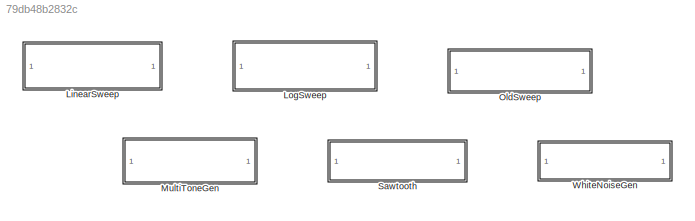
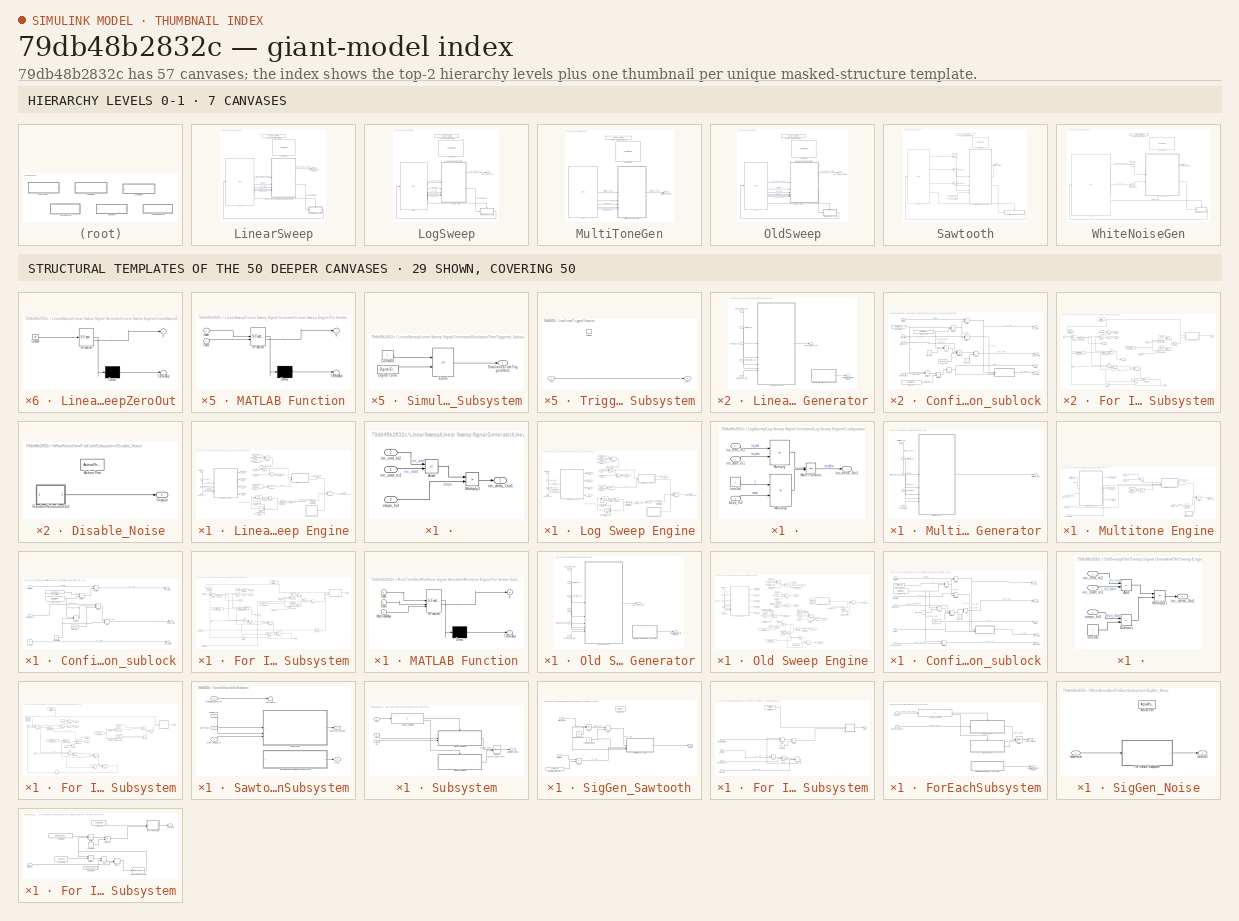
[diagram: thumbnail index - top-2 hierarchy levels (7 canvases) + 29 structural-template representatives of the remaining 50 canvases]
MODEL slx_79db48b2832c
KIND library
CONFIG AbsTol = auto
CONFIG EnableMultiTasking = off
CONFIG FixedStep = auto
CONFIG MaxStep = auto
CONFIG MinStep = auto
CONFIG RelTol = 1e-3
CONFIG SampleTimeConstraint = Unconstrained
CONFIG SolverName = VariableStepAuto
CONFIG StartTime = 0.0
CONFIG StopTime = 10.0
BLOCK [SubSystem] LinearSweep
BLOCK [Reference] LinearSweep/FeaturePath  REF=FeaturePath/FeaturePath
  SourceBlock = FeaturePath/FeaturePath
  SourceProductName = Bose Talaria
  SourceType = Talaria Feature Path
BLOCK [Reference] LinearSweep/HandyDefaultConfigFile  REF=HandyTextFile/HandyTextFile
  SourceBlock = HandyTextFile/HandyTextFile
  SourceProductName = Bose Talaria
  SourceType = Talaria Handy Text File
BLOCK [SubSystem] LinearSweep/Linear Sweep Signal Generator
BLOCK [SubSystem] LinearSweep/Linear Sweep Signal Generator/Linear Sweep Engine
  TreatAsAtomicUnit = on
BLOCK [Sum] LinearSweep/Linear Sweep Signal Generator/Linear Sweep Engine/Add
  IconShape = rectangular
BLOCK [Reference] LinearSweep/Linear Sweep Signal Generator/Linear Sweep Engine/Compare To Constant  REF=simulink/Logic and Bit
Operations/Compare
To Constant
  SourceBlock = simulink/Logic and Bit\nOperations/Compare\nTo Constant
  SourceType = Compare To Constant
BLOCK [Reference] LinearSweep/Linear Sweep Signal Generator/Linear Sweep Engine/Compare To Constant1  REF=simulink/Logic and Bit
Operations/Compare
To Constant
  NameLocation = top
  SourceBlock = simulink/Logic and Bit\nOperations/Compare\nTo Constant
  SourceType = Compare To Constant
BLOCK [SubSystem] LinearSweep/Linear Sweep Signal Generator/Linear Sweep Engine/Configuration_sublock
BLOCK [SubSystem] LinearSweep/Linear Sweep Signal Generator/Linear Sweep Engine/Configuration_sublock/ 
  TreatAsAtomicUnit = on
BLOCK [Sum] LinearSweep/Linear Sweep Signal Generator/Linear Sweep Engine/Configuration_sublock/ /Add
  IconShape = rectangular
  Inputs = +-
BLOCK [Product] LinearSweep/Linear Sweep Signal Generator/Linear Sweep Engine/Configuration_sublock/ /Multiply1
  Inputs = */
BLOCK [Outport] LinearSweep/Linear Sweep Signal Generator/Linear Sweep Engine/Configuration_sublock/ /inc_delta_Out1
  VectorParamsAs1DForOutWhenUnconnected = off
BLOCK [Inport] LinearSweep/Linear Sweep Signal Generator/Linear Sweep Engine/Configuration_sublock/ /inc_end_In2
  Port = 2
BLOCK [Inport] LinearSweep/Linear Sweep Signal Generator/Linear Sweep Engine/Configuration_sublock/ /inc_start_In1
BLOCK [Inport] LinearSweep/Linear Sweep Signal Generator/Linear Sweep Engine/Configuration_sublock/ /steps_In3
  Port = 3
BLOCK [Sum] LinearSweep/Linear Sweep Signal Generator/Linear Sweep Engine/Configuration_sublock/Add
  IconShape = rectangular
BLOCK [Sum] LinearSweep/Linear Sweep Signal Generator/Linear Sweep Engine/Configuration_sublock/Add1
  IconShape = rectangular
  Inputs = +-
BLOCK [Constant] LinearSweep/Linear Sweep Signal Generator/Linear Sweep Engine/Configuration_sublock/Fs_value
  OutDataTypeStr = single
  Value = Config.FsHz
BLOCK [Product] LinearSweep/Linear Sweep Signal Generator/Linear Sweep Engine/Configuration_sublock/Multiply
  Inputs = */
BLOCK [Product] LinearSweep/Linear Sweep Signal Generator/Linear Sweep Engine/Configuration_sublock/Multiply1
  Inputs = */
BLOCK [Product] LinearSweep/Linear Sweep Signal Generator/Linear Sweep Engine/Configuration_sublock/Multiply2
  Inputs = ***
BLOCK [Product] LinearSweep/Linear Sweep Signal Generator/Linear Sweep Engine/Configuration_sublock/Multiply4
  Inputs = */
BLOCK [Product] LinearSweep/Linear Sweep Signal Generator/Linear Sweep Engine/Configuration_sublock/Multiply5
  Inputs = **
BLOCK [Product] LinearSweep/Linear Sweep Signal Generator/Linear Sweep Engine/Configuration_sublock/Multiply6
  Inputs = */
BLOCK [Rounding] LinearSweep/Linear Sweep Signal Generator/Linear Sweep Engine/Configuration_sublock/Round
  Operator = round
BLOCK [Inport] LinearSweep/Linear Sweep Signal Generator/Linear Sweep Engine/Configuration_sublock/end_freq
  Port = 2
BLOCK [Constant] LinearSweep/Linear Sweep Signal Generator/Linear Sweep Engine/Configuration_sublock/framesize
  OutDataTypeStr = uint32
  Value = Config.FrameSizeSamples
  VectorParams1D = off
BLOCK [Outport] LinearSweep/Linear Sweep Signal Generator/Linear Sweep Engine/Configuration_sublock/inc_delta
  Port = 4
  VectorParamsAs1DForOutWhenUnconnected = off
BLOCK [Outport] LinearSweep/Linear Sweep Signal Generator/Linear Sweep Engine/Configuration_sublock/inc_start
  VectorParamsAs1DForOutWhenUnconnected = off
BLOCK [Outport] LinearSweep/Linear Sweep Signal Generator/Linear Sweep Engine/Configuration_sublock/index_start
  Port = 3
  VectorParamsAs1DForOutWhenUnconnected = off
BLOCK [Constant] LinearSweep/Linear Sweep Signal Generator/Linear Sweep Engine/Configuration_sublock/pi
  OutDataTypeStr = single
  Value = 1/(2*pi)
  VectorParams1D = off
BLOCK [Inport] LinearSweep/Linear Sweep Signal Generator/Linear Sweep Engine/Configuration_sublock/start_freq
BLOCK [Inport] LinearSweep/Linear Sweep Signal Generator/Linear Sweep Engine/Configuration_sublock/start_phase
  Port = 3
BLOCK [Outport] LinearSweep/Linear Sweep Signal Generator/Linear Sweep Engine/Configuration_sublock/steps
  Port = 2
  VectorParamsAs1DForOutWhenUnconnected = off
BLOCK [Inport] LinearSweep/Linear Sweep Signal Generator/Linear Sweep Engine/Configuration_sublock/sweep_time 
  Port = 4
BLOCK [Constant] LinearSweep/Linear Sweep Signal Generator/Linear Sweep Engine/Configuration_sublock/tableLength
  OutDataTypeStr = single
  Value = Config.SineTableLength
  VectorParams1D = off
BLOCK [Constant] LinearSweep/Linear Sweep Signal Generator/Linear Sweep Engine/Configuration_sublock/two_val
  OutDataTypeStr = uint32
  VectorParams1D = off
BLOCK [Constant] LinearSweep/Linear Sweep Signal Generator/Linear Sweep Engine/Configuration_sublock/zero_Val
  OutDataTypeStr = single
  VectorParams1D = off
BLOCK [Constant] LinearSweep/Linear Sweep Signal Generator/Linear Sweep Engine/Constant1
  OutDataTypeStr = single
BLOCK [Delay] LinearSweep/Linear Sweep Signal Generator/Linear Sweep Engine/Delay
  DelayLength = 1
  InitialConditionSource = Input port
  InputPortMap = u0,p4
BLOCK [Delay] LinearSweep/Linear Sweep Signal Generator/Linear Sweep Engine/Delay1
  DelayLength = 1
  InitialConditionSource = Input port
  InputPortMap = u0,p4
BLOCK [Delay] LinearSweep/Linear Sweep Signal Generator/Linear Sweep Engine/Delay2
  DelayLength = 1
  InitialConditionSource = Input port
  InputPortMap = u0,p4
BLOCK [SubSystem] LinearSweep/Linear Sweep Signal Generator/Linear Sweep Engine/For Iterator Subsystem
  TreatAsAtomicUnit = on
BLOCK [Sum] LinearSweep/Linear Sweep Signal Generator/Linear Sweep Engine/For Iterator Subsystem/Add
  IconShape = rectangular
BLOCK [Sum] LinearSweep/Linear Sweep Signal Generator/Linear Sweep Engine/For Iterator Subsystem/Add2
  IconShape = rectangular
BLOCK [Sum] LinearSweep/Linear Sweep Signal Generator/Linear Sweep Engine/For Iterator Subsystem/Add3
  IconShape = rectangular
BLOCK [Reference] LinearSweep/Linear Sweep Signal Generator/Linear Sweep Engine/For Iterator Subsystem/Bitwise AND  REF=simulink/Logic and Bit
Operations/Bitwise
Operator
  SourceBlock = simulink/Logic and Bit\nOperations/Bitwise\nOperator
  SourceType = Bitwise Operator
BLOCK [Reference] LinearSweep/Linear Sweep Signal Generator/Linear Sweep Engine/For Iterator Subsystem/Compare To Constant  REF=simulink/Logic and Bit
Operations/Compare
To Constant
  SourceBlock = simulink/Logic and Bit\nOperations/Compare\nTo Constant
  SourceType = Compare To Constant
BLOCK [Constant] LinearSweep/Linear Sweep Signal Generator/Linear Sweep Engine/For Iterator Subsystem/Constant1
  OutDataTypeStr = single
BLOCK [DataTypeConversion] LinearSweep/Linear Sweep Signal Generator/Linear Sweep Engine/For Iterator Subsystem/Data Type Conversion
  OutDataTypeStr = uint32
  RndMeth = Floor
  SaturateOnIntegerOverflow = off
BLOCK [DataTypeConversion] LinearSweep/Linear Sweep Signal Generator/Linear Sweep Engine/For Iterator Subsystem/Data Type Conversion1
  OutDataTypeStr = uint32
  RndMeth = Floor
  SaturateOnIntegerOverflow = off
BLOCK [Delay] LinearSweep/Linear Sweep Signal Generator/Linear Sweep Engine/For Iterator Subsystem/Delay
  DelayLength = 0
  InputPortMap = u0
BLOCK [ForIterator] LinearSweep/Linear Sweep Signal Generator/Linear Sweep Engine/For Iterator Subsystem/For Iterator
  IterationLimit = Config.FrameSizeSamples
  ResetStates = reset
BLOCK [From] LinearSweep/Linear Sweep Signal Generator/Linear Sweep Engine/For Iterator Subsystem/From
  GotoTag = w0
BLOCK [From] LinearSweep/Linear Sweep Signal Generator/Linear Sweep Engine/For Iterator Subsystem/From1
  GotoTag = w1
BLOCK [From] LinearSweep/Linear Sweep Signal Generator/Linear Sweep Engine/For Iterator Subsystem/From2
  GotoTag = m0
BLOCK [From] LinearSweep/Linear Sweep Signal Generator/Linear Sweep Engine/For Iterator Subsystem/From4
  GotoTag = m1
BLOCK [Goto] LinearSweep/Linear Sweep Signal Generator/Linear Sweep Engine/For Iterator Subsystem/Goto
  GotoTag = w0
BLOCK [Goto] LinearSweep/Linear Sweep Signal Generator/Linear Sweep Engine/For Iterator Subsystem/Goto1
  GotoTag = w1
BLOCK [Goto] LinearSweep/Linear Sweep Signal Generator/Linear Sweep Engine/For Iterator Subsystem/Goto2
  GotoTag = m0
BLOCK [Goto] LinearSweep/Linear Sweep Signal Generator/Linear Sweep Engine/For Iterator Subsystem/Goto3
  GotoTag = m1
BLOCK [Inport] LinearSweep/Linear Sweep Signal Generator/Linear Sweep Engine/For Iterator Subsystem/Inc 
BLOCK [Selector] LinearSweep/Linear Sweep Signal Generator/Linear Sweep Engine/For Iterator Subsystem/LookUpTable
  IndexMode = Zero-based
  IndexOptions = Index vector (port)
  Indices = [1 3]
  InputPortWidth = Config.SineTableLength
  OutputSizes = 1
BLOCK [Selector] LinearSweep/Linear Sweep Signal Generator/Linear Sweep Engine/For Iterator Subsystem/LookUpTable1
  IndexMode = Zero-based
  IndexOptions = Index vector (port)
  Indices = [1 3]
  InputPortWidth = Config.SineTableLength
  OutputSizes = 1
BLOCK [SubSystem] LinearSweep/Linear Sweep Signal Generator/Linear Sweep Engine/For Iterator Subsystem/MATLAB Function
  ErrorFcn = Stateflow.Translate.translate
  PermitHierarchicalResolution = ExplicitOnly
  SFBlockType = MATLAB Function
  TreatAsAtomicUnit = on
BLOCK [Demux] LinearSweep/Linear Sweep Signal Generator/Linear Sweep Engine/For Iterator Subsystem/MATLAB Function/ Demux 
  Outputs = 1
BLOCK [S-Function] LinearSweep/Linear Sweep Signal Generator/Linear Sweep Engine/For Iterator Subsystem/MATLAB Function/ SFunction 
  EnableBusSupport = off
  FunctionName = sf_sfun
  Parameters = Nch,frameSize_samples
  PortCounts = [2 2]
  SFcnIsStateOwnerBlock = off
  SFunctionDeploymentMode = off
  Tag = Stateflow S-Function 6
BLOCK [Terminator] LinearSweep/Linear Sweep Signal Generator/Linear Sweep Engine/For Iterator Subsystem/MATLAB Function/ Terminator 
BLOCK [Inport] LinearSweep/Linear Sweep Signal Generator/Linear Sweep Engine/For Iterator Subsystem/MATLAB Function/Data
  Port = 2
BLOCK [Inport] LinearSweep/Linear Sweep Signal Generator/Linear Sweep Engine/For Iterator Subsystem/MATLAB Function/Index
BLOCK [Outport] LinearSweep/Linear Sweep Signal Generator/Linear Sweep Engine/For Iterator Subsystem/MATLAB Function/y
  VectorParamsAs1DForOutWhenUnconnected = off
BLOCK [Memory] LinearSweep/Linear Sweep Signal Generator/Linear Sweep Engine/For Iterator Subsystem/Memory
  InheritSampleTime = on
BLOCK [Outport] LinearSweep/Linear Sweep Signal Generator/Linear Sweep Engine/For Iterator Subsystem/Out1
  Port = 2
  VectorParamsAs1DForOutWhenUnconnected = off
BLOCK [Product] LinearSweep/Linear Sweep Signal Generator/Linear Sweep Engine/For Iterator Subsystem/Product
BLOCK [Product] LinearSweep/Linear Sweep Signal Generator/Linear Sweep Engine/For Iterator Subsystem/Product1
BLOCK [Sum] LinearSweep/Linear Sweep Signal Generator/Linear Sweep Engine/For Iterator Subsystem/Subtract
  IconShape = rectangular
  Inputs = +-
  OutDataTypeStr = single
BLOCK [Sum] LinearSweep/Linear Sweep Signal Generator/Linear Sweep Engine/For Iterator Subsystem/Subtract1
  IconShape = rectangular
  Inputs = +-
  OutDataTypeStr = single
BLOCK [Sum] LinearSweep/Linear Sweep Signal Generator/Linear Sweep Engine/For Iterator Subsystem/Subtract2
  IconShape = rectangular
  Inputs = +-
BLOCK [Switch] LinearSweep/Linear Sweep Signal Generator/Linear Sweep Engine/For Iterator Subsystem/Switch
  Criteria = u2 ~= 0
  InputSameDT = off
  SaturateOnIntegerOverflow = off
BLOCK [Switch] LinearSweep/Linear Sweep Signal Generator/Linear Sweep Engine/For Iterator Subsystem/Switch1
  InputSameDT = off
  SaturateOnIntegerOverflow = off
BLOCK [Switch] LinearSweep/Linear Sweep Signal Generator/Linear Sweep Engine/For Iterator Subsystem/Switch2
  InputSameDT = off
  SaturateOnIntegerOverflow = off
BLOCK [Constant] LinearSweep/Linear Sweep Signal Generator/Linear Sweep Engine/For Iterator Subsystem/TableLength
  OutDataTypeStr = single
  Value = Config.SineTableLength
  VectorParams1D = off
BLOCK [Inport] LinearSweep/Linear Sweep Signal Generator/Linear Sweep Engine/For Iterator Subsystem/index
  Port = 2
BLOCK [Outport] LinearSweep/Linear Sweep Signal Generator/Linear Sweep Engine/For Iterator Subsystem/m
  VectorParamsAs1DForOutWhenUnconnected = off
BLOCK [Constant] LinearSweep/Linear Sweep Signal Generator/Linear Sweep Engine/For Iterator Subsystem/sineTable
  OutDataTypeStr = single
  Value = Config.SineTable
  VectorParams1D = off
BLOCK [From] LinearSweep/Linear Sweep Signal Generator/Linear Sweep Engine/From
  GotoTag = Delta
BLOCK [From] LinearSweep/Linear Sweep Signal Generator/Linear Sweep Engine/From1
  GotoTag = Index_init
BLOCK [From] LinearSweep/Linear Sweep Signal Generator/Linear Sweep Engine/From2
  GotoTag = Step_Init
BLOCK [From] LinearSweep/Linear Sweep Signal Generator/Linear Sweep Engine/From3
  GotoTag = If_Step_Gt_zero
BLOCK [From] LinearSweep/Linear Sweep Signal Generator/Linear Sweep Engine/From4
  GotoTag = m
BLOCK [From] LinearSweep/Linear Sweep Signal Generator/Linear Sweep Engine/From5
  GotoTag = If_Step_Gt_zero
BLOCK [From] LinearSweep/Linear Sweep Signal Generator/Linear Sweep Engine/From6
  GotoTag = Inc_add_delta
BLOCK [From] LinearSweep/Linear Sweep Signal Generator/Linear Sweep Engine/From7
  GotoTag = Inc_init
BLOCK [From] LinearSweep/Linear Sweep Signal Generator/Linear Sweep Engine/From8
  GotoTag = Inc_init
BLOCK [Goto] LinearSweep/Linear Sweep Signal Generator/Linear Sweep Engine/Goto
  GotoTag = Delta
BLOCK [Goto] LinearSweep/Linear Sweep Signal Generator/Linear Sweep Engine/Goto1
  GotoTag = Index_init
BLOCK [Goto] LinearSweep/Linear Sweep Signal Generator/Linear Sweep Engine/Goto2
  GotoTag = Step_Init
BLOCK [Goto] LinearSweep/Linear Sweep Signal Generator/Linear Sweep Engine/Goto3
  GotoTag = If_Step_Gt_zero
BLOCK [Goto] LinearSweep/Linear Sweep Signal Generator/Linear Sweep Engine/Goto4
  GotoTag = m
BLOCK [Goto] LinearSweep/Linear Sweep Signal Generator/Linear Sweep Engine/Goto5
  GotoTag = Inc_add_delta
BLOCK [Goto] LinearSweep/Linear Sweep Signal Generator/Linear Sweep Engine/Goto6
  GotoTag = Inc_init
BLOCK [SubSystem] LinearSweep/Linear Sweep Signal Generator/Linear Sweep Engine/LinearSweepZeroOut
  ErrorFcn = Stateflow.Translate.translate
  PermitHierarchicalResolution = ExplicitOnly
  SFBlockType = MATLAB Function
  TreatAsAtomicUnit = on
BLOCK [Demux] LinearSweep/Linear Sweep Signal Generator/Linear Sweep Engine/LinearSweepZeroOut/ Demux 
  Outputs = 1
BLOCK [Ground] LinearSweep/Linear Sweep Signal Generator/Linear Sweep Engine/LinearSweepZeroOut/ Ground 
BLOCK [S-Function] LinearSweep/Linear Sweep Signal Generator/Linear Sweep Engine/LinearSweepZeroOut/ SFunction 
  EnableBusSupport = off
  FunctionName = sf_sfun
  Parameters = Nch,frameSize_samples
  PortCounts = [1 2]
  SFcnIsStateOwnerBlock = off
  SFunctionDeploymentMode = off
  Tag = Stateflow S-Function 4
BLOCK [Terminator] LinearSweep/Linear Sweep Signal Generator/Linear Sweep Engine/LinearSweepZeroOut/ Terminator 
BLOCK [Outport] LinearSweep/Linear Sweep Signal Generator/Linear Sweep Engine/LinearSweepZeroOut/y
BLOCK [Outport] LinearSweep/Linear Sweep Signal Generator/Linear Sweep Engine/Linear_Sweep_Out
  VectorParamsAs1DForOutWhenUnconnected = off
BLOCK [Sum] LinearSweep/Linear Sweep Signal Generator/Linear Sweep Engine/Subtract
  IconShape = rectangular
  Inputs = +-
BLOCK [Switch] LinearSweep/Linear Sweep Signal Generator/Linear Sweep Engine/Switch
  Criteria = u2 ~= 0
  InputSameDT = off
  SaturateOnIntegerOverflow = off
BLOCK [Switch] LinearSweep/Linear Sweep Signal Generator/Linear Sweep Engine/Switch1
  Criteria = u2 ~= 0
  InputSameDT = off
  NameLocation = top
  SaturateOnIntegerOverflow = off
BLOCK [Switch] LinearSweep/Linear Sweep Signal Generator/Linear Sweep Engine/Switch2
  Criteria = u2 ~= 0
  InputSameDT = off
  SaturateOnIntegerOverflow = off
BLOCK [Inport] LinearSweep/Linear Sweep Signal Generator/Linear Sweep Engine/end_freq_In
  Port = 3
BLOCK [Inport] LinearSweep/Linear Sweep Signal Generator/Linear Sweep Engine/linear_sweep_ON
BLOCK [Inport] LinearSweep/Linear Sweep Signal Generator/Linear Sweep Engine/start_freq_In
  Port = 2
BLOCK [Inport] LinearSweep/Linear Sweep Signal Generator/Linear Sweep Engine/start_phase_In
  Port = 5
BLOCK [Inport] LinearSweep/Linear Sweep Signal Generator/Linear Sweep Engine/sweep_time_In
  Port = 4
BLOCK [Outport] LinearSweep/Linear Sweep Signal Generator/Linear_Sweep_Out
  VectorParamsAs1DForOutWhenUnconnected = off
BLOCK [SubSystem] LinearSweep/Linear Sweep Signal Generator/SimulationTimeTriggered_Subsystem
BLOCK [Constant] LinearSweep/Linear Sweep Signal Generator/SimulationTimeTriggered_Subsystem/Constant
BLOCK [DigitalClock] LinearSweep/Linear Sweep Signal Generator/SimulationTimeTriggered_Subsystem/Digital Clock
  SampleTime = -1
BLOCK [RelationalOperator] LinearSweep/Linear Sweep Signal Generator/SimulationTimeTriggered_Subsystem/Equal
  InputSameDT = off
  Operator = ==
  OutDataTypeStr = boolean
  RndMeth = Simplest
BLOCK [Outport] LinearSweep/Linear Sweep Signal Generator/SimulationTimeTriggered_Subsystem/SimuliationTimeTriggerdOut1
  VectorParamsAs1DForOutWhenUnconnected = off
BLOCK [Outport] LinearSweep/Linear Sweep Signal Generator/SimuliationTimeTriggerdOut1
  Port = 2
  VectorParamsAs1DForOutWhenUnconnected = off
BLOCK [Inport] LinearSweep/Linear Sweep Signal Generator/end_freq_Hz
  Port = 3
BLOCK [Inport] LinearSweep/Linear Sweep Signal Generator/linear_sweep_ON
BLOCK [Inport] LinearSweep/Linear Sweep Signal Generator/start_freq_Hz
  Port = 2
BLOCK [Inport] LinearSweep/Linear Sweep Signal Generator/start_phase_rad
  Port = 5
BLOCK [Inport] LinearSweep/Linear Sweep Signal Generator/sweep_time_sec
  Port = 4
BLOCK [Reference] LinearSweep/RTC  REF=RTC/RTC
  Description = It is LinearSignal generator block
  SourceBlock = RTC/RTC
  SourceProductName = Bose Talaria
  SourceType = Talaria RTC Receive
BLOCK [SubSystem] LinearSweep/Triggered Subsystem
  TreatAsAtomicUnit = on
BLOCK [Inport] LinearSweep/Triggered Subsystem/In1
BLOCK [Outport] LinearSweep/Triggered Subsystem/Out1
  VectorParamsAs1DForOutWhenUnconnected = off
BLOCK [TriggerPort] LinearSweep/Triggered Subsystem/Trigger
  StatesWhenEnabling = held
  TriggerType = function-call
  VariantControl = Variant
BLOCK [Outport] LinearSweep/linear_sweep_output
  VectorParamsAs1DForOutWhenUnconnected = off
BLOCK [SubSystem] LogSweep
BLOCK [Reference] LogSweep/FeaturePath  REF=FeaturePath/FeaturePath
  SourceBlock = FeaturePath/FeaturePath
  SourceProductName = Bose Talaria
  SourceType = Talaria Feature Path
BLOCK [Reference] LogSweep/HandyDefaultConfigFile  REF=HandyTextFile/HandyTextFile
  SourceBlock = HandyTextFile/HandyTextFile
  SourceProductName = Bose Talaria
  SourceType = Talaria Handy Text File
BLOCK [SubSystem] LogSweep/Log Sweep Signal Generator
BLOCK [SubSystem] LogSweep/Log Sweep Signal Generator/Log Sweep Engine
  TreatAsAtomicUnit = on
BLOCK [Reference] LogSweep/Log Sweep Signal Generator/Log Sweep Engine/Compare To Constant  REF=simulink/Logic and Bit
Operations/Compare
To Constant
  SourceBlock = simulink/Logic and Bit\nOperations/Compare\nTo Constant
  SourceType = Compare To Constant
BLOCK [Reference] LogSweep/Log Sweep Signal Generator/Log Sweep Engine/Compare To Constant1  REF=simulink/Logic and Bit
Operations/Compare
To Constant
  NameLocation = top
  SourceBlock = simulink/Logic and Bit\nOperations/Compare\nTo Constant
  SourceType = Compare To Constant
BLOCK [SubSystem] LogSweep/Log Sweep Signal Generator/Log Sweep Engine/Configuration_sublock
BLOCK [SubSystem] LogSweep/Log Sweep Signal Generator/Log Sweep Engine/Configuration_sublock/ 
  AncestorBlock = SignalGenerator/LogSweep/Log Sweep Signal Generator/Log Sweep Engine/Log_Sweep_Subsystem/Configuration_sublock/
  LibrarySourceBlock = SignalGenerator/LogSweep/Log Sweep Signal Generator/Log Sweep Engine/Log_Sweep_Subsystem/Configuration_sublock/
  TreatAsAtomicUnit = on
BLOCK [Math] LogSweep/Log Sweep Signal Generator/Log Sweep Engine/Configuration_sublock/ /Math Function
  Operator = pow
  SignedPower = on
BLOCK [Product] LogSweep/Log Sweep Signal Generator/Log Sweep Engine/Configuration_sublock/ /Multiply
  Inputs = */
BLOCK [Product] LogSweep/Log Sweep Signal Generator/Log Sweep Engine/Configuration_sublock/ /Multiply1
  Inputs = */
BLOCK [Outport] LogSweep/Log Sweep Signal Generator/Log Sweep Engine/Configuration_sublock/ /inc_delta_Out1
  VectorParamsAs1DForOutWhenUnconnected = off
BLOCK [Inport] LogSweep/Log Sweep Signal Generator/Log Sweep Engine/Configuration_sublock/ /inc_end_In2
  Port = 2
BLOCK [Inport] LogSweep/Log Sweep Signal Generator/Log Sweep Engine/Configuration_sublock/ /inc_start_In1
BLOCK [Constant] LogSweep/Log Sweep Signal Generator/Log Sweep Engine/Configuration_sublock/ /oneVal
  OutDataTypeStr = single
BLOCK [Inport] LogSweep/Log Sweep Signal Generator/Log Sweep Engine/Configuration_sublock/ /steps_In3
  Port = 3
BLOCK [Sum] LogSweep/Log Sweep Signal Generator/Log Sweep Engine/Configuration_sublock/Add
  IconShape = rectangular
BLOCK [Sum] LogSweep/Log Sweep Signal Generator/Log Sweep Engine/Configuration_sublock/Add1
  IconShape = rectangular
  Inputs = +-
BLOCK [Constant] LogSweep/Log Sweep Signal Generator/Log Sweep Engine/Configuration_sublock/Fs_value
  OutDataTypeStr = single
  Value = Config.FsHz
BLOCK [Product] LogSweep/Log Sweep Signal Generator/Log Sweep Engine/Configuration_sublock/Multiply
  Inputs = */
BLOCK [Product] LogSweep/Log Sweep Signal Generator/Log Sweep Engine/Configuration_sublock/Multiply1
  Inputs = */
BLOCK [Product] LogSweep/Log Sweep Signal Generator/Log Sweep Engine/Configuration_sublock/Multiply2
  Inputs = ***
BLOCK [Product] LogSweep/Log Sweep Signal Generator/Log Sweep Engine/Configuration_sublock/Multiply4
  Inputs = */
BLOCK [Product] LogSweep/Log Sweep Signal Generator/Log Sweep Engine/Configuration_sublock/Multiply5
  Inputs = **
BLOCK [Product] LogSweep/Log Sweep Signal Generator/Log Sweep Engine/Configuration_sublock/Multiply6
  Inputs = */
BLOCK [Rounding] LogSweep/Log Sweep Signal Generator/Log Sweep Engine/Configuration_sublock/Round
  Operator = round
BLOCK [Inport] LogSweep/Log Sweep Signal Generator/Log Sweep Engine/Configuration_sublock/end_freq
  Port = 2
BLOCK [Constant] LogSweep/Log Sweep Signal Generator/Log Sweep Engine/Configuration_sublock/framesize
  OutDataTypeStr = uint32
  Value = Config.FrameSizeSamples
  VectorParams1D = off
BLOCK [Outport] LogSweep/Log Sweep Signal Generator/Log Sweep Engine/Configuration_sublock/inc_delta
  Port = 4
  VectorParamsAs1DForOutWhenUnconnected = off
BLOCK [Outport] LogSweep/Log Sweep Signal Generator/Log Sweep Engine/Configuration_sublock/inc_start
  VectorParamsAs1DForOutWhenUnconnected = off
BLOCK [Outport] LogSweep/Log Sweep Signal Generator/Log Sweep Engine/Configuration_sublock/index_start
  Port = 3
  VectorParamsAs1DForOutWhenUnconnected = off
BLOCK [Constant] LogSweep/Log Sweep Signal Generator/Log Sweep Engine/Configuration_sublock/pi
  OutDataTypeStr = single
  Value = 1/(2*pi)
  VectorParams1D = off
BLOCK [Inport] LogSweep/Log Sweep Signal Generator/Log Sweep Engine/Configuration_sublock/start_freq
BLOCK [Inport] LogSweep/Log Sweep Signal Generator/Log Sweep Engine/Configuration_sublock/start_phase
  Port = 3
BLOCK [Outport] LogSweep/Log Sweep Signal Generator/Log Sweep Engine/Configuration_sublock/steps
  Port = 2
  VectorParamsAs1DForOutWhenUnconnected = off
BLOCK [Inport] LogSweep/Log Sweep Signal Generator/Log Sweep Engine/Configuration_sublock/sweep_time 
  Port = 4
BLOCK [Constant] LogSweep/Log Sweep Signal Generator/Log Sweep Engine/Configuration_sublock/tableLength
  OutDataTypeStr = single
  Value = Config.SineTableLength
  VectorParams1D = off
BLOCK [Constant] LogSweep/Log Sweep Signal Generator/Log Sweep Engine/Configuration_sublock/two_val
  OutDataTypeStr = uint32
  VectorParams1D = off
BLOCK [Constant] LogSweep/Log Sweep Signal Generator/Log Sweep Engine/Configuration_sublock/zero_Val
  OutDataTypeStr = single
  VectorParams1D = off
BLOCK [Constant] LogSweep/Log Sweep Signal Generator/Log Sweep Engine/Constant1
  OutDataTypeStr = single
BLOCK [Delay] LogSweep/Log Sweep Signal Generator/Log Sweep Engine/Delay
  DelayLength = 1
  InitialConditionSource = Input port
  InputPortMap = u0,p4
BLOCK [Delay] LogSweep/Log Sweep Signal Generator/Log Sweep Engine/Delay1
  DelayLength = 1
  InitialConditionSource = Input port
  InputPortMap = u0,p4
BLOCK [Delay] LogSweep/Log Sweep Signal Generator/Log Sweep Engine/Delay2
  DelayLength = 1
  InitialConditionSource = Input port
  InputPortMap = u0,p4
BLOCK [SubSystem] LogSweep/Log Sweep Signal Generator/Log Sweep Engine/For Iterator Subsystem
  TreatAsAtomicUnit = on
BLOCK [Sum] LogSweep/Log Sweep Signal Generator/Log Sweep Engine/For Iterator Subsystem/Add
  IconShape = rectangular
BLOCK [Sum] LogSweep/Log Sweep Signal Generator/Log Sweep Engine/For Iterator Subsystem/Add2
  IconShape = rectangular
BLOCK [Sum] LogSweep/Log Sweep Signal Generator/Log Sweep Engine/For Iterator Subsystem/Add3
  IconShape = rectangular
BLOCK [Reference] LogSweep/Log Sweep Signal Generator/Log Sweep Engine/For Iterator Subsystem/Bitwise AND  REF=simulink/Logic and Bit
Operations/Bitwise
Operator
  SourceBlock = simulink/Logic and Bit\nOperations/Bitwise\nOperator
  SourceType = Bitwise Operator
BLOCK [Reference] LogSweep/Log Sweep Signal Generator/Log Sweep Engine/For Iterator Subsystem/Compare To Constant  REF=simulink/Logic and Bit
Operations/Compare
To Constant
  SourceBlock = simulink/Logic and Bit\nOperations/Compare\nTo Constant
  SourceType = Compare To Constant
BLOCK [Constant] LogSweep/Log Sweep Signal Generator/Log Sweep Engine/For Iterator Subsystem/Constant1
  OutDataTypeStr = single
BLOCK [DataTypeConversion] LogSweep/Log Sweep Signal Generator/Log Sweep Engine/For Iterator Subsystem/Data Type Conversion
  OutDataTypeStr = uint32
  RndMeth = Floor
  SaturateOnIntegerOverflow = off
BLOCK [DataTypeConversion] LogSweep/Log Sweep Signal Generator/Log Sweep Engine/For Iterator Subsystem/Data Type Conversion1
  OutDataTypeStr = uint32
  RndMeth = Floor
  SaturateOnIntegerOverflow = off
BLOCK [Delay] LogSweep/Log Sweep Signal Generator/Log Sweep Engine/For Iterator Subsystem/Delay
  DelayLength = 0
  InputPortMap = u0
BLOCK [ForIterator] LogSweep/Log Sweep Signal Generator/Log Sweep Engine/For Iterator Subsystem/For Iterator
  IterationLimit = Config.FrameSizeSamples
  ResetStates = reset
BLOCK [From] LogSweep/Log Sweep Signal Generator/Log Sweep Engine/For Iterator Subsystem/From
  GotoTag = w0
BLOCK [From] LogSweep/Log Sweep Signal Generator/Log Sweep Engine/For Iterator Subsystem/From1
  GotoTag = w1
BLOCK [From] LogSweep/Log Sweep Signal Generator/Log Sweep Engine/For Iterator Subsystem/From2
  GotoTag = m0
BLOCK [From] LogSweep/Log Sweep Signal Generator/Log Sweep Engine/For Iterator Subsystem/From4
  GotoTag = m1
BLOCK [Goto] LogSweep/Log Sweep Signal Generator/Log Sweep Engine/For Iterator Subsystem/Goto
  GotoTag = w0
BLOCK [Goto] LogSweep/Log Sweep Signal Generator/Log Sweep Engine/For Iterator Subsystem/Goto1
  GotoTag = w1
BLOCK [Goto] LogSweep/Log Sweep Signal Generator/Log Sweep Engine/For Iterator Subsystem/Goto2
  GotoTag = m0
BLOCK [Goto] LogSweep/Log Sweep Signal Generator/Log Sweep Engine/For Iterator Subsystem/Goto3
  GotoTag = m1
BLOCK [Inport] LogSweep/Log Sweep Signal Generator/Log Sweep Engine/For Iterator Subsystem/Inc 
BLOCK [Selector] LogSweep/Log Sweep Signal Generator/Log Sweep Engine/For Iterator Subsystem/LookUpTable
  IndexMode = Zero-based
  IndexOptions = Index vector (port)
  Indices = [1 3]
  InputPortWidth = Config.SineTableLength
  OutputSizes = 1
BLOCK [Selector] LogSweep/Log Sweep Signal Generator/Log Sweep Engine/For Iterator Subsystem/LookUpTable1
  IndexMode = Zero-based
  IndexOptions = Index vector (port)
  Indices = [1 3]
  InputPortWidth = Config.SineTableLength
  OutputSizes = 1
BLOCK [SubSystem] LogSweep/Log Sweep Signal Generator/Log Sweep Engine/For Iterator Subsystem/MATLAB Function
  ErrorFcn = Stateflow.Translate.translate
  PermitHierarchicalResolution = ExplicitOnly
  SFBlockType = MATLAB Function
  TreatAsAtomicUnit = on
BLOCK [Demux] LogSweep/Log Sweep Signal Generator/Log Sweep Engine/For Iterator Subsystem/MATLAB Function/ Demux 
  Outputs = 1
BLOCK [S-Function] LogSweep/Log Sweep Signal Generator/Log Sweep Engine/For Iterator Subsystem/MATLAB Function/ SFunction 
  EnableBusSupport = off
  FunctionName = sf_sfun
  Parameters = Nch,frameSize_samples
  PortCounts = [2 2]
  SFcnIsStateOwnerBlock = off
  SFunctionDeploymentMode = off
  Tag = Stateflow S-Function 1
BLOCK [Terminator] LogSweep/Log Sweep Signal Generator/Log Sweep Engine/For Iterator Subsystem/MATLAB Function/ Terminator 
BLOCK [Inport] LogSweep/Log Sweep Signal Generator/Log Sweep Engine/For Iterator Subsystem/MATLAB Function/Data
  Port = 2
BLOCK [Inport] LogSweep/Log Sweep Signal Generator/Log Sweep Engine/For Iterator Subsystem/MATLAB Function/Index
BLOCK [Outport] LogSweep/Log Sweep Signal Generator/Log Sweep Engine/For Iterator Subsystem/MATLAB Function/y
  VectorParamsAs1DForOutWhenUnconnected = off
BLOCK [Memory] LogSweep/Log Sweep Signal Generator/Log Sweep Engine/For Iterator Subsystem/Memory
  InheritSampleTime = on
BLOCK [Outport] LogSweep/Log Sweep Signal Generator/Log Sweep Engine/For Iterator Subsystem/Out1
  Port = 2
  VectorParamsAs1DForOutWhenUnconnected = off
BLOCK [Product] LogSweep/Log Sweep Signal Generator/Log Sweep Engine/For Iterator Subsystem/Product
BLOCK [Product] LogSweep/Log Sweep Signal Generator/Log Sweep Engine/For Iterator Subsystem/Product1
BLOCK [Sum] LogSweep/Log Sweep Signal Generator/Log Sweep Engine/For Iterator Subsystem/Subtract
  IconShape = rectangular
  Inputs = +-
  OutDataTypeStr = single
BLOCK [Sum] LogSweep/Log Sweep Signal Generator/Log Sweep Engine/For Iterator Subsystem/Subtract1
  IconShape = rectangular
  Inputs = +-
  OutDataTypeStr = single
BLOCK [Sum] LogSweep/Log Sweep Signal Generator/Log Sweep Engine/For Iterator Subsystem/Subtract2
  IconShape = rectangular
  Inputs = +-
BLOCK [Switch] LogSweep/Log Sweep Signal Generator/Log Sweep Engine/For Iterator Subsystem/Switch
  Criteria = u2 ~= 0
  InputSameDT = off
  SaturateOnIntegerOverflow = off
BLOCK [Switch] LogSweep/Log Sweep Signal Generator/Log Sweep Engine/For Iterator Subsystem/Switch1
  InputSameDT = off
  SaturateOnIntegerOverflow = off
BLOCK [Switch] LogSweep/Log Sweep Signal Generator/Log Sweep Engine/For Iterator Subsystem/Switch2
  InputSameDT = off
  SaturateOnIntegerOverflow = off
BLOCK [Constant] LogSweep/Log Sweep Signal Generator/Log Sweep Engine/For Iterator Subsystem/TableLength
  OutDataTypeStr = single
  Value = Config.SineTableLength
  VectorParams1D = off
BLOCK [Inport] LogSweep/Log Sweep Signal Generator/Log Sweep Engine/For Iterator Subsystem/index
  Port = 2
BLOCK [Outport] LogSweep/Log Sweep Signal Generator/Log Sweep Engine/For Iterator Subsystem/m
  VectorParamsAs1DForOutWhenUnconnected = off
BLOCK [Constant] LogSweep/Log Sweep Signal Generator/Log Sweep Engine/For Iterator Subsystem/sineTable
  OutDataTypeStr = single
  Value = Config.SineTable
  VectorParams1D = off
BLOCK [From] LogSweep/Log Sweep Signal Generator/Log Sweep Engine/From
  GotoTag = Delta
BLOCK [From] LogSweep/Log Sweep Signal Generator/Log Sweep Engine/From1
  GotoTag = Index_init
BLOCK [From] LogSweep/Log Sweep Signal Generator/Log Sweep Engine/From2
  GotoTag = Step_Init
BLOCK [From] LogSweep/Log Sweep Signal Generator/Log Sweep Engine/From3
  GotoTag = If_Step_Gt_zero
BLOCK [From] LogSweep/Log Sweep Signal Generator/Log Sweep Engine/From4
  GotoTag = m
BLOCK [From] LogSweep/Log Sweep Signal Generator/Log Sweep Engine/From5
  GotoTag = If_Step_Gt_zero
BLOCK [From] LogSweep/Log Sweep Signal Generator/Log Sweep Engine/From6
  GotoTag = Inc_add_delta
BLOCK [From] LogSweep/Log Sweep Signal Generator/Log Sweep Engine/From7
  GotoTag = Inc_init
BLOCK [From] LogSweep/Log Sweep Signal Generator/Log Sweep Engine/From8
  GotoTag = Inc_init
BLOCK [Goto] LogSweep/Log Sweep Signal Generator/Log Sweep Engine/Goto
  GotoTag = Delta
BLOCK [Goto] LogSweep/Log Sweep Signal Generator/Log Sweep Engine/Goto1
  GotoTag = Index_init
BLOCK [Goto] LogSweep/Log Sweep Signal Generator/Log Sweep Engine/Goto2
  GotoTag = Step_Init
BLOCK [Goto] LogSweep/Log Sweep Signal Generator/Log Sweep Engine/Goto3
  GotoTag = If_Step_Gt_zero
BLOCK [Goto] LogSweep/Log Sweep Signal Generator/Log Sweep Engine/Goto4
  GotoTag = m
BLOCK [Goto] LogSweep/Log Sweep Signal Generator/Log Sweep Engine/Goto5
  GotoTag = Inc_add_delta
BLOCK [Goto] LogSweep/Log Sweep Signal Generator/Log Sweep Engine/Goto6
  GotoTag = Inc_init
BLOCK [SubSystem] LogSweep/Log Sweep Signal Generator/Log Sweep Engine/LogSweepZeroOut
  ErrorFcn = Stateflow.Translate.translate
  PermitHierarchicalResolution = ExplicitOnly
  SFBlockType = MATLAB Function
  TreatAsAtomicUnit = on
BLOCK [Demux] LogSweep/Log Sweep Signal Generator/Log Sweep Engine/LogSweepZeroOut/ Demux 
  Outputs = 1
BLOCK [Ground] LogSweep/Log Sweep Signal Generator/Log Sweep Engine/LogSweepZeroOut/ Ground 
BLOCK [S-Function] LogSweep/Log Sweep Signal Generator/Log Sweep Engine/LogSweepZeroOut/ SFunction 
  EnableBusSupport = off
  FunctionName = sf_sfun
  Parameters = Nch,frameSize_samples
  PortCounts = [1 2]
  SFcnIsStateOwnerBlock = off
  SFunctionDeploymentMode = off
  Tag = Stateflow S-Function 8
BLOCK [Terminator] LogSweep/Log Sweep Signal Generator/Log Sweep Engine/LogSweepZeroOut/ Terminator 
BLOCK [Outport] LogSweep/Log Sweep Signal Generator/Log Sweep Engine/LogSweepZeroOut/y
BLOCK [Outport] LogSweep/Log Sweep Signal Generator/Log Sweep Engine/Log_Sweep_Out
  VectorParamsAs1DForOutWhenUnconnected = off
BLOCK [Product] LogSweep/Log Sweep Signal Generator/Log Sweep Engine/Product
BLOCK [Sum] LogSweep/Log Sweep Signal Generator/Log Sweep Engine/Subtract
  IconShape = rectangular
  Inputs = +-
BLOCK [Switch] LogSweep/Log Sweep Signal Generator/Log Sweep Engine/Switch
  Criteria = u2 ~= 0
  InputSameDT = off
  SaturateOnIntegerOverflow = off
BLOCK [Switch] LogSweep/Log Sweep Signal Generator/Log Sweep Engine/Switch1
  Criteria = u2 ~= 0
  InputSameDT = off
  NameLocation = top
  SaturateOnIntegerOverflow = off
BLOCK [Switch] LogSweep/Log Sweep Signal Generator/Log Sweep Engine/Switch2
  Criteria = u2 ~= 0
  InputSameDT = off
  SaturateOnIntegerOverflow = off
BLOCK [Inport] LogSweep/Log Sweep Signal Generator/Log Sweep Engine/end_freq_In
  Port = 3
BLOCK [Inport] LogSweep/Log Sweep Signal Generator/Log Sweep Engine/log_sweep_ON
BLOCK [Inport] LogSweep/Log Sweep Signal Generator/Log Sweep Engine/start_freq_In
  Port = 2
BLOCK [Inport] LogSweep/Log Sweep Signal Generator/Log Sweep Engine/start_phase_In
  Port = 5
BLOCK [Inport] LogSweep/Log Sweep Signal Generator/Log Sweep Engine/sweep_time_In
  Port = 4
BLOCK [Outport] LogSweep/Log Sweep Signal Generator/Log_Sweep_Out
  VectorParamsAs1DForOutWhenUnconnected = off
BLOCK [SubSystem] LogSweep/Log Sweep Signal Generator/SimulationTimeTriggered_Subsystem
BLOCK [Constant] LogSweep/Log Sweep Signal Generator/SimulationTimeTriggered_Subsystem/Constant
BLOCK [DigitalClock] LogSweep/Log Sweep Signal Generator/SimulationTimeTriggered_Subsystem/Digital Clock
  SampleTime = -1
BLOCK [RelationalOperator] LogSweep/Log Sweep Signal Generator/SimulationTimeTriggered_Subsystem/Equal
  InputSameDT = off
  Operator = ==
  OutDataTypeStr = boolean
  RndMeth = Simplest
BLOCK [Outport] LogSweep/Log Sweep Signal Generator/SimulationTimeTriggered_Subsystem/SimuliationTimeTriggerdOut1
  VectorParamsAs1DForOutWhenUnconnected = off
BLOCK [Outport] LogSweep/Log Sweep Signal Generator/SimuliationTimeTriggerdOut1
  Port = 2
  VectorParamsAs1DForOutWhenUnconnected = off
BLOCK [Inport] LogSweep/Log Sweep Signal Generator/end_freq_Hz
  Port = 3
BLOCK [Inport] LogSweep/Log Sweep Signal Generator/log_sweep_ON
BLOCK [Inport] LogSweep/Log Sweep Signal Generator/start_freq_Hz
  Port = 2
BLOCK [Inport] LogSweep/Log Sweep Signal Generator/start_phase_rad
  Port = 5
BLOCK [Inport] LogSweep/Log Sweep Signal Generator/sweep_time_sec
  Port = 4
BLOCK [Reference] LogSweep/RTC  REF=RTC/RTC
  SourceBlock = RTC/RTC
  SourceProductName = Bose Talaria
  SourceType = Talaria RTC Receive
BLOCK [SubSystem] LogSweep/TriggeredSubsystem
  TreatAsAtomicUnit = on
BLOCK [Inport] LogSweep/TriggeredSubsystem/In1
BLOCK [Outport] LogSweep/TriggeredSubsystem/Out1
  VectorParamsAs1DForOutWhenUnconnected = off
BLOCK [TriggerPort] LogSweep/TriggeredSubsystem/Trigger
  StatesWhenEnabling = held
  TriggerType = function-call
  VariantControl = Variant
BLOCK [Outport] LogSweep/log_sweep_out
  VectorParamsAs1DForOutWhenUnconnected = off
BLOCK [SubSystem] MultiToneGen
BLOCK [Reference] MultiToneGen/FeaturePath  REF=FeaturePath/FeaturePath
  SourceBlock = FeaturePath/FeaturePath
  SourceProductName = Bose Talaria
  SourceType = Talaria Feature Path
BLOCK [Reference] MultiToneGen/HandyDefaultConfigFile  REF=HandyTextFile/HandyTextFile
  SourceBlock = HandyTextFile/HandyTextFile
  SourceProductName = Bose Talaria
  SourceType = Talaria Handy Text File
BLOCK [SubSystem] MultiToneGen/Multitone Signal Generator
BLOCK [Inport] MultiToneGen/Multitone Signal Generator/ChannelMap
  Port = 5
BLOCK [SubSystem] MultiToneGen/Multitone Signal Generator/Multitone Engine
  TreatAsAtomicUnit = on
BLOCK [Sum] MultiToneGen/Multitone Signal Generator/Multitone Engine/Add
  IconShape = rectangular
BLOCK [Inport] MultiToneGen/Multitone Signal Generator/Multitone Engine/ChannelMap
  Port = 5
BLOCK [Reference] MultiToneGen/Multitone Signal Generator/Multitone Engine/Compare To Constant  REF=simulink/Logic and Bit
Operations/Compare
To Constant
  SourceBlock = simulink/Logic and Bit\nOperations/Compare\nTo Constant
  SourceType = Compare To Constant
BLOCK [SubSystem] MultiToneGen/Multitone Signal Generator/Multitone Engine/Configuration_sublock
BLOCK [Sum] MultiToneGen/Multitone Signal Generator/Multitone Engine/Configuration_sublock/Add
  IconShape = rectangular
BLOCK [Constant] MultiToneGen/Multitone Signal Generator/Multitone Engine/Configuration_sublock/Fs_value
  OutDataTypeStr = single
  Value = Config.FsHz
BLOCK [Constant] MultiToneGen/Multitone Signal Generator/Multitone Engine/Configuration_sublock/Incdelta
  OutDataTypeStr = uint32
  Value = 0
BLOCK [Product] MultiToneGen/Multitone Signal Generator/Multitone Engine/Configuration_sublock/Multiply
  Inputs = */
BLOCK [Product] MultiToneGen/Multitone Signal Generator/Multitone Engine/Configuration_sublock/Multiply1
  Inputs = ***
BLOCK [Product] MultiToneGen/Multitone Signal Generator/Multitone Engine/Configuration_sublock/Multiply4
  Inputs = */
BLOCK [Sum] MultiToneGen/Multitone Signal Generator/Multitone Engine/Configuration_sublock/Subtract
  IconShape = rectangular
  Inputs = +-
BLOCK [Constant] MultiToneGen/Multitone Signal Generator/Multitone Engine/Configuration_sublock/constant2
  OutDataTypeStr = uint32
BLOCK [Outport] MultiToneGen/Multitone Signal Generator/Multitone Engine/Configuration_sublock/inc_delta
  Port = 3
  VectorParamsAs1DForOutWhenUnconnected = off
BLOCK [Outport] MultiToneGen/Multitone Signal Generator/Multitone Engine/Configuration_sublock/inc_start
  VectorParamsAs1DForOutWhenUnconnected = off
BLOCK [Outport] MultiToneGen/Multitone Signal Generator/Multitone Engine/Configuration_sublock/index_start
  Port = 2
  VectorParamsAs1DForOutWhenUnconnected = off
BLOCK [Inport] MultiToneGen/Multitone Signal Generator/Multitone Engine/Configuration_sublock/start_freq
BLOCK [Inport] MultiToneGen/Multitone Signal Generator/Multitone Engine/Configuration_sublock/start_phase
  Port = 2
BLOCK [Constant] MultiToneGen/Multitone Signal Generator/Multitone Engine/Configuration_sublock/tableLength
  OutDataTypeStr = single
  Value = Config.SineTableLength
BLOCK [Constant] MultiToneGen/Multitone Signal Generator/Multitone Engine/Configuration_sublock/two_val
  OutDataTypeStr = single
  Value = 1/(2*pi)
BLOCK [Delay] MultiToneGen/Multitone Signal Generator/Multitone Engine/Delay
  DelayLength = 1
  InitialConditionSource = Input port
  InputPortMap = u0,p4
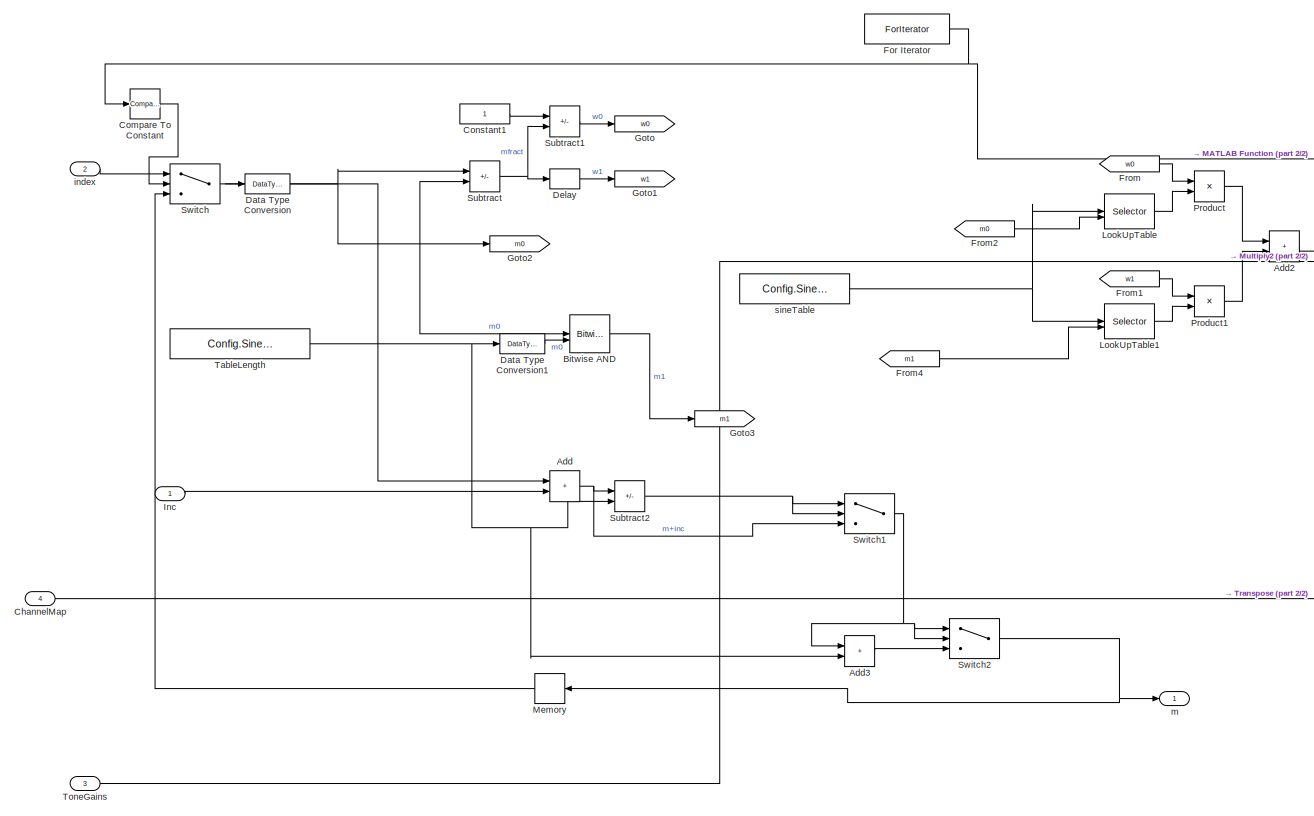
[diagram: MultiToneGen/Multitone Signal Generator/Multitone Engine/For Iterator Subsystem - part 1/2, center side, full height]
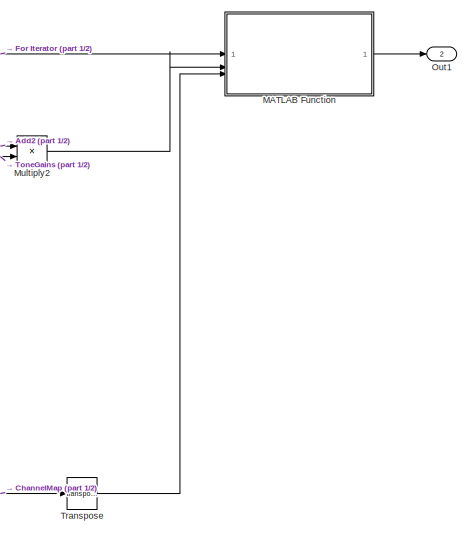
[diagram: MultiToneGen/Multitone Signal Generator/Multitone Engine/For Iterator Subsystem - part 2/2, middle right region]
BLOCK [SubSystem] MultiToneGen/Multitone Signal Generator/Multitone Engine/For Iterator Subsystem
  TreatAsAtomicUnit = on
BLOCK [Sum] MultiToneGen/Multitone Signal Generator/Multitone Engine/For Iterator Subsystem/Add
  IconShape = rectangular
BLOCK [Sum] MultiToneGen/Multitone Signal Generator/Multitone Engine/For Iterator Subsystem/Add2
  IconShape = rectangular
BLOCK [Sum] MultiToneGen/Multitone Signal Generator/Multitone Engine/For Iterator Subsystem/Add3
  IconShape = rectangular
BLOCK [Reference] MultiToneGen/Multitone Signal Generator/Multitone Engine/For Iterator Subsystem/Bitwise AND  REF=simulink/Logic and Bit
Operations/Bitwise
Operator
  SourceBlock = simulink/Logic and Bit\nOperations/Bitwise\nOperator
  SourceType = Bitwise Operator
BLOCK [Inport] MultiToneGen/Multitone Signal Generator/Multitone Engine/For Iterator Subsystem/ChannelMap
  Port = 4
BLOCK [Reference] MultiToneGen/Multitone Signal Generator/Multitone Engine/For Iterator Subsystem/Compare To Constant  REF=simulink/Logic and Bit
Operations/Compare
To Constant
  SourceBlock = simulink/Logic and Bit\nOperations/Compare\nTo Constant
  SourceType = Compare To Constant
BLOCK [Constant] MultiToneGen/Multitone Signal Generator/Multitone Engine/For Iterator Subsystem/Constant1
  OutDataTypeStr = single
BLOCK [DataTypeConversion] MultiToneGen/Multitone Signal Generator/Multitone Engine/For Iterator Subsystem/Data Type Conversion
  OutDataTypeStr = uint32
  RndMeth = Floor
  SaturateOnIntegerOverflow = off
BLOCK [DataTypeConversion] MultiToneGen/Multitone Signal Generator/Multitone Engine/For Iterator Subsystem/Data Type Conversion1
  OutDataTypeStr = uint32
  RndMeth = Floor
  SaturateOnIntegerOverflow = off
BLOCK [Delay] MultiToneGen/Multitone Signal Generator/Multitone Engine/For Iterator Subsystem/Delay
  DelayLength = 0
  InputPortMap = u0
BLOCK [ForIterator] MultiToneGen/Multitone Signal Generator/Multitone Engine/For Iterator Subsystem/For Iterator
  IterationLimit = Config.FrameSizeSamples
  ResetStates = reset
BLOCK [From] MultiToneGen/Multitone Signal Generator/Multitone Engine/For Iterator Subsystem/From
  GotoTag = w0
BLOCK [From] MultiToneGen/Multitone Signal Generator/Multitone Engine/For Iterator Subsystem/From1
  GotoTag = w1
BLOCK [From] MultiToneGen/Multitone Signal Generator/Multitone Engine/For Iterator Subsystem/From2
  GotoTag = m0
BLOCK [From] MultiToneGen/Multitone Signal Generator/Multitone Engine/For Iterator Subsystem/From4
  GotoTag = m1
BLOCK [Goto] MultiToneGen/Multitone Signal Generator/Multitone Engine/For Iterator Subsystem/Goto
  GotoTag = w0
BLOCK [Goto] MultiToneGen/Multitone Signal Generator/Multitone Engine/For Iterator Subsystem/Goto1
  GotoTag = w1
BLOCK [Goto] MultiToneGen/Multitone Signal Generator/Multitone Engine/For Iterator Subsystem/Goto2
  GotoTag = m0
BLOCK [Goto] MultiToneGen/Multitone Signal Generator/Multitone Engine/For Iterator Subsystem/Goto3
  GotoTag = m1
BLOCK [Inport] MultiToneGen/Multitone Signal Generator/Multitone Engine/For Iterator Subsystem/Inc 
BLOCK [Selector] MultiToneGen/Multitone Signal Generator/Multitone Engine/For Iterator Subsystem/LookUpTable
  IndexMode = Zero-based
  IndexOptions = Index vector (port)
  Indices = [1 3]
  InputPortWidth = Config.SineTableLength
  OutputSizes = 1
BLOCK [Selector] MultiToneGen/Multitone Signal Generator/Multitone Engine/For Iterator Subsystem/LookUpTable1
  IndexMode = Zero-based
  IndexOptions = Index vector (port)
  Indices = [1 3]
  InputPortWidth = Config.SineTableLength
  OutputSizes = 1
BLOCK [SubSystem] MultiToneGen/Multitone Signal Generator/Multitone Engine/For Iterator Subsystem/MATLAB Function
  ErrorFcn = Stateflow.Translate.translate
  PermitHierarchicalResolution = ExplicitOnly
  SFBlockType = MATLAB Function
  TreatAsAtomicUnit = on
BLOCK [Demux] MultiToneGen/Multitone Signal Generator/Multitone Engine/For Iterator Subsystem/MATLAB Function/ Demux 
  Outputs = 1
BLOCK [S-Function] MultiToneGen/Multitone Signal Generator/Multitone Engine/For Iterator Subsystem/MATLAB Function/ SFunction 
  EnableBusSupport = off
  FunctionName = sf_sfun
  Parameters = frameSize_samples
  PortCounts = [3 2]
  SFcnIsStateOwnerBlock = off
  SFunctionDeploymentMode = off
  Tag = Stateflow S-Function 7
BLOCK [Terminator] MultiToneGen/Multitone Signal Generator/Multitone Engine/For Iterator Subsystem/MATLAB Function/ Terminator 
BLOCK [Inport] MultiToneGen/Multitone Signal Generator/Multitone Engine/For Iterator Subsystem/MATLAB Function/Data
  Port = 2
BLOCK [Inport] MultiToneGen/Multitone Signal Generator/Multitone Engine/For Iterator Subsystem/MATLAB Function/Index
BLOCK [Inport] MultiToneGen/Multitone Signal Generator/Multitone Engine/For Iterator Subsystem/MATLAB Function/MultitoneMap
  Port = 3
BLOCK [Outport] MultiToneGen/Multitone Signal Generator/Multitone Engine/For Iterator Subsystem/MATLAB Function/y
  VectorParamsAs1DForOutWhenUnconnected = off
BLOCK [Memory] MultiToneGen/Multitone Signal Generator/Multitone Engine/For Iterator Subsystem/Memory
  InheritSampleTime = on
BLOCK [Product] MultiToneGen/Multitone Signal Generator/Multitone Engine/For Iterator Subsystem/Multiply2
BLOCK [Outport] MultiToneGen/Multitone Signal Generator/Multitone Engine/For Iterator Subsystem/Out1
  Port = 2
  VectorParamsAs1DForOutWhenUnconnected = off
BLOCK [Product] MultiToneGen/Multitone Signal Generator/Multitone Engine/For Iterator Subsystem/Product
BLOCK [Product] MultiToneGen/Multitone Signal Generator/Multitone Engine/For Iterator Subsystem/Product1
BLOCK [Sum] MultiToneGen/Multitone Signal Generator/Multitone Engine/For Iterator Subsystem/Subtract
  IconShape = rectangular
  Inputs = +-
  OutDataTypeStr = single
BLOCK [Sum] MultiToneGen/Multitone Signal Generator/Multitone Engine/For Iterator Subsystem/Subtract1
  IconShape = rectangular
  Inputs = +-
  OutDataTypeStr = single
BLOCK [Sum] MultiToneGen/Multitone Signal Generator/Multitone Engine/For Iterator Subsystem/Subtract2
  IconShape = rectangular
  Inputs = +-
BLOCK [Switch] MultiToneGen/Multitone Signal Generator/Multitone Engine/For Iterator Subsystem/Switch
  Criteria = u2 ~= 0
  InputSameDT = off
  SaturateOnIntegerOverflow = off
BLOCK [Switch] MultiToneGen/Multitone Signal Generator/Multitone Engine/For Iterator Subsystem/Switch1
  InputSameDT = off
  SaturateOnIntegerOverflow = off
BLOCK [Switch] MultiToneGen/Multitone Signal Generator/Multitone Engine/For Iterator Subsystem/Switch2
  InputSameDT = off
  SaturateOnIntegerOverflow = off
BLOCK [Constant] MultiToneGen/Multitone Signal Generator/Multitone Engine/For Iterator Subsystem/TableLength
  OutDataTypeStr = single
  Value = Config.SineTableLength
  VectorParams1D = off
BLOCK [Inport] MultiToneGen/Multitone Signal Generator/Multitone Engine/For Iterator Subsystem/ToneGains
  Port = 3
BLOCK [Math] MultiToneGen/Multitone Signal Generator/Multitone Engine/For Iterator Subsystem/Transpose
  Operator = transpose
  SignedPower = on
BLOCK [Inport] MultiToneGen/Multitone Signal Generator/Multitone Engine/For Iterator Subsystem/index
  Port = 2
BLOCK [Outport] MultiToneGen/Multitone Signal Generator/Multitone Engine/For Iterator Subsystem/m
  VectorParamsAs1DForOutWhenUnconnected = off
BLOCK [Constant] MultiToneGen/Multitone Signal Generator/Multitone Engine/For Iterator Subsystem/sineTable
  OutDataTypeStr = single
  Value = Config.SineTable
  VectorParams1D = off
BLOCK [From] MultiToneGen/Multitone Signal Generator/Multitone Engine/From
  GotoTag = Delta
BLOCK [From] MultiToneGen/Multitone Signal Generator/Multitone Engine/From1
  GotoTag = Index_init
BLOCK [From] MultiToneGen/Multitone Signal Generator/Multitone Engine/From4
  GotoTag = m
BLOCK [From] MultiToneGen/Multitone Signal Generator/Multitone Engine/From7
  GotoTag = Inc_init
BLOCK [Goto] MultiToneGen/Multitone Signal Generator/Multitone Engine/Goto
  GotoTag = Delta
BLOCK [Goto] MultiToneGen/Multitone Signal Generator/Multitone Engine/Goto1
  GotoTag = Index_init
BLOCK [Goto] MultiToneGen/Multitone Signal Generator/Multitone Engine/Goto4
  GotoTag = m
BLOCK [Goto] MultiToneGen/Multitone Signal Generator/Multitone Engine/Goto6
  GotoTag = Inc_init
BLOCK [SubSystem] MultiToneGen/Multitone Signal Generator/Multitone Engine/MultitoneZeroOut
  ErrorFcn = Stateflow.Translate.translate
  PermitHierarchicalResolution = ExplicitOnly
  SFBlockType = MATLAB Function
  TreatAsAtomicUnit = on
BLOCK [Demux] MultiToneGen/Multitone Signal Generator/Multitone Engine/MultitoneZeroOut/ Demux 
  Outputs = 1
BLOCK [Ground] MultiToneGen/Multitone Signal Generator/Multitone Engine/MultitoneZeroOut/ Ground 
BLOCK [S-Function] MultiToneGen/Multitone Signal Generator/Multitone Engine/MultitoneZeroOut/ SFunction 
  EnableBusSupport = off
  FunctionName = sf_sfun
  Parameters = Num_Multitone_channels,frameSize_samples
  PortCounts = [1 2]
  SFcnIsStateOwnerBlock = off
  SFunctionDeploymentMode = off
  Tag = Stateflow S-Function 12
BLOCK [Terminator] MultiToneGen/Multitone Signal Generator/Multitone Engine/MultitoneZeroOut/ Terminator 
BLOCK [Outport] MultiToneGen/Multitone Signal Generator/Multitone Engine/MultitoneZeroOut/y
BLOCK [Outport] MultiToneGen/Multitone Signal Generator/Multitone Engine/Multitone_Out
  VectorParamsAs1DForOutWhenUnconnected = off
BLOCK [Switch] MultiToneGen/Multitone Signal Generator/Multitone Engine/Switch
  Criteria = u2 ~= 0
  InputSameDT = off
  SaturateOnIntegerOverflow = off
BLOCK [Inport] MultiToneGen/Multitone Signal Generator/Multitone Engine/ToneGains
  Port = 4
BLOCK [Inport] MultiToneGen/Multitone Signal Generator/Multitone Engine/multitone_ON
BLOCK [Inport] MultiToneGen/Multitone Signal Generator/Multitone Engine/start_freq_In
  Port = 2
BLOCK [Inport] MultiToneGen/Multitone Signal Generator/Multitone Engine/start_phase_In
  Port = 3
BLOCK [Outport] MultiToneGen/Multitone Signal Generator/Multitone_Out
  VectorParamsAs1DForOutWhenUnconnected = off
BLOCK [Inport] MultiToneGen/Multitone Signal Generator/ToneGains
  Port = 4
BLOCK [Inport] MultiToneGen/Multitone Signal Generator/multitone_ON
BLOCK [Inport] MultiToneGen/Multitone Signal Generator/start_freq_Hz
  Port = 2
BLOCK [Inport] MultiToneGen/Multitone Signal Generator/start_phase_rad
  Port = 3
BLOCK [Reference] MultiToneGen/RTC  REF=RTC/RTC
  SourceBlock = RTC/RTC
  SourceProductName = Bose Talaria
  SourceType = Talaria RTC Receive
BLOCK [Outport] MultiToneGen/multitone_output
  VectorParamsAs1DForOutWhenUnconnected = off
BLOCK [SubSystem] OldSweep
BLOCK [Reference] OldSweep/FeaturePath  REF=FeaturePath/FeaturePath
  SourceBlock = FeaturePath/FeaturePath
  SourceProductName = Bose Talaria
  SourceType = Talaria Feature Path
BLOCK [Reference] OldSweep/HandyDefaultConfigFile  REF=HandyTextFile/HandyTextFile
  SourceBlock = HandyTextFile/HandyTextFile
  SourceProductName = Bose Talaria
  SourceType = Talaria Handy Text File
BLOCK [SubSystem] OldSweep/Old Sweep Signal Generator
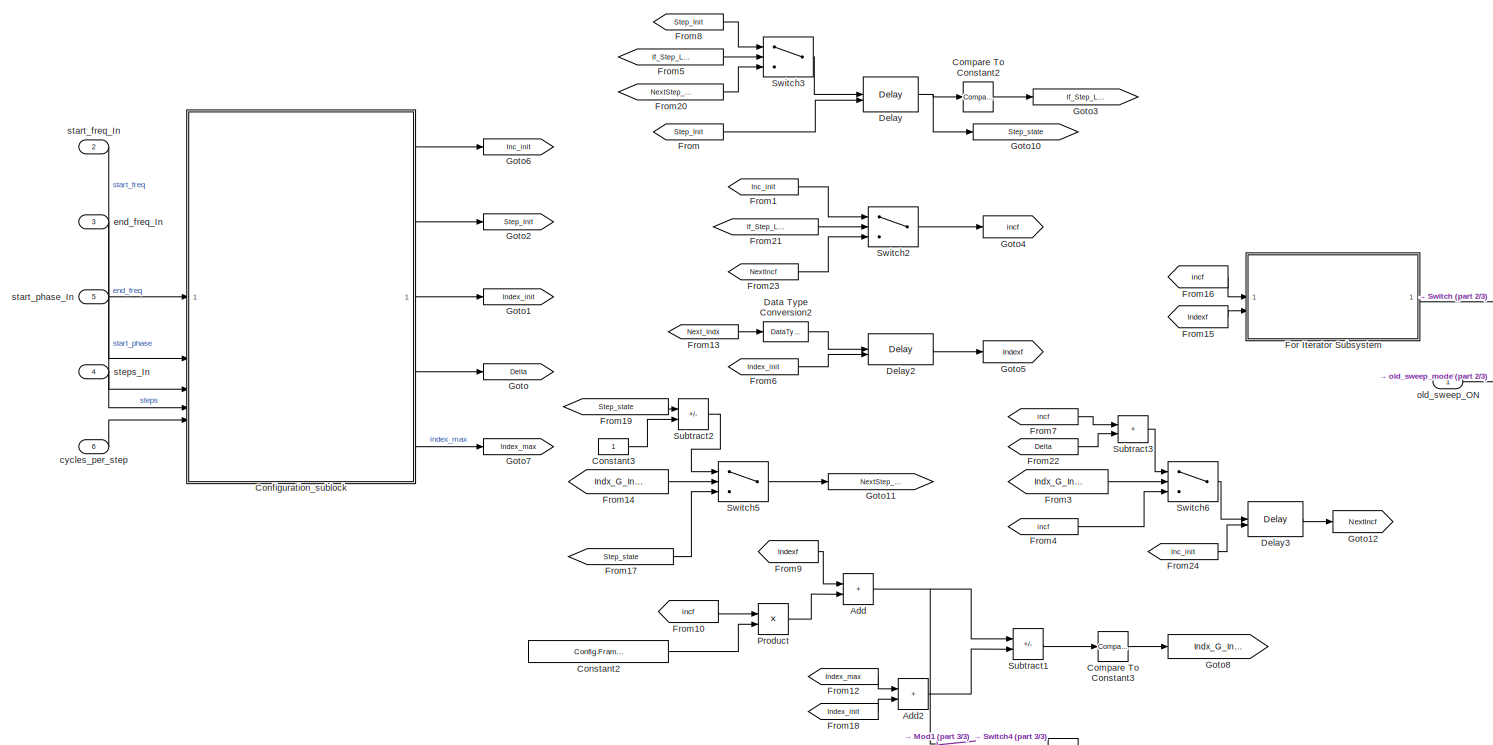
[diagram: OldSweep/Old Sweep Signal Generator/Old Sweep Engine - part 1/3, most of the canvas]
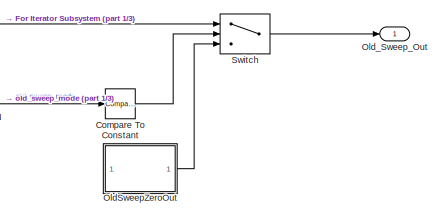
[diagram: OldSweep/Old Sweep Signal Generator/Old Sweep Engine - part 2/3, middle right region]
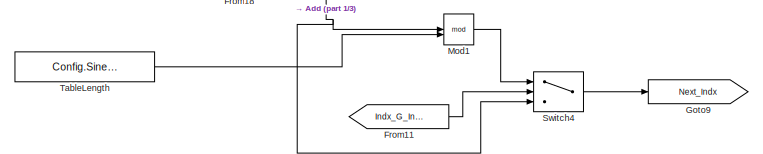
[diagram: OldSweep/Old Sweep Signal Generator/Old Sweep Engine - part 3/3, bottom center region]
BLOCK [SubSystem] OldSweep/Old Sweep Signal Generator/Old Sweep Engine
  TreatAsAtomicUnit = on
BLOCK [Sum] OldSweep/Old Sweep Signal Generator/Old Sweep Engine/Add
  IconShape = rectangular
BLOCK [Sum] OldSweep/Old Sweep Signal Generator/Old Sweep Engine/Add2
  AccumDataTypeStr = single
  IconShape = rectangular
BLOCK [Reference] OldSweep/Old Sweep Signal Generator/Old Sweep Engine/Compare To Constant  REF=simulink/Logic and Bit
Operations/Compare
To Constant
  SourceBlock = simulink/Logic and Bit\nOperations/Compare\nTo Constant
  SourceType = Compare To Constant
BLOCK [Reference] OldSweep/Old Sweep Signal Generator/Old Sweep Engine/Compare To Constant2  REF=simulink/Logic and Bit
Operations/Compare
To Constant
  NameLocation = top
  SourceBlock = simulink/Logic and Bit\nOperations/Compare\nTo Constant
  SourceType = Compare To Constant
BLOCK [Reference] OldSweep/Old Sweep Signal Generator/Old Sweep Engine/Compare To Constant3  REF=simulink/Logic and Bit
Operations/Compare
To Constant
  NameLocation = top
  SourceBlock = simulink/Logic and Bit\nOperations/Compare\nTo Constant
  SourceType = Compare To Constant
BLOCK [SubSystem] OldSweep/Old Sweep Signal Generator/Old Sweep Engine/Configuration_sublock
BLOCK [SubSystem] OldSweep/Old Sweep Signal Generator/Old Sweep Engine/Configuration_sublock/ 
  TreatAsAtomicUnit = on
BLOCK [Sum] OldSweep/Old Sweep Signal Generator/Old Sweep Engine/Configuration_sublock/ /Add
  IconShape = rectangular
  Inputs = +-
BLOCK [Product] OldSweep/Old Sweep Signal Generator/Old Sweep Engine/Configuration_sublock/ /Multiply1
  Inputs = */
BLOCK [Sum] OldSweep/Old Sweep Signal Generator/Old Sweep Engine/Configuration_sublock/ /Subtract
  IconShape = rectangular
  Inputs = +-
BLOCK [Outport] OldSweep/Old Sweep Signal Generator/Old Sweep Engine/Configuration_sublock/ /inc_delta_Out1
  VectorParamsAs1DForOutWhenUnconnected = off
BLOCK [Inport] OldSweep/Old Sweep Signal Generator/Old Sweep Engine/Configuration_sublock/ /inc_end_In2
  Port = 2
BLOCK [Inport] OldSweep/Old Sweep Signal Generator/Old Sweep Engine/Configuration_sublock/ /inc_start_In1
BLOCK [Constant] OldSweep/Old Sweep Signal Generator/Old Sweep Engine/Configuration_sublock/ /oneVal
  OutDataTypeStr = uint32
BLOCK [Inport] OldSweep/Old Sweep Signal Generator/Old Sweep Engine/Configuration_sublock/ /steps_In3
  Port = 3
BLOCK [Sum] OldSweep/Old Sweep Signal Generator/Old Sweep Engine/Configuration_sublock/Add
  IconShape = rectangular
BLOCK [Sum] OldSweep/Old Sweep Signal Generator/Old Sweep Engine/Configuration_sublock/Add1
  IconShape = rectangular
  Inputs = +-
BLOCK [Constant] OldSweep/Old Sweep Signal Generator/Old Sweep Engine/Configuration_sublock/Fs_value
  OutDataTypeStr = single
  Value = Config.FsHz
BLOCK [Product] OldSweep/Old Sweep Signal Generator/Old Sweep Engine/Configuration_sublock/Multiply
  Inputs = */
BLOCK [Product] OldSweep/Old Sweep Signal Generator/Old Sweep Engine/Configuration_sublock/Multiply1
  Inputs = */
BLOCK [Product] OldSweep/Old Sweep Signal Generator/Old Sweep Engine/Configuration_sublock/Multiply2
  Inputs = ***
BLOCK [Product] OldSweep/Old Sweep Signal Generator/Old Sweep Engine/Configuration_sublock/Multiply4
  Inputs = */
BLOCK [Product] OldSweep/Old Sweep Signal Generator/Old Sweep Engine/Configuration_sublock/Multiply5
  Inputs = **
BLOCK [Inport] OldSweep/Old Sweep Signal Generator/Old Sweep Engine/Configuration_sublock/cycles_per_step
  Port = 5
BLOCK [Inport] OldSweep/Old Sweep Signal Generator/Old Sweep Engine/Configuration_sublock/end_freq
  Port = 2
BLOCK [Outport] OldSweep/Old Sweep Signal Generator/Old Sweep Engine/Configuration_sublock/inc_delta
  Port = 4
  VectorParamsAs1DForOutWhenUnconnected = off
BLOCK [Outport] OldSweep/Old Sweep Signal Generator/Old Sweep Engine/Configuration_sublock/inc_start
  VectorParamsAs1DForOutWhenUnconnected = off
BLOCK [Outport] OldSweep/Old Sweep Signal Generator/Old Sweep Engine/Configuration_sublock/index_max
  Port = 5
  VectorParamsAs1DForOutWhenUnconnected = off
BLOCK [Outport] OldSweep/Old Sweep Signal Generator/Old Sweep Engine/Configuration_sublock/index_start
  Port = 3
  VectorParamsAs1DForOutWhenUnconnected = off
BLOCK [Constant] OldSweep/Old Sweep Signal Generator/Old Sweep Engine/Configuration_sublock/pi
  OutDataTypeStr = single
  Value = 1/(2*pi)
  VectorParams1D = off
BLOCK [Inport] OldSweep/Old Sweep Signal Generator/Old Sweep Engine/Configuration_sublock/start_freq
BLOCK [Inport] OldSweep/Old Sweep Signal Generator/Old Sweep Engine/Configuration_sublock/start_phase
  Port = 3
BLOCK [Outport] OldSweep/Old Sweep Signal Generator/Old Sweep Engine/Configuration_sublock/steps
  Port = 2
  VectorParamsAs1DForOutWhenUnconnected = off
BLOCK [Inport] OldSweep/Old Sweep Signal Generator/Old Sweep Engine/Configuration_sublock/steps 
  Port = 4
BLOCK [Constant] OldSweep/Old Sweep Signal Generator/Old Sweep Engine/Configuration_sublock/tableLength
  OutDataTypeStr = single
  Value = Config.SineTableLength
BLOCK [Constant] OldSweep/Old Sweep Signal Generator/Old Sweep Engine/Configuration_sublock/two_val
  OutDataTypeStr = uint32
  VectorParams1D = off
BLOCK [Constant] OldSweep/Old Sweep Signal Generator/Old Sweep Engine/Configuration_sublock/zero_Val
  OutDataTypeStr = uint32
  Value = 0
BLOCK [Constant] OldSweep/Old Sweep Signal Generator/Old Sweep Engine/Constant2
  OutDataTypeStr = uint32
  Value = Config.FrameSizeSamples
BLOCK [Constant] OldSweep/Old Sweep Signal Generator/Old Sweep Engine/Constant3
  OutDataTypeStr = single
BLOCK [DataTypeConversion] OldSweep/Old Sweep Signal Generator/Old Sweep Engine/Data Type Conversion2
  OutDataTypeStr = single
  RndMeth = Floor
  SaturateOnIntegerOverflow = off
BLOCK [Delay] OldSweep/Old Sweep Signal Generator/Old Sweep Engine/Delay
  DelayLength = 1
  InitialConditionSource = Input port
  InputPortMap = u0,p4
BLOCK [Delay] OldSweep/Old Sweep Signal Generator/Old Sweep Engine/Delay2
  DelayLength = 1
  InitialConditionSource = Input port
  InputPortMap = u0,p4
BLOCK [Delay] OldSweep/Old Sweep Signal Generator/Old Sweep Engine/Delay3
  DelayLength = 1
  InitialConditionSource = Input port
  InputPortMap = u0,p4
BLOCK [SubSystem] OldSweep/Old Sweep Signal Generator/Old Sweep Engine/For Iterator Subsystem
  TreatAsAtomicUnit = on
BLOCK [Sum] OldSweep/Old Sweep Signal Generator/Old Sweep Engine/For Iterator Subsystem/Add
  IconShape = rectangular
BLOCK [Sum] OldSweep/Old Sweep Signal Generator/Old Sweep Engine/For Iterator Subsystem/Add2
  IconShape = rectangular
BLOCK [Sum] OldSweep/Old Sweep Signal Generator/Old Sweep Engine/For Iterator Subsystem/Add3
  IconShape = rectangular
BLOCK [Reference] OldSweep/Old Sweep Signal Generator/Old Sweep Engine/For Iterator Subsystem/Bitwise AND  REF=simulink/Logic and Bit
Operations/Bitwise
Operator
  SourceBlock = simulink/Logic and Bit\nOperations/Bitwise\nOperator
  SourceType = Bitwise Operator
BLOCK [Reference] OldSweep/Old Sweep Signal Generator/Old Sweep Engine/For Iterator Subsystem/Compare To Constant  REF=simulink/Logic and Bit
Operations/Compare
To Constant
  SourceBlock = simulink/Logic and Bit\nOperations/Compare\nTo Constant
  SourceType = Compare To Constant
BLOCK [Constant] OldSweep/Old Sweep Signal Generator/Old Sweep Engine/For Iterator Subsystem/Constant1
  OutDataTypeStr = single
BLOCK [Constant] OldSweep/Old Sweep Signal Generator/Old Sweep Engine/For Iterator Subsystem/Constant4
  NameLocation = top
  OutDataTypeStr = uint32
BLOCK [DataTypeConversion] OldSweep/Old Sweep Signal Generator/Old Sweep Engine/For Iterator Subsystem/Data Type Conversion
  OutDataTypeStr = uint32
  RndMeth = Floor
  SaturateOnIntegerOverflow = off
BLOCK [DataTypeConversion] OldSweep/Old Sweep Signal Generator/Old Sweep Engine/For Iterator Subsystem/Data Type Conversion1
  OutDataTypeStr = uint32
  RndMeth = Floor
  SaturateOnIntegerOverflow = off
BLOCK [Delay] OldSweep/Old Sweep Signal Generator/Old Sweep Engine/For Iterator Subsystem/Delay
  DelayLength = 0
  InputPortMap = u0
BLOCK [ForIterator] OldSweep/Old Sweep Signal Generator/Old Sweep Engine/For Iterator Subsystem/For Iterator
  IterationLimit = Config.FrameSizeSamples
  ResetStates = reset
BLOCK [From] OldSweep/Old Sweep Signal Generator/Old Sweep Engine/For Iterator Subsystem/From
  GotoTag = w0
BLOCK [From] OldSweep/Old Sweep Signal Generator/Old Sweep Engine/For Iterator Subsystem/From1
  GotoTag = w1
BLOCK [From] OldSweep/Old Sweep Signal Generator/Old Sweep Engine/For Iterator Subsystem/From2
  GotoTag = m0
BLOCK [From] OldSweep/Old Sweep Signal Generator/Old Sweep Engine/For Iterator Subsystem/From4
  GotoTag = m1
BLOCK [Goto] OldSweep/Old Sweep Signal Generator/Old Sweep Engine/For Iterator Subsystem/Goto
  GotoTag = w0
BLOCK [Goto] OldSweep/Old Sweep Signal Generator/Old Sweep Engine/For Iterator Subsystem/Goto1
  GotoTag = w1
BLOCK [Goto] OldSweep/Old Sweep Signal Generator/Old Sweep Engine/For Iterator Subsystem/Goto2
  GotoTag = m0
BLOCK [Goto] OldSweep/Old Sweep Signal Generator/Old Sweep Engine/For Iterator Subsystem/Goto3
  GotoTag = m1
BLOCK [Inport] OldSweep/Old Sweep Signal Generator/Old Sweep Engine/For Iterator Subsystem/Inc 
BLOCK [Selector] OldSweep/Old Sweep Signal Generator/Old Sweep Engine/For Iterator Subsystem/LookUpTable
  IndexMode = Zero-based
  IndexOptions = Index vector (port)
  Indices = [1 3]
  InputPortWidth = Config.SineTableLength
  OutputSizes = 1
BLOCK [Selector] OldSweep/Old Sweep Signal Generator/Old Sweep Engine/For Iterator Subsystem/LookUpTable1
  IndexMode = Zero-based
  IndexOptions = Index vector (port)
  Indices = [1 3]
  InputPortWidth = Config.SineTableLength
  OutputSizes = 1
BLOCK [SubSystem] OldSweep/Old Sweep Signal Generator/Old Sweep Engine/For Iterator Subsystem/MATLAB Function
  ErrorFcn = Stateflow.Translate.translate
  PermitHierarchicalResolution = ExplicitOnly
  SFBlockType = MATLAB Function
  TreatAsAtomicUnit = on
BLOCK [Demux] OldSweep/Old Sweep Signal Generator/Old Sweep Engine/For Iterator Subsystem/MATLAB Function/ Demux 
  Outputs = 1
BLOCK [S-Function] OldSweep/Old Sweep Signal Generator/Old Sweep Engine/For Iterator Subsystem/MATLAB Function/ SFunction 
  EnableBusSupport = off
  FunctionName = sf_sfun
  Parameters = Nch,frameSize_samples
  PortCounts = [2 2]
  SFcnIsStateOwnerBlock = off
  SFunctionDeploymentMode = off
  Tag = Stateflow S-Function 2
BLOCK [Terminator] OldSweep/Old Sweep Signal Generator/Old Sweep Engine/For Iterator Subsystem/MATLAB Function/ Terminator 
BLOCK [Inport] OldSweep/Old Sweep Signal Generator/Old Sweep Engine/For Iterator Subsystem/MATLAB Function/Data
  Port = 2
BLOCK [Inport] OldSweep/Old Sweep Signal Generator/Old Sweep Engine/For Iterator Subsystem/MATLAB Function/Index
BLOCK [Outport] OldSweep/Old Sweep Signal Generator/Old Sweep Engine/For Iterator Subsystem/MATLAB Function/y
  VectorParamsAs1DForOutWhenUnconnected = off
BLOCK [Memory] OldSweep/Old Sweep Signal Generator/Old Sweep Engine/For Iterator Subsystem/Memory
  InheritSampleTime = on
BLOCK [Outport] OldSweep/Old Sweep Signal Generator/Old Sweep Engine/For Iterator Subsystem/Out1
  VectorParamsAs1DForOutWhenUnconnected = off
BLOCK [Product] OldSweep/Old Sweep Signal Generator/Old Sweep Engine/For Iterator Subsystem/Product
BLOCK [Product] OldSweep/Old Sweep Signal Generator/Old Sweep Engine/For Iterator Subsystem/Product1
BLOCK [Sum] OldSweep/Old Sweep Signal Generator/Old Sweep Engine/For Iterator Subsystem/Subtract
  IconShape = rectangular
  Inputs = +-
  OutDataTypeStr = single
BLOCK [Sum] OldSweep/Old Sweep Signal Generator/Old Sweep Engine/For Iterator Subsystem/Subtract1
  IconShape = rectangular
  Inputs = +-
  OutDataTypeStr = single
BLOCK [Sum] OldSweep/Old Sweep Signal Generator/Old Sweep Engine/For Iterator Subsystem/Subtract2
  IconShape = rectangular
  Inputs = +-
BLOCK [Sum] OldSweep/Old Sweep Signal Generator/Old Sweep Engine/For Iterator Subsystem/Subtract3
  IconShape = rectangular
  Inputs = +-
BLOCK [Switch] OldSweep/Old Sweep Signal Generator/Old Sweep Engine/For Iterator Subsystem/Switch
  Criteria = u2 ~= 0
  InputSameDT = off
  SaturateOnIntegerOverflow = off
BLOCK [Switch] OldSweep/Old Sweep Signal Generator/Old Sweep Engine/For Iterator Subsystem/Switch1
  InputSameDT = off
  SaturateOnIntegerOverflow = off
BLOCK [Switch] OldSweep/Old Sweep Signal Generator/Old Sweep Engine/For Iterator Subsystem/Switch2
  InputSameDT = off
  SaturateOnIntegerOverflow = off
BLOCK [Constant] OldSweep/Old Sweep Signal Generator/Old Sweep Engine/For Iterator Subsystem/TableLength
  OutDataTypeStr = single
  Value = Config.SineTableLength
  VectorParams1D = off
BLOCK [Inport] OldSweep/Old Sweep Signal Generator/Old Sweep Engine/For Iterator Subsystem/index
  Port = 2
BLOCK [Constant] OldSweep/Old Sweep Signal Generator/Old Sweep Engine/For Iterator Subsystem/sineTable
  OutDataTypeStr = single
  Value = Config.SineTable
  VectorParams1D = off
BLOCK [From] OldSweep/Old Sweep Signal Generator/Old Sweep Engine/From
  GotoTag = Step_Init
BLOCK [From] OldSweep/Old Sweep Signal Generator/Old Sweep Engine/From1
  GotoTag = Inc_init
BLOCK [From] OldSweep/Old Sweep Signal Generator/Old Sweep Engine/From10
  GotoTag = incf
BLOCK [From] OldSweep/Old Sweep Signal Generator/Old Sweep Engine/From11
  GotoTag = Indx_G_IndxMax
BLOCK [From] OldSweep/Old Sweep Signal Generator/Old Sweep Engine/From12
  GotoTag = Index_max
  TagVisibility = global
BLOCK [From] OldSweep/Old Sweep Signal Generator/Old Sweep Engine/From13
  GotoTag = Next_Indx
BLOCK [From] OldSweep/Old Sweep Signal Generator/Old Sweep Engine/From14
  GotoTag = Indx_G_IndxMax
BLOCK [From] OldSweep/Old Sweep Signal Generator/Old Sweep Engine/From15
  GotoTag = Indexf
BLOCK [From] OldSweep/Old Sweep Signal Generator/Old Sweep Engine/From16
  GotoTag = incf
BLOCK [From] OldSweep/Old Sweep Signal Generator/Old Sweep Engine/From17
  GotoTag = Step_state
BLOCK [From] OldSweep/Old Sweep Signal Generator/Old Sweep Engine/From18
  GotoTag = Index_init
BLOCK [From] OldSweep/Old Sweep Signal Generator/Old Sweep Engine/From19
  GotoTag = Step_state
BLOCK [From] OldSweep/Old Sweep Signal Generator/Old Sweep Engine/From20
  GotoTag = NextStep_state
BLOCK [From] OldSweep/Old Sweep Signal Generator/Old Sweep Engine/From21
  GotoTag = If_Step_Ls_zero
BLOCK [From] OldSweep/Old Sweep Signal Generator/Old Sweep Engine/From22
  GotoTag = Delta
BLOCK [From] OldSweep/Old Sweep Signal Generator/Old Sweep Engine/From23
  GotoTag = NextIncf
BLOCK [From] OldSweep/Old Sweep Signal Generator/Old Sweep Engine/From24
  GotoTag = Inc_init
BLOCK [From] OldSweep/Old Sweep Signal Generator/Old Sweep Engine/From3
  GotoTag = Indx_G_IndxMax
BLOCK [From] OldSweep/Old Sweep Signal Generator/Old Sweep Engine/From4
  GotoTag = incf
BLOCK [From] OldSweep/Old Sweep Signal Generator/Old Sweep Engine/From5
  GotoTag = If_Step_Ls_zero
BLOCK [From] OldSweep/Old Sweep Signal Generator/Old Sweep Engine/From6
  GotoTag = Index_init
BLOCK [From] OldSweep/Old Sweep Signal Generator/Old Sweep Engine/From7
  GotoTag = incf
BLOCK [From] OldSweep/Old Sweep Signal Generator/Old Sweep Engine/From8
  GotoTag = Step_Init
BLOCK [From] OldSweep/Old Sweep Signal Generator/Old Sweep Engine/From9
  GotoTag = Indexf
BLOCK [Goto] OldSweep/Old Sweep Signal Generator/Old Sweep Engine/Goto
  GotoTag = Delta
BLOCK [Goto] OldSweep/Old Sweep Signal Generator/Old Sweep Engine/Goto1
  GotoTag = Index_init
BLOCK [Goto] OldSweep/Old Sweep Signal Generator/Old Sweep Engine/Goto10
  GotoTag = Step_state
BLOCK [Goto] OldSweep/Old Sweep Signal Generator/Old Sweep Engine/Goto11
  GotoTag = NextStep_state
BLOCK [Goto] OldSweep/Old Sweep Signal Generator/Old Sweep Engine/Goto12
  GotoTag = NextIncf
BLOCK [Goto] OldSweep/Old Sweep Signal Generator/Old Sweep Engine/Goto2
  GotoTag = Step_Init
BLOCK [Goto] OldSweep/Old Sweep Signal Generator/Old Sweep Engine/Goto3
  GotoTag = If_Step_Ls_zero
BLOCK [Goto] OldSweep/Old Sweep Signal Generator/Old Sweep Engine/Goto4
  GotoTag = incf
BLOCK [Goto] OldSweep/Old Sweep Signal Generator/Old Sweep Engine/Goto5
  GotoTag = Indexf
BLOCK [Goto] OldSweep/Old Sweep Signal Generator/Old Sweep Engine/Goto6
  GotoTag = Inc_init
BLOCK [Goto] OldSweep/Old Sweep Signal Generator/Old Sweep Engine/Goto7
  GotoTag = Index_max
  TagVisibility = global
BLOCK [Goto] OldSweep/Old Sweep Signal Generator/Old Sweep Engine/Goto8
  GotoTag = Indx_G_IndxMax
BLOCK [Goto] OldSweep/Old Sweep Signal Generator/Old Sweep Engine/Goto9
  GotoTag = Next_Indx
BLOCK [Math] OldSweep/Old Sweep Signal Generator/Old Sweep Engine/Mod1
  Operator = mod
  SignedPower = on
BLOCK [SubSystem] OldSweep/Old Sweep Signal Generator/Old Sweep Engine/OldSweepZeroOut
  ErrorFcn = Stateflow.Translate.translate
  PermitHierarchicalResolution = ExplicitOnly
  SFBlockType = MATLAB Function
  TreatAsAtomicUnit = on
BLOCK [Demux] OldSweep/Old Sweep Signal Generator/Old Sweep Engine/OldSweepZeroOut/ Demux 
  Outputs = 1
BLOCK [Ground] OldSweep/Old Sweep Signal Generator/Old Sweep Engine/OldSweepZeroOut/ Ground 
BLOCK [S-Function] OldSweep/Old Sweep Signal Generator/Old Sweep Engine/OldSweepZeroOut/ SFunction 
  EnableBusSupport = off
  FunctionName = sf_sfun
  Parameters = Nch,frameSize_samples
  PortCounts = [1 2]
  SFcnIsStateOwnerBlock = off
  SFunctionDeploymentMode = off
  Tag = Stateflow S-Function 9
BLOCK [Terminator] OldSweep/Old Sweep Signal Generator/Old Sweep Engine/OldSweepZeroOut/ Terminator 
BLOCK [Outport] OldSweep/Old Sweep Signal Generator/Old Sweep Engine/OldSweepZeroOut/y
BLOCK [Outport] OldSweep/Old Sweep Signal Generator/Old Sweep Engine/Old_Sweep_Out
  VectorParamsAs1DForOutWhenUnconnected = off
BLOCK [Product] OldSweep/Old Sweep Signal Generator/Old Sweep Engine/Product
BLOCK [Sum] OldSweep/Old Sweep Signal Generator/Old Sweep Engine/Subtract1
  IconShape = rectangular
  Inputs = +-
BLOCK [Sum] OldSweep/Old Sweep Signal Generator/Old Sweep Engine/Subtract2
  IconShape = rectangular
  Inputs = +-
BLOCK [Sum] OldSweep/Old Sweep Signal Generator/Old Sweep Engine/Subtract3
  IconShape = rectangular
BLOCK [Switch] OldSweep/Old Sweep Signal Generator/Old Sweep Engine/Switch
  Criteria = u2 ~= 0
  InputSameDT = off
  SaturateOnIntegerOverflow = off
BLOCK [Switch] OldSweep/Old Sweep Signal Generator/Old Sweep Engine/Switch2
  Criteria = u2 ~= 0
  InputSameDT = off
  SaturateOnIntegerOverflow = off
BLOCK [Switch] OldSweep/Old Sweep Signal Generator/Old Sweep Engine/Switch3
  Criteria = u2 ~= 0
  InputSameDT = off
  SaturateOnIntegerOverflow = off
BLOCK [Switch] OldSweep/Old Sweep Signal Generator/Old Sweep Engine/Switch4
  Criteria = u2 ~= 0
  InputSameDT = off
  SaturateOnIntegerOverflow = off
BLOCK [Switch] OldSweep/Old Sweep Signal Generator/Old Sweep Engine/Switch5
  Criteria = u2 ~= 0
  InputSameDT = off
  SaturateOnIntegerOverflow = off
BLOCK [Switch] OldSweep/Old Sweep Signal Generator/Old Sweep Engine/Switch6
  Criteria = u2 ~= 0
  InputSameDT = off
  SaturateOnIntegerOverflow = off
BLOCK [Constant] OldSweep/Old Sweep Signal Generator/Old Sweep Engine/TableLength
  OutDataTypeStr = single
  Value = Config.SineTableLength
  VectorParams1D = off
BLOCK [Inport] OldSweep/Old Sweep Signal Generator/Old Sweep Engine/cycles_per_step
  Port = 6
BLOCK [Inport] OldSweep/Old Sweep Signal Generator/Old Sweep Engine/end_freq_In
  Port = 3
BLOCK [Inport] OldSweep/Old Sweep Signal Generator/Old Sweep Engine/old_sweep_ON
BLOCK [Inport] OldSweep/Old Sweep Signal Generator/Old Sweep Engine/start_freq_In
  Port = 2
BLOCK [Inport] OldSweep/Old Sweep Signal Generator/Old Sweep Engine/start_phase_In
  Port = 5
BLOCK [Inport] OldSweep/Old Sweep Signal Generator/Old Sweep Engine/steps_In
  Port = 4
BLOCK [Outport] OldSweep/Old Sweep Signal Generator/Old_sweep_Out
  VectorParamsAs1DForOutWhenUnconnected = off
BLOCK [SubSystem] OldSweep/Old Sweep Signal Generator/SimulationTimeTriggered_Subsystem
BLOCK [Constant] OldSweep/Old Sweep Signal Generator/SimulationTimeTriggered_Subsystem/Constant
  Value = 5
BLOCK [DigitalClock] OldSweep/Old Sweep Signal Generator/SimulationTimeTriggered_Subsystem/Digital Clock
  SampleTime = -1
BLOCK [RelationalOperator] OldSweep/Old Sweep Signal Generator/SimulationTimeTriggered_Subsystem/Equal
  InputSameDT = off
  Operator = ==
  OutDataTypeStr = boolean
  RndMeth = Simplest
BLOCK [Outport] OldSweep/Old Sweep Signal Generator/SimulationTimeTriggered_Subsystem/SimuliationTimeTriggerdOut1
  VectorParamsAs1DForOutWhenUnconnected = off
BLOCK [Outport] OldSweep/Old Sweep Signal Generator/SimuliationTimeTriggerdOut1
  Port = 2
  VectorParamsAs1DForOutWhenUnconnected = off
BLOCK [Inport] OldSweep/Old Sweep Signal Generator/cycles_per_step
  Port = 6
BLOCK [Inport] OldSweep/Old Sweep Signal Generator/end_freq_Hz
  Port = 3
BLOCK [Inport] OldSweep/Old Sweep Signal Generator/old_sweep_ON
BLOCK [Inport] OldSweep/Old Sweep Signal Generator/start_freq_Hz
  Port = 2
BLOCK [Inport] OldSweep/Old Sweep Signal Generator/start_phase_rad
  Port = 5
BLOCK [Inport] OldSweep/Old Sweep Signal Generator/steps
  Port = 4
BLOCK [Reference] OldSweep/RTC  REF=RTC/RTC
  SourceBlock = RTC/RTC
  SourceProductName = Bose Talaria
  SourceType = Talaria RTC Receive
BLOCK [SubSystem] OldSweep/Triggered Subsystem
  TreatAsAtomicUnit = on
BLOCK [Inport] OldSweep/Triggered Subsystem/In1
BLOCK [Outport] OldSweep/Triggered Subsystem/Out1
  VectorParamsAs1DForOutWhenUnconnected = off
BLOCK [TriggerPort] OldSweep/Triggered Subsystem/Trigger
  StatesWhenEnabling = held
  TriggerType = function-call
  VariantControl = Variant
BLOCK [Outport] OldSweep/old_sweep_output
  VectorParamsAs1DForOutWhenUnconnected = off
BLOCK [SubSystem] Sawtooth
BLOCK [Reference] Sawtooth/FeaturePath  REF=FeaturePath/FeaturePath
  SourceBlock = FeaturePath/FeaturePath
  SourceProductName = Bose Talaria
  SourceType = Talaria Feature Path
BLOCK [Reference] Sawtooth/HandyDefaultConfigFile  REF=HandyTextFile/HandyTextFile
  SourceBlock = HandyTextFile/HandyTextFile
  SourceProductName = Bose Talaria
  SourceType = Talaria Handy Text File
BLOCK [Reference] Sawtooth/RTC  REF=RTC/RTC
  SourceBlock = RTC/RTC
  SourceProductName = Bose Talaria
  SourceType = Talaria RTC Receive
BLOCK [SubSystem] Sawtooth/SawtoothGenSubsystem
  TreatAsAtomicUnit = on
BLOCK [Outport] Sawtooth/SawtoothGenSubsystem/Out2
  Port = 2
  VectorParamsAs1DForOutWhenUnconnected = off
BLOCK [SubSystem] Sawtooth/SawtoothGenSubsystem/SimulationTimeTriggered_Subsystem
BLOCK [Constant] Sawtooth/SawtoothGenSubsystem/SimulationTimeTriggered_Subsystem/Constant
  OutDataTypeStr = single
BLOCK [DigitalClock] Sawtooth/SawtoothGenSubsystem/SimulationTimeTriggered_Subsystem/Digital Clock
  SampleTime = -1
BLOCK [RelationalOperator] Sawtooth/SawtoothGenSubsystem/SimulationTimeTriggered_Subsystem/Equal
  InputSameDT = off
  Operator = ==
  OutDataTypeStr = boolean
  RndMeth = Simplest
BLOCK [Outport] Sawtooth/SawtoothGenSubsystem/SimulationTimeTriggered_Subsystem/SimuliationTimeTriggerdOut1
  VectorParamsAs1DForOutWhenUnconnected = off
BLOCK [SubSystem] Sawtooth/SawtoothGenSubsystem/Subsystem
BLOCK [SubSystem] Sawtooth/SawtoothGenSubsystem/Subsystem/Disable_Sawtooth
  TreatAsAtomicUnit = on
BLOCK [ActionPort] Sawtooth/SawtoothGenSubsystem/Subsystem/Disable_Sawtooth/Action Port
BLOCK [Outport] Sawtooth/SawtoothGenSubsystem/Subsystem/Disable_Sawtooth/Output
  VectorParamsAs1DForOutWhenUnconnected = off
BLOCK [SubSystem] Sawtooth/SawtoothGenSubsystem/Subsystem/Disable_Sawtooth/SawtoothZeroOut
  ErrorFcn = Stateflow.Translate.translate
  PermitHierarchicalResolution = ExplicitOnly
  SFBlockType = MATLAB Function
  TreatAsAtomicUnit = on
BLOCK [Demux] Sawtooth/SawtoothGenSubsystem/Subsystem/Disable_Sawtooth/SawtoothZeroOut/ Demux 
  Outputs = 1
BLOCK [Ground] Sawtooth/SawtoothGenSubsystem/Subsystem/Disable_Sawtooth/SawtoothZeroOut/ Ground 
BLOCK [S-Function] Sawtooth/SawtoothGenSubsystem/Subsystem/Disable_Sawtooth/SawtoothZeroOut/ SFunction 
  EnableBusSupport = off
  FunctionName = sf_sfun
  Parameters = Nch,frameSize_samples
  PortCounts = [1 2]
  SFcnIsStateOwnerBlock = off
  SFunctionDeploymentMode = off
  Tag = Stateflow S-Function 10
BLOCK [Terminator] Sawtooth/SawtoothGenSubsystem/Subsystem/Disable_Sawtooth/SawtoothZeroOut/ Terminator 
BLOCK [Outport] Sawtooth/SawtoothGenSubsystem/Subsystem/Disable_Sawtooth/SawtoothZeroOut/y
BLOCK [If] Sawtooth/SawtoothGenSubsystem/Subsystem/If_mode_selection
  IfExpression = (u1==5)
BLOCK [Inport] Sawtooth/SawtoothGenSubsystem/Subsystem/In1
BLOCK [Inport] Sawtooth/SawtoothGenSubsystem/Subsystem/In2
  Port = 2
BLOCK [Inport] Sawtooth/SawtoothGenSubsystem/Subsystem/In3
  Port = 3
BLOCK [Merge] Sawtooth/SawtoothGenSubsystem/Subsystem/Merge
BLOCK [SubSystem] Sawtooth/SawtoothGenSubsystem/Subsystem/SigGen_Sawtooth
  TreatAsAtomicUnit = on
BLOCK [ActionPort] Sawtooth/SawtoothGenSubsystem/Subsystem/SigGen_Sawtooth/Action Port
BLOCK [Sum] Sawtooth/SawtoothGenSubsystem/Subsystem/SigGen_Sawtooth/Add3
  IconShape = rectangular
BLOCK [Product] Sawtooth/SawtoothGenSubsystem/Subsystem/SigGen_Sawtooth/Divide2
  Inputs = */
BLOCK [SubSystem] Sawtooth/SawtoothGenSubsystem/Subsystem/SigGen_Sawtooth/For Iterator Subsystem
  TreatAsAtomicUnit = on
BLOCK [Sum] Sawtooth/SawtoothGenSubsystem/Subsystem/SigGen_Sawtooth/For Iterator Subsystem/Add1
  IconShape = rectangular
BLOCK [Constant] Sawtooth/SawtoothGenSubsystem/Subsystem/SigGen_Sawtooth/For Iterator Subsystem/Constant
  OutDataTypeStr = single
  Value = -2.0
BLOCK [Delay] Sawtooth/SawtoothGenSubsystem/Subsystem/SigGen_Sawtooth/For Iterator Subsystem/Delay
  DelayLength = 1
  InitialConditionSource = Input port
  InputPortMap = u0,p4
BLOCK [ForIterator] Sawtooth/SawtoothGenSubsystem/Subsystem/SigGen_Sawtooth/For Iterator Subsystem/For Iterator
  IterationLimit = Config.FrameSizeSamples
BLOCK [Inport] Sawtooth/SawtoothGenSubsystem/Subsystem/SigGen_Sawtooth/For Iterator Subsystem/IncStart
  Port = 3
BLOCK [Inport] Sawtooth/SawtoothGenSubsystem/Subsystem/SigGen_Sawtooth/For Iterator Subsystem/IndexStart
BLOCK [SubSystem] Sawtooth/SawtoothGenSubsystem/Subsystem/SigGen_Sawtooth/For Iterator Subsystem/MATLAB Function
  ErrorFcn = Stateflow.Translate.translate
  PermitHierarchicalResolution = ExplicitOnly
  SFBlockType = MATLAB Function
  TreatAsAtomicUnit = on
BLOCK [Demux] Sawtooth/SawtoothGenSubsystem/Subsystem/SigGen_Sawtooth/For Iterator Subsystem/MATLAB Function/ Demux 
  Outputs = 1
BLOCK [S-Function] Sawtooth/SawtoothGenSubsystem/Subsystem/SigGen_Sawtooth/For Iterator Subsystem/MATLAB Function/ SFunction 
  EnableBusSupport = off
  FunctionName = sf_sfun
  Parameters = Nch,frameSize_samples
  PortCounts = [2 2]
  SFcnIsStateOwnerBlock = off
  SFunctionDeploymentMode = off
  Tag = Stateflow S-Function 5
BLOCK [Terminator] Sawtooth/SawtoothGenSubsystem/Subsystem/SigGen_Sawtooth/For Iterator Subsystem/MATLAB Function/ Terminator 
BLOCK [Inport] Sawtooth/SawtoothGenSubsystem/Subsystem/SigGen_Sawtooth/For Iterator Subsystem/MATLAB Function/Data
  Port = 2
BLOCK [Inport] Sawtooth/SawtoothGenSubsystem/Subsystem/SigGen_Sawtooth/For Iterator Subsystem/MATLAB Function/Index
BLOCK [Outport] Sawtooth/SawtoothGenSubsystem/Subsystem/SigGen_Sawtooth/For Iterator Subsystem/MATLAB Function/y
  VectorParamsAs1DForOutWhenUnconnected = off
BLOCK [Math] Sawtooth/SawtoothGenSubsystem/Subsystem/SigGen_Sawtooth/For Iterator Subsystem/Mod1
  Operator = mod
  SignedPower = on
BLOCK [Inport] Sawtooth/SawtoothGenSubsystem/Subsystem/SigGen_Sawtooth/For Iterator Subsystem/ModulePhase
  Port = 4
BLOCK [Product] Sawtooth/SawtoothGenSubsystem/Subsystem/SigGen_Sawtooth/For Iterator Subsystem/Multiply
BLOCK [Outport] Sawtooth/SawtoothGenSubsystem/Subsystem/SigGen_Sawtooth/For Iterator Subsystem/Out1
  VectorParamsAs1DForOutWhenUnconnected = off
BLOCK [Inport] Sawtooth/SawtoothGenSubsystem/Subsystem/SigGen_Sawtooth/For Iterator Subsystem/SawtoothOffset
  Port = 2
BLOCK [Sum] Sawtooth/SawtoothGenSubsystem/Subsystem/SigGen_Sawtooth/For Iterator Subsystem/Subtract
  IconShape = rectangular
  Inputs = +-
BLOCK [Math] Sawtooth/SawtoothGenSubsystem/Subsystem/SigGen_Sawtooth/Mod2
  Operator = mod
  SignedPower = on
BLOCK [Outport] Sawtooth/SawtoothGenSubsystem/Subsystem/SigGen_Sawtooth/Output1
  VectorParamsAs1DForOutWhenUnconnected = off
BLOCK [Inport] Sawtooth/SawtoothGenSubsystem/Subsystem/SigGen_Sawtooth/StartFreq
BLOCK [Constant] Sawtooth/SawtoothGenSubsystem/Subsystem/SigGen_Sawtooth/module_phase1
  OutDataTypeStr = single
  Value = 1.0
BLOCK [Constant] Sawtooth/SawtoothGenSubsystem/Subsystem/SigGen_Sawtooth/sampling_frequency
  OutDataTypeStr = single
  SampleTime = Inf
  Value = Config.FsHz
BLOCK [Constant] Sawtooth/SawtoothGenSubsystem/Subsystem/SigGen_Sawtooth/sawtooth_offset1
  OutDataTypeStr = single
  Value = 0.5
BLOCK [Inport] Sawtooth/SawtoothGenSubsystem/Subsystem/SigGen_Sawtooth/start_phase
  Port = 2
BLOCK [Outport] Sawtooth/SawtoothGenSubsystem/Subsystem/sawtooth_output
  VectorParamsAs1DForOutWhenUnconnected = off
BLOCK [Terminator] Sawtooth/SawtoothGenSubsystem/Terminator
BLOCK [Inport] Sawtooth/SawtoothGenSubsystem/mode_In1
BLOCK [Outport] Sawtooth/SawtoothGenSubsystem/sawtooth_output
  VectorParamsAs1DForOutWhenUnconnected = off
BLOCK [Inport] Sawtooth/SawtoothGenSubsystem/start_phase_In
  Port = 2
BLOCK [Inport] Sawtooth/SawtoothGenSubsystem/startfreq
  Port = 3
BLOCK [Inport] Sawtooth/SawtoothGenSubsystem/tuneable_time_In4
  Port = 4
BLOCK [Outport] Sawtooth/Sawtooth_Output
  VectorParamsAs1DForOutWhenUnconnected = off
BLOCK [Math] Sawtooth/Transpose
  Operator = transpose
  SignedPower = on
BLOCK [Math] Sawtooth/Transpose1
  Operator = transpose
  SignedPower = on
BLOCK [Math] Sawtooth/Transpose2
  Operator = transpose
  SignedPower = on
BLOCK [SubSystem] Sawtooth/Triggered Subsystem
  TreatAsAtomicUnit = on
BLOCK [Inport] Sawtooth/Triggered Subsystem/In1
BLOCK [Outport] Sawtooth/Triggered Subsystem/Out1
  VectorParamsAs1DForOutWhenUnconnected = off
BLOCK [TriggerPort] Sawtooth/Triggered Subsystem/Trigger
  StatesWhenEnabling = held
  TriggerType = function-call
  VariantControl = Variant
BLOCK [Reference] Sawtooth/TuneTOP_time  REF=TuneVar/TuneTOP
  SourceBlock = TuneVar/TuneTOP
  SourceProductName = Bose Talaria
  SourceType = Talaria Trivial Tune TOP
BLOCK [SubSystem] WhiteNoiseGen
BLOCK [Reference] WhiteNoiseGen/FeaturePath  REF=FeaturePath/FeaturePath
  SourceBlock = FeaturePath/FeaturePath
  SourceProductName = Bose Talaria
  SourceType = Talaria Feature Path
BLOCK [SubSystem] WhiteNoiseGen/ForEachSubsystem
  TreatAsAtomicUnit = on
BLOCK [SubSystem] WhiteNoiseGen/ForEachSubsystem/Disable_Noise
  TreatAsAtomicUnit = on
BLOCK [ActionPort] WhiteNoiseGen/ForEachSubsystem/Disable_Noise/Action Port
BLOCK [Outport] WhiteNoiseGen/ForEachSubsystem/Disable_Noise/Output
  VectorParamsAs1DForOutWhenUnconnected = off
BLOCK [SubSystem] WhiteNoiseGen/ForEachSubsystem/Disable_Noise/RandomNoiseZeroOut
  ErrorFcn = Stateflow.Translate.translate
  PermitHierarchicalResolution = ExplicitOnly
  SFBlockType = MATLAB Function
  TreatAsAtomicUnit = on
BLOCK [Demux] WhiteNoiseGen/ForEachSubsystem/Disable_Noise/RandomNoiseZeroOut/ Demux 
  Outputs = 1
BLOCK [Ground] WhiteNoiseGen/ForEachSubsystem/Disable_Noise/RandomNoiseZeroOut/ Ground 
BLOCK [S-Function] WhiteNoiseGen/ForEachSubsystem/Disable_Noise/RandomNoiseZeroOut/ SFunction 
  EnableBusSupport = off
  FunctionName = sf_sfun
  Parameters = Nch,frameSize_samples
  PortCounts = [1 2]
  SFcnIsStateOwnerBlock = off
  SFunctionDeploymentMode = off
  Tag = Stateflow S-Function 11
BLOCK [Terminator] WhiteNoiseGen/ForEachSubsystem/Disable_Noise/RandomNoiseZeroOut/ Terminator 
BLOCK [Outport] WhiteNoiseGen/ForEachSubsystem/Disable_Noise/RandomNoiseZeroOut/y
BLOCK [If] WhiteNoiseGen/ForEachSubsystem/If_mode_selection
  IfExpression = (u1==4)
BLOCK [Merge] WhiteNoiseGen/ForEachSubsystem/Merge
BLOCK [SubSystem] WhiteNoiseGen/ForEachSubsystem/SigGen_Noise
  TreatAsAtomicUnit = on
BLOCK [ActionPort] WhiteNoiseGen/ForEachSubsystem/SigGen_Noise/Action Port
BLOCK [SubSystem] WhiteNoiseGen/ForEachSubsystem/SigGen_Noise/For Iterator Subsystem
  TreatAsAtomicUnit = on
BLOCK [Sum] WhiteNoiseGen/ForEachSubsystem/SigGen_Noise/For Iterator Subsystem/Add1
  IconShape = rectangular
BLOCK [Constant] WhiteNoiseGen/ForEachSubsystem/SigGen_Noise/For Iterator Subsystem/Constant2
  Value = 4.656612873077393e-010
BLOCK [Constant] WhiteNoiseGen/ForEachSubsystem/SigGen_Noise/For Iterator Subsystem/Constant3
  Value = 1664525
BLOCK [Constant] WhiteNoiseGen/ForEachSubsystem/SigGen_Noise/For Iterator Subsystem/Constant4
BLOCK [Constant] WhiteNoiseGen/ForEachSubsystem/SigGen_Noise/For Iterator Subsystem/Constant5
  Value = 1013904223
BLOCK [DataTypeConversion] WhiteNoiseGen/ForEachSubsystem/SigGen_Noise/For Iterator Subsystem/Data Type Conversion
  OutDataTypeStr = uint32
  RndMeth = Floor
  SaturateOnIntegerOverflow = off
BLOCK [Delay] WhiteNoiseGen/ForEachSubsystem/SigGen_Noise/For Iterator Subsystem/Delay1
  DelayLength = 1
  InitialConditionSource = Input port
  InputPortMap = u0,p4
BLOCK [ForIterator] WhiteNoiseGen/ForEachSubsystem/SigGen_Noise/For Iterator Subsystem/For Iterator
  IterationLimit = Config.FrameSizeSamples
BLOCK [Inport] WhiteNoiseGen/ForEachSubsystem/SigGen_Noise/For Iterator Subsystem/InitSeed
BLOCK [SubSystem] WhiteNoiseGen/ForEachSubsystem/SigGen_Noise/For Iterator Subsystem/MATLAB Function
  ErrorFcn = Stateflow.Translate.translate
  PermitHierarchicalResolution = ExplicitOnly
  SFBlockType = MATLAB Function
  TreatAsAtomicUnit = on
BLOCK [Demux] WhiteNoiseGen/ForEachSubsystem/SigGen_Noise/For Iterator Subsystem/MATLAB Function/ Demux 
  Outputs = 1
BLOCK [S-Function] WhiteNoiseGen/ForEachSubsystem/SigGen_Noise/For Iterator Subsystem/MATLAB Function/ SFunction 
  EnableBusSupport = off
  FunctionName = sf_sfun
  Parameters = Nch,frameSize_samples
  PortCounts = [2 2]
  SFcnIsStateOwnerBlock = off
  SFunctionDeploymentMode = off
  Tag = Stateflow S-Function 3
BLOCK [Terminator] WhiteNoiseGen/ForEachSubsystem/SigGen_Noise/For Iterator Subsystem/MATLAB Function/ Terminator 
BLOCK [Inport] WhiteNoiseGen/ForEachSubsystem/SigGen_Noise/For Iterator Subsystem/MATLAB Function/Data
  Port = 2
BLOCK [Inport] WhiteNoiseGen/ForEachSubsystem/SigGen_Noise/For Iterator Subsystem/MATLAB Function/Index
BLOCK [Outport] WhiteNoiseGen/ForEachSubsystem/SigGen_Noise/For Iterator Subsystem/MATLAB Function/y
  VectorParamsAs1DForOutWhenUnconnected = off
BLOCK [Product] WhiteNoiseGen/ForEachSubsystem/SigGen_Noise/For Iterator Subsystem/Multiply
BLOCK [Product] WhiteNoiseGen/ForEachSubsystem/SigGen_Noise/For Iterator Subsystem/Multiply1
BLOCK [Sum] WhiteNoiseGen/ForEachSubsystem/SigGen_Noise/For Iterator Subsystem/Subtract
  IconShape = rectangular
  Inputs = +-
BLOCK [Outport] WhiteNoiseGen/ForEachSubsystem/SigGen_Noise/For Iterator Subsystem/noiseOut1
  VectorParamsAs1DForOutWhenUnconnected = off
BLOCK [Outport] WhiteNoiseGen/ForEachSubsystem/SigGen_Noise/noiseOut1
  VectorParamsAs1DForOutWhenUnconnected = off
BLOCK [Inport] WhiteNoiseGen/ForEachSubsystem/SigGen_Noise/randomnoise
BLOCK [SubSystem] WhiteNoiseGen/ForEachSubsystem/SimulationTimeTriggered_Subsystem
BLOCK [Constant] WhiteNoiseGen/ForEachSubsystem/SimulationTimeTriggered_Subsystem/Constant
  SampleTime = -1
BLOCK [DigitalClock] WhiteNoiseGen/ForEachSubsystem/SimulationTimeTriggered_Subsystem/Digital Clock
  SampleTime = -1
BLOCK [RelationalOperator] WhiteNoiseGen/ForEachSubsystem/SimulationTimeTriggered_Subsystem/Equal
  InputSameDT = off
  Operator = ==
  OutDataTypeStr = boolean
  RndMeth = Simplest
BLOCK [Outport] WhiteNoiseGen/ForEachSubsystem/SimulationTimeTriggered_Subsystem/SimuliationTimeTriggerdOut1
  VectorParamsAs1DForOutWhenUnconnected = off
BLOCK [Outport] WhiteNoiseGen/ForEachSubsystem/SimuliationTimeTriggerdOut1
  Port = 2
  VectorParamsAs1DForOutWhenUnconnected = off
BLOCK [Inport] WhiteNoiseGen/ForEachSubsystem/mode_In1
BLOCK [Outport] WhiteNoiseGen/ForEachSubsystem/noise_outpupt
  VectorParamsAs1DForOutWhenUnconnected = off
BLOCK [Inport] WhiteNoiseGen/ForEachSubsystem/random_noise_In
  Port = 2
BLOCK [Reference] WhiteNoiseGen/HandyDefaultConfigFile  REF=HandyTextFile/HandyTextFile
  SourceBlock = HandyTextFile/HandyTextFile
  SourceProductName = Bose Talaria
  SourceType = Talaria Handy Text File
BLOCK [Reference] WhiteNoiseGen/RTC  REF=RTC/RTC
  SourceBlock = RTC/RTC
  SourceProductName = Bose Talaria
  SourceType = Talaria RTC Receive
BLOCK [Math] WhiteNoiseGen/Transpose
  Operator = transpose
  SignedPower = on
BLOCK [Math] WhiteNoiseGen/Transpose6
  Operator = transpose
  SignedPower = on
BLOCK [SubSystem] WhiteNoiseGen/Triggered Subsystem
  TreatAsAtomicUnit = on
BLOCK [Inport] WhiteNoiseGen/Triggered Subsystem/In1
BLOCK [Outport] WhiteNoiseGen/Triggered Subsystem/Out1
  VectorParamsAs1DForOutWhenUnconnected = off
BLOCK [TriggerPort] WhiteNoiseGen/Triggered Subsystem/Trigger
  StatesWhenEnabling = held
  TriggerType = function-call
  VariantControl = Variant
BLOCK [Outport] WhiteNoiseGen/whitenoise_output
  VectorParamsAs1DForOutWhenUnconnected = off
ANNOTATION LinearSweep/Linear Sweep Signal Generator/Linear Sweep Engine/Configuration_sublock: index_start
ANNOTATION LogSweep/Log Sweep Signal Generator/Log Sweep Engine/Configuration_sublock: index_start
ANNOTATION MultiToneGen/Multitone Signal Generator/Multitone Engine/Configuration_sublock: index_start
ANNOTATION OldSweep/Old Sweep Signal Generator/Old Sweep Engine/Configuration_sublock: index_start
ANNOTATION OldSweep/Old Sweep Signal Generator/Old Sweep Engine/Configuration_sublock: start_phase
LINE LinearSweep/Linear Sweep Signal Generator/Linear Sweep Engine/Add:1 -> LinearSweep/Linear Sweep Signal Generator/Linear Sweep Engine/Goto5:1
LINE LinearSweep/Linear Sweep Signal Generator/Linear Sweep Engine/Compare To Constant1:1 -> LinearSweep/Linear Sweep Signal Generator/Linear Sweep Engine/Goto3:1
LINE LinearSweep/Linear Sweep Signal Generator/Linear Sweep Engine/Compare To Constant:1 -> LinearSweep/Linear Sweep Signal Generator/Linear Sweep Engine/Switch:2
LINE LinearSweep/Linear Sweep Signal Generator/Linear Sweep Engine/Configuration_sublock/ /Add:1 -> LinearSweep/Linear Sweep Signal Generator/Linear Sweep Engine/Configuration_sublock/ /Multiply1:1
LINE LinearSweep/Linear Sweep Signal Generator/Linear Sweep Engine/Configuration_sublock/ /Multiply1:1 -> LinearSweep/Linear Sweep Signal Generator/Linear Sweep Engine/Configuration_sublock/ /inc_delta_Out1:1
LINE LinearSweep/Linear Sweep Signal Generator/Linear Sweep Engine/Configuration_sublock/ /inc_end_In2:1 -> LinearSweep/Linear Sweep Signal Generator/Linear Sweep Engine/Configuration_sublock/ /Add:1
LINE LinearSweep/Linear Sweep Signal Generator/Linear Sweep Engine/Configuration_sublock/ /inc_start_In1:1 -> LinearSweep/Linear Sweep Signal Generator/Linear Sweep Engine/Configuration_sublock/ /Add:2
LINE LinearSweep/Linear Sweep Signal Generator/Linear Sweep Engine/Configuration_sublock/ /steps_In3:1 -> LinearSweep/Linear Sweep Signal Generator/Linear Sweep Engine/Configuration_sublock/ /Multiply1:2
LINE LinearSweep/Linear Sweep Signal Generator/Linear Sweep Engine/Configuration_sublock/ :1 -> LinearSweep/Linear Sweep Signal Generator/Linear Sweep Engine/Configuration_sublock/inc_delta:1
LINE LinearSweep/Linear Sweep Signal Generator/Linear Sweep Engine/Configuration_sublock/Add1:1 -> LinearSweep/Linear Sweep Signal Generator/Linear Sweep Engine/Configuration_sublock/Multiply2:2
LINE LinearSweep/Linear Sweep Signal Generator/Linear Sweep Engine/Configuration_sublock/Add:1 -> LinearSweep/Linear Sweep Signal Generator/Linear Sweep Engine/Configuration_sublock/index_start:1
NET LinearSweep/Linear Sweep Signal Generator/Linear Sweep Engine/Configuration_sublock/Fs_value:1 -> LinearSweep/Linear Sweep Signal Generator/Linear Sweep Engine/Configuration_sublock/Multiply4:1, LinearSweep/Linear Sweep Signal Generator/Linear Sweep Engine/Configuration_sublock/Multiply5:1
LINE LinearSweep/Linear Sweep Signal Generator/Linear Sweep Engine/Configuration_sublock/Multiply1:1 -> LinearSweep/Linear Sweep Signal Generator/Linear Sweep Engine/Configuration_sublock/ :2
LINE LinearSweep/Linear Sweep Signal Generator/Linear Sweep Engine/Configuration_sublock/Multiply2:1 -> LinearSweep/Linear Sweep Signal Generator/Linear Sweep Engine/Configuration_sublock/Add:1
NET LinearSweep/Linear Sweep Signal Generator/Linear Sweep Engine/Configuration_sublock/Multiply4:1 -> LinearSweep/Linear Sweep Signal Generator/Linear Sweep Engine/Configuration_sublock/Multiply1:2, LinearSweep/Linear Sweep Signal Generator/Linear Sweep Engine/Configuration_sublock/Multiply:2
LINE LinearSweep/Linear Sweep Signal Generator/Linear Sweep Engine/Configuration_sublock/Multiply5:1 -> LinearSweep/Linear Sweep Signal Generator/Linear Sweep Engine/Configuration_sublock/Multiply6:1
LINE LinearSweep/Linear Sweep Signal Generator/Linear Sweep Engine/Configuration_sublock/Multiply6:1 -> LinearSweep/Linear Sweep Signal Generator/Linear Sweep Engine/Configuration_sublock/Round:1
NET LinearSweep/Linear Sweep Signal Generator/Linear Sweep Engine/Configuration_sublock/Multiply:1 -> LinearSweep/Linear Sweep Signal Generator/Linear Sweep Engine/Configuration_sublock/ :1, LinearSweep/Linear Sweep Signal Generator/Linear Sweep Engine/Configuration_sublock/inc_start:1
NET LinearSweep/Linear Sweep Signal Generator/Linear Sweep Engine/Configuration_sublock/Round:1 -> LinearSweep/Linear Sweep Signal Generator/Linear Sweep Engine/Configuration_sublock/ :3, LinearSweep/Linear Sweep Signal Generator/Linear Sweep Engine/Configuration_sublock/steps:1
LINE LinearSweep/Linear Sweep Signal Generator/Linear Sweep Engine/Configuration_sublock/end_freq:1 -> LinearSweep/Linear Sweep Signal Generator/Linear Sweep Engine/Configuration_sublock/Multiply1:1
LINE LinearSweep/Linear Sweep Signal Generator/Linear Sweep Engine/Configuration_sublock/framesize:1 -> LinearSweep/Linear Sweep Signal Generator/Linear Sweep Engine/Configuration_sublock/Multiply6:2
LINE LinearSweep/Linear Sweep Signal Generator/Linear Sweep Engine/Configuration_sublock/pi:1 -> LinearSweep/Linear Sweep Signal Generator/Linear Sweep Engine/Configuration_sublock/Multiply2:3
LINE LinearSweep/Linear Sweep Signal Generator/Linear Sweep Engine/Configuration_sublock/start_freq:1 -> LinearSweep/Linear Sweep Signal Generator/Linear Sweep Engine/Configuration_sublock/Multiply:1
LINE LinearSweep/Linear Sweep Signal Generator/Linear Sweep Engine/Configuration_sublock/start_phase:1 -> LinearSweep/Linear Sweep Signal Generator/Linear Sweep Engine/Configuration_sublock/Multiply2:1
LINE LinearSweep/Linear Sweep Signal Generator/Linear Sweep Engine/Configuration_sublock/sweep_time :1 -> LinearSweep/Linear Sweep Signal Generator/Linear Sweep Engine/Configuration_sublock/Multiply5:2
NET LinearSweep/Linear Sweep Signal Generator/Linear Sweep Engine/Configuration_sublock/tableLength:1 -> LinearSweep/Linear Sweep Signal Generator/Linear Sweep Engine/Configuration_sublock/Add1:1, LinearSweep/Linear Sweep Signal Generator/Linear Sweep Engine/Configuration_sublock/Multiply4:2
LINE LinearSweep/Linear Sweep Signal Generator/Linear Sweep Engine/Configuration_sublock/two_val:1 -> LinearSweep/Linear Sweep Signal Generator/Linear Sweep Engine/Configuration_sublock/Add1:2
LINE LinearSweep/Linear Sweep Signal Generator/Linear Sweep Engine/Configuration_sublock/zero_Val:1 -> LinearSweep/Linear Sweep Signal Generator/Linear Sweep Engine/Configuration_sublock/Add:2
LINE LinearSweep/Linear Sweep Signal Generator/Linear Sweep Engine/Configuration_sublock:1 -> LinearSweep/Linear Sweep Signal Generator/Linear Sweep Engine/Goto6:1
LINE LinearSweep/Linear Sweep Signal Generator/Linear Sweep Engine/Configuration_sublock:2 -> LinearSweep/Linear Sweep Signal Generator/Linear Sweep Engine/Goto2:1
LINE LinearSweep/Linear Sweep Signal Generator/Linear Sweep Engine/Configuration_sublock:3 -> LinearSweep/Linear Sweep Signal Generator/Linear Sweep Engine/Goto1:1
LINE LinearSweep/Linear Sweep Signal Generator/Linear Sweep Engine/Configuration_sublock:4 -> LinearSweep/Linear Sweep Signal Generator/Linear Sweep Engine/Goto:1
LINE LinearSweep/Linear Sweep Signal Generator/Linear Sweep Engine/Constant1:1 -> LinearSweep/Linear Sweep Signal Generator/Linear Sweep Engine/Subtract:2
LINE LinearSweep/Linear Sweep Signal Generator/Linear Sweep Engine/Delay1:1 -> LinearSweep/Linear Sweep Signal Generator/Linear Sweep Engine/Subtract:1
NET LinearSweep/Linear Sweep Signal Generator/Linear Sweep Engine/Delay2:1 -> LinearSweep/Linear Sweep Signal Generator/Linear Sweep Engine/Add:1, LinearSweep/Linear Sweep Signal Generator/Linear Sweep Engine/For Iterator Subsystem:1
LINE LinearSweep/Linear Sweep Signal Generator/Linear Sweep Engine/Delay:1 -> LinearSweep/Linear Sweep Signal Generator/Linear Sweep Engine/For Iterator Subsystem:2
LINE LinearSweep/Linear Sweep Signal Generator/Linear Sweep Engine/For Iterator Subsystem/Add2:1 -> LinearSweep/Linear Sweep Signal Generator/Linear Sweep Engine/For Iterator Subsystem/MATLAB Function:2
LINE LinearSweep/Linear Sweep Signal Generator/Linear Sweep Engine/For Iterator Subsystem/Add3:1 -> LinearSweep/Linear Sweep Signal Generator/Linear Sweep Engine/For Iterator Subsystem/Switch2:3
NET LinearSweep/Linear Sweep Signal Generator/Linear Sweep Engine/For Iterator Subsystem/Add:1 -> LinearSweep/Linear Sweep Signal Generator/Linear Sweep Engine/For Iterator Subsystem/Subtract2:1, LinearSweep/Linear Sweep Signal Generator/Linear Sweep Engine/For Iterator Subsystem/Switch1:3
LINE LinearSweep/Linear Sweep Signal Generator/Linear Sweep Engine/For Iterator Subsystem/Bitwise AND:1 -> LinearSweep/Linear Sweep Signal Generator/Linear Sweep Engine/For Iterator Subsystem/Goto3:1
LINE LinearSweep/Linear Sweep Signal Generator/Linear Sweep Engine/For Iterator Subsystem/Compare To Constant:1 -> LinearSweep/Linear Sweep Signal Generator/Linear Sweep Engine/For Iterator Subsystem/Switch:2
LINE LinearSweep/Linear Sweep Signal Generator/Linear Sweep Engine/For Iterator Subsystem/Constant1:1 -> LinearSweep/Linear Sweep Signal Generator/Linear Sweep Engine/For Iterator Subsystem/Subtract1:1
LINE LinearSweep/Linear Sweep Signal Generator/Linear Sweep Engine/For Iterator Subsystem/Data Type Conversion1:1 -> LinearSweep/Linear Sweep Signal Generator/Linear Sweep Engine/For Iterator Subsystem/Bitwise AND:2
NET LinearSweep/Linear Sweep Signal Generator/Linear Sweep Engine/For Iterator Subsystem/Data Type Conversion:1 -> LinearSweep/Linear Sweep Signal Generator/Linear Sweep Engine/For Iterator Subsystem/Bitwise AND:1, LinearSweep/Linear Sweep Signal Generator/Linear Sweep Engine/For Iterator Subsystem/Goto2:1, LinearSweep/Linear Sweep Signal Generator/Linear Sweep Engine/For Iterator Subsystem/Subtract:1, LinearSweep/Linear Sweep Signal Generator/Linear Sweep Engine/For Iterator Subsystem/Subtract:2
LINE LinearSweep/Linear Sweep Signal Generator/Linear Sweep Engine/For Iterator Subsystem/Delay:1 -> LinearSweep/Linear Sweep Signal Generator/Linear Sweep Engine/For Iterator Subsystem/Goto1:1
NET LinearSweep/Linear Sweep Signal Generator/Linear Sweep Engine/For Iterator Subsystem/For Iterator:1 -> LinearSweep/Linear Sweep Signal Generator/Linear Sweep Engine/For Iterator Subsystem/Compare To Constant:1, LinearSweep/Linear Sweep Signal Generator/Linear Sweep Engine/For Iterator Subsystem/MATLAB Function:1
LINE LinearSweep/Linear Sweep Signal Generator/Linear Sweep Engine/For Iterator Subsystem/From1:1 -> LinearSweep/Linear Sweep Signal Generator/Linear Sweep Engine/For Iterator Subsystem/Product1:1
LINE LinearSweep/Linear Sweep Signal Generator/Linear Sweep Engine/For Iterator Subsystem/From2:1 -> LinearSweep/Linear Sweep Signal Generator/Linear Sweep Engine/For Iterator Subsystem/LookUpTable:2
LINE LinearSweep/Linear Sweep Signal Generator/Linear Sweep Engine/For Iterator Subsystem/From4:1 -> LinearSweep/Linear Sweep Signal Generator/Linear Sweep Engine/For Iterator Subsystem/LookUpTable1:2
LINE LinearSweep/Linear Sweep Signal Generator/Linear Sweep Engine/For Iterator Subsystem/From:1 -> LinearSweep/Linear Sweep Signal Generator/Linear Sweep Engine/For Iterator Subsystem/Product:1
LINE LinearSweep/Linear Sweep Signal Generator/Linear Sweep Engine/For Iterator Subsystem/Inc :1 -> LinearSweep/Linear Sweep Signal Generator/Linear Sweep Engine/For Iterator Subsystem/Add:2
LINE LinearSweep/Linear Sweep Signal Generator/Linear Sweep Engine/For Iterator Subsystem/LookUpTable1:1 -> LinearSweep/Linear Sweep Signal Generator/Linear Sweep Engine/For Iterator Subsystem/Product1:2
LINE LinearSweep/Linear Sweep Signal Generator/Linear Sweep Engine/For Iterator Subsystem/LookUpTable:1 -> LinearSweep/Linear Sweep Signal Generator/Linear Sweep Engine/For Iterator Subsystem/Product:2
LINE LinearSweep/Linear Sweep Signal Generator/Linear Sweep Engine/For Iterator Subsystem/MATLAB Function:1 -> LinearSweep/Linear Sweep Signal Generator/Linear Sweep Engine/For Iterator Subsystem/Out1:1
LINE LinearSweep/Linear Sweep Signal Generator/Linear Sweep Engine/For Iterator Subsystem/Memory:1 -> LinearSweep/Linear Sweep Signal Generator/Linear Sweep Engine/For Iterator Subsystem/Switch:3
LINE LinearSweep/Linear Sweep Signal Generator/Linear Sweep Engine/For Iterator Subsystem/Product1:1 -> LinearSweep/Linear Sweep Signal Generator/Linear Sweep Engine/For Iterator Subsystem/Add2:2
LINE LinearSweep/Linear Sweep Signal Generator/Linear Sweep Engine/For Iterator Subsystem/Product:1 -> LinearSweep/Linear Sweep Signal Generator/Linear Sweep Engine/For Iterator Subsystem/Add2:1
LINE LinearSweep/Linear Sweep Signal Generator/Linear Sweep Engine/For Iterator Subsystem/Subtract1:1 -> LinearSweep/Linear Sweep Signal Generator/Linear Sweep Engine/For Iterator Subsystem/Goto:1
NET LinearSweep/Linear Sweep Signal Generator/Linear Sweep Engine/For Iterator Subsystem/Subtract2:1 -> LinearSweep/Linear Sweep Signal Generator/Linear Sweep Engine/For Iterator Subsystem/Switch1:1, LinearSweep/Linear Sweep Signal Generator/Linear Sweep Engine/For Iterator Subsystem/Switch1:2
NET LinearSweep/Linear Sweep Signal Generator/Linear Sweep Engine/For Iterator Subsystem/Subtract:1 -> LinearSweep/Linear Sweep Signal Generator/Linear Sweep Engine/For Iterator Subsystem/Delay:1, LinearSweep/Linear Sweep Signal Generator/Linear Sweep Engine/For Iterator Subsystem/Subtract1:2
NET LinearSweep/Linear Sweep Signal Generator/Linear Sweep Engine/For Iterator Subsystem/Switch1:1 -> LinearSweep/Linear Sweep Signal Generator/Linear Sweep Engine/For Iterator Subsystem/Add3:1, LinearSweep/Linear Sweep Signal Generator/Linear Sweep Engine/For Iterator Subsystem/Switch2:1, LinearSweep/Linear Sweep Signal Generator/Linear Sweep Engine/For Iterator Subsystem/Switch2:2
NET LinearSweep/Linear Sweep Signal Generator/Linear Sweep Engine/For Iterator Subsystem/Switch2:1 -> LinearSweep/Linear Sweep Signal Generator/Linear Sweep Engine/For Iterator Subsystem/Memory:1, LinearSweep/Linear Sweep Signal Generator/Linear Sweep Engine/For Iterator Subsystem/m:1
NET LinearSweep/Linear Sweep Signal Generator/Linear Sweep Engine/For Iterator Subsystem/Switch:1 -> LinearSweep/Linear Sweep Signal Generator/Linear Sweep Engine/For Iterator Subsystem/Add:1, LinearSweep/Linear Sweep Signal Generator/Linear Sweep Engine/For Iterator Subsystem/Data Type Conversion:1
NET LinearSweep/Linear Sweep Signal Generator/Linear Sweep Engine/For Iterator Subsystem/TableLength:1 -> LinearSweep/Linear Sweep Signal Generator/Linear Sweep Engine/For Iterator Subsystem/Add3:2, LinearSweep/Linear Sweep Signal Generator/Linear Sweep Engine/For Iterator Subsystem/Data Type Conversion1:1, LinearSweep/Linear Sweep Signal Generator/Linear Sweep Engine/For Iterator Subsystem/Subtract2:2
LINE LinearSweep/Linear Sweep Signal Generator/Linear Sweep Engine/For Iterator Subsystem/index:1 -> LinearSweep/Linear Sweep Signal Generator/Linear Sweep Engine/For Iterator Subsystem/Switch:1
NET LinearSweep/Linear Sweep Signal Generator/Linear Sweep Engine/For Iterator Subsystem/sineTable:1 -> LinearSweep/Linear Sweep Signal Generator/Linear Sweep Engine/For Iterator Subsystem/LookUpTable1:1, LinearSweep/Linear Sweep Signal Generator/Linear Sweep Engine/For Iterator Subsystem/LookUpTable:1
LINE LinearSweep/Linear Sweep Signal Generator/Linear Sweep Engine/For Iterator Subsystem:1 -> LinearSweep/Linear Sweep Signal Generator/Linear Sweep Engine/Goto4:1
LINE LinearSweep/Linear Sweep Signal Generator/Linear Sweep Engine/For Iterator Subsystem:2 -> LinearSweep/Linear Sweep Signal Generator/Linear Sweep Engine/Switch:1
LINE LinearSweep/Linear Sweep Signal Generator/Linear Sweep Engine/From1:1 -> LinearSweep/Linear Sweep Signal Generator/Linear Sweep Engine/Delay:2
NET LinearSweep/Linear Sweep Signal Generator/Linear Sweep Engine/From2:1 -> LinearSweep/Linear Sweep Signal Generator/Linear Sweep Engine/Delay1:2, LinearSweep/Linear Sweep Signal Generator/Linear Sweep Engine/Switch1:1
LINE LinearSweep/Linear Sweep Signal Generator/Linear Sweep Engine/From3:1 -> LinearSweep/Linear Sweep Signal Generator/Linear Sweep Engine/Switch1:2
LINE LinearSweep/Linear Sweep Signal Generator/Linear Sweep Engine/From4:1 -> LinearSweep/Linear Sweep Signal Generator/Linear Sweep Engine/Delay:1
LINE LinearSweep/Linear Sweep Signal Generator/Linear Sweep Engine/From5:1 -> LinearSweep/Linear Sweep Signal Generator/Linear Sweep Engine/Switch2:2
LINE LinearSweep/Linear Sweep Signal Generator/Linear Sweep Engine/From6:1 -> LinearSweep/Linear Sweep Signal Generator/Linear Sweep Engine/Switch2:3
LINE LinearSweep/Linear Sweep Signal Generator/Linear Sweep Engine/From7:1 -> LinearSweep/Linear Sweep Signal Generator/Linear Sweep Engine/Delay2:2
LINE LinearSweep/Linear Sweep Signal Generator/Linear Sweep Engine/From8:1 -> LinearSweep/Linear Sweep Signal Generator/Linear Sweep Engine/Switch2:1
LINE LinearSweep/Linear Sweep Signal Generator/Linear Sweep Engine/From:1 -> LinearSweep/Linear Sweep Signal Generator/Linear Sweep Engine/Add:2
LINE LinearSweep/Linear Sweep Signal Generator/Linear Sweep Engine/LinearSweepZeroOut:1 -> LinearSweep/Linear Sweep Signal Generator/Linear Sweep Engine/Switch:3
NET LinearSweep/Linear Sweep Signal Generator/Linear Sweep Engine/Subtract:1 -> LinearSweep/Linear Sweep Signal Generator/Linear Sweep Engine/Compare To Constant1:1, LinearSweep/Linear Sweep Signal Generator/Linear Sweep Engine/Switch1:3
LINE LinearSweep/Linear Sweep Signal Generator/Linear Sweep Engine/Switch1:1 -> LinearSweep/Linear Sweep Signal Generator/Linear Sweep Engine/Delay1:1
LINE LinearSweep/Linear Sweep Signal Generator/Linear Sweep Engine/Switch2:1 -> LinearSweep/Linear Sweep Signal Generator/Linear Sweep Engine/Delay2:1
LINE LinearSweep/Linear Sweep Signal Generator/Linear Sweep Engine/Switch:1 -> LinearSweep/Linear Sweep Signal Generator/Linear Sweep Engine/Linear_Sweep_Out:1
LINE LinearSweep/Linear Sweep Signal Generator/Linear Sweep Engine/end_freq_In:1 -> LinearSweep/Linear Sweep Signal Generator/Linear Sweep Engine/Configuration_sublock:2
LINE LinearSweep/Linear Sweep Signal Generator/Linear Sweep Engine/linear_sweep_ON:1 -> LinearSweep/Linear Sweep Signal Generator/Linear Sweep Engine/Compare To Constant:1
LINE LinearSweep/Linear Sweep Signal Generator/Linear Sweep Engine/start_freq_In:1 -> LinearSweep/Linear Sweep Signal Generator/Linear Sweep Engine/Configuration_sublock:1
LINE LinearSweep/Linear Sweep Signal Generator/Linear Sweep Engine/start_phase_In:1 -> LinearSweep/Linear Sweep Signal Generator/Linear Sweep Engine/Configuration_sublock:3
LINE LinearSweep/Linear Sweep Signal Generator/Linear Sweep Engine/sweep_time_In:1 -> LinearSweep/Linear Sweep Signal Generator/Linear Sweep Engine/Configuration_sublock:4
LINE LinearSweep/Linear Sweep Signal Generator/Linear Sweep Engine:1 -> LinearSweep/Linear Sweep Signal Generator/Linear_Sweep_Out:1
LINE LinearSweep/Linear Sweep Signal Generator/SimulationTimeTriggered_Subsystem/Constant:1 -> LinearSweep/Linear Sweep Signal Generator/SimulationTimeTriggered_Subsystem/Equal:1
LINE LinearSweep/Linear Sweep Signal Generator/SimulationTimeTriggered_Subsystem/Digital Clock:1 -> LinearSweep/Linear Sweep Signal Generator/SimulationTimeTriggered_Subsystem/Equal:2
LINE LinearSweep/Linear Sweep Signal Generator/SimulationTimeTriggered_Subsystem/Equal:1 -> LinearSweep/Linear Sweep Signal Generator/SimulationTimeTriggered_Subsystem/SimuliationTimeTriggerdOut1:1
LINE LinearSweep/Linear Sweep Signal Generator/SimulationTimeTriggered_Subsystem:1 -> LinearSweep/Linear Sweep Signal Generator/SimuliationTimeTriggerdOut1:1
LINE LinearSweep/Linear Sweep Signal Generator/end_freq_Hz:1 -> LinearSweep/Linear Sweep Signal Generator/Linear Sweep Engine:3
LINE LinearSweep/Linear Sweep Signal Generator/linear_sweep_ON:1 -> LinearSweep/Linear Sweep Signal Generator/Linear Sweep Engine:1
LINE LinearSweep/Linear Sweep Signal Generator/start_freq_Hz:1 -> LinearSweep/Linear Sweep Signal Generator/Linear Sweep Engine:2
LINE LinearSweep/Linear Sweep Signal Generator/start_phase_rad:1 -> LinearSweep/Linear Sweep Signal Generator/Linear Sweep Engine:5
LINE LinearSweep/Linear Sweep Signal Generator/sweep_time_sec:1 -> LinearSweep/Linear Sweep Signal Generator/Linear Sweep Engine:4
LINE LinearSweep/Linear Sweep Signal Generator:1 -> LinearSweep/linear_sweep_output:1
LINE LinearSweep/Linear Sweep Signal Generator:2 -> LinearSweep/Triggered Subsystem:1
LINE LinearSweep/RTC:1 -> LinearSweep/Linear Sweep Signal Generator:1
LINE LinearSweep/RTC:2 -> LinearSweep/Linear Sweep Signal Generator:2
LINE LinearSweep/RTC:3 -> LinearSweep/Linear Sweep Signal Generator:3
LINE LinearSweep/RTC:4 -> LinearSweep/Linear Sweep Signal Generator:4
LINE LinearSweep/RTC:5 -> LinearSweep/Linear Sweep Signal Generator:5
LINE LinearSweep/RTC:6 -> LinearSweep/Triggered Subsystem:trigger
LINE LinearSweep/Triggered Subsystem/In1:1 -> LinearSweep/Triggered Subsystem/Out1:1
LINE LinearSweep/Triggered Subsystem:1 -> LinearSweep/RTC:1
LINE LogSweep/Log Sweep Signal Generator/Log Sweep Engine/Compare To Constant1:1 -> LogSweep/Log Sweep Signal Generator/Log Sweep Engine/Goto3:1
LINE LogSweep/Log Sweep Signal Generator/Log Sweep Engine/Compare To Constant:1 -> LogSweep/Log Sweep Signal Generator/Log Sweep Engine/Switch:2
LINE LogSweep/Log Sweep Signal Generator/Log Sweep Engine/Configuration_sublock/ :1 -> LogSweep/Log Sweep Signal Generator/Log Sweep Engine/Configuration_sublock/inc_delta:1
LINE LogSweep/Log Sweep Signal Generator/Log Sweep Engine/Configuration_sublock/Add1:1 -> LogSweep/Log Sweep Signal Generator/Log Sweep Engine/Configuration_sublock/Multiply2:2
LINE LogSweep/Log Sweep Signal Generator/Log Sweep Engine/Configuration_sublock/Add:1 -> LogSweep/Log Sweep Signal Generator/Log Sweep Engine/Configuration_sublock/index_start:1
NET LogSweep/Log Sweep Signal Generator/Log Sweep Engine/Configuration_sublock/Fs_value:1 -> LogSweep/Log Sweep Signal Generator/Log Sweep Engine/Configuration_sublock/Multiply4:1, LogSweep/Log Sweep Signal Generator/Log Sweep Engine/Configuration_sublock/Multiply5:1
LINE LogSweep/Log Sweep Signal Generator/Log Sweep Engine/Configuration_sublock/Multiply1:1 -> LogSweep/Log Sweep Signal Generator/Log Sweep Engine/Configuration_sublock/ :2
LINE LogSweep/Log Sweep Signal Generator/Log Sweep Engine/Configuration_sublock/Multiply2:1 -> LogSweep/Log Sweep Signal Generator/Log Sweep Engine/Configuration_sublock/Add:1
NET LogSweep/Log Sweep Signal Generator/Log Sweep Engine/Configuration_sublock/Multiply4:1 -> LogSweep/Log Sweep Signal Generator/Log Sweep Engine/Configuration_sublock/Multiply1:2, LogSweep/Log Sweep Signal Generator/Log Sweep Engine/Configuration_sublock/Multiply:2
LINE LogSweep/Log Sweep Signal Generator/Log Sweep Engine/Configuration_sublock/Multiply5:1 -> LogSweep/Log Sweep Signal Generator/Log Sweep Engine/Configuration_sublock/Multiply6:1
LINE LogSweep/Log Sweep Signal Generator/Log Sweep Engine/Configuration_sublock/Multiply6:1 -> LogSweep/Log Sweep Signal Generator/Log Sweep Engine/Configuration_sublock/Round:1
NET LogSweep/Log Sweep Signal Generator/Log Sweep Engine/Configuration_sublock/Multiply:1 -> LogSweep/Log Sweep Signal Generator/Log Sweep Engine/Configuration_sublock/ :1, LogSweep/Log Sweep Signal Generator/Log Sweep Engine/Configuration_sublock/inc_start:1
NET LogSweep/Log Sweep Signal Generator/Log Sweep Engine/Configuration_sublock/Round:1 -> LogSweep/Log Sweep Signal Generator/Log Sweep Engine/Configuration_sublock/ :3, LogSweep/Log Sweep Signal Generator/Log Sweep Engine/Configuration_sublock/steps:1
LINE LogSweep/Log Sweep Signal Generator/Log Sweep Engine/Configuration_sublock/end_freq:1 -> LogSweep/Log Sweep Signal Generator/Log Sweep Engine/Configuration_sublock/Multiply1:1
LINE LogSweep/Log Sweep Signal Generator/Log Sweep Engine/Configuration_sublock/framesize:1 -> LogSweep/Log Sweep Signal Generator/Log Sweep Engine/Configuration_sublock/Multiply6:2
LINE LogSweep/Log Sweep Signal Generator/Log Sweep Engine/Configuration_sublock/pi:1 -> LogSweep/Log Sweep Signal Generator/Log Sweep Engine/Configuration_sublock/Multiply2:3
LINE LogSweep/Log Sweep Signal Generator/Log Sweep Engine/Configuration_sublock/start_freq:1 -> LogSweep/Log Sweep Signal Generator/Log Sweep Engine/Configuration_sublock/Multiply:1
LINE LogSweep/Log Sweep Signal Generator/Log Sweep Engine/Configuration_sublock/start_phase:1 -> LogSweep/Log Sweep Signal Generator/Log Sweep Engine/Configuration_sublock/Multiply2:1
LINE LogSweep/Log Sweep Signal Generator/Log Sweep Engine/Configuration_sublock/sweep_time :1 -> LogSweep/Log Sweep Signal Generator/Log Sweep Engine/Configuration_sublock/Multiply5:2
NET LogSweep/Log Sweep Signal Generator/Log Sweep Engine/Configuration_sublock/tableLength:1 -> LogSweep/Log Sweep Signal Generator/Log Sweep Engine/Configuration_sublock/Add1:1, LogSweep/Log Sweep Signal Generator/Log Sweep Engine/Configuration_sublock/Multiply4:2
LINE LogSweep/Log Sweep Signal Generator/Log Sweep Engine/Configuration_sublock/two_val:1 -> LogSweep/Log Sweep Signal Generator/Log Sweep Engine/Configuration_sublock/Add1:2
LINE LogSweep/Log Sweep Signal Generator/Log Sweep Engine/Configuration_sublock/zero_Val:1 -> LogSweep/Log Sweep Signal Generator/Log Sweep Engine/Configuration_sublock/Add:2
LINE LogSweep/Log Sweep Signal Generator/Log Sweep Engine/Configuration_sublock:1 -> LogSweep/Log Sweep Signal Generator/Log Sweep Engine/Goto6:1
LINE LogSweep/Log Sweep Signal Generator/Log Sweep Engine/Configuration_sublock:2 -> LogSweep/Log Sweep Signal Generator/Log Sweep Engine/Goto2:1
LINE LogSweep/Log Sweep Signal Generator/Log Sweep Engine/Configuration_sublock:3 -> LogSweep/Log Sweep Signal Generator/Log Sweep Engine/Goto1:1
LINE LogSweep/Log Sweep Signal Generator/Log Sweep Engine/Configuration_sublock:4 -> LogSweep/Log Sweep Signal Generator/Log Sweep Engine/Goto:1
LINE LogSweep/Log Sweep Signal Generator/Log Sweep Engine/Constant1:1 -> LogSweep/Log Sweep Signal Generator/Log Sweep Engine/Subtract:2
LINE LogSweep/Log Sweep Signal Generator/Log Sweep Engine/Delay1:1 -> LogSweep/Log Sweep Signal Generator/Log Sweep Engine/Subtract:1
NET LogSweep/Log Sweep Signal Generator/Log Sweep Engine/Delay2:1 -> LogSweep/Log Sweep Signal Generator/Log Sweep Engine/For Iterator Subsystem:1, LogSweep/Log Sweep Signal Generator/Log Sweep Engine/Product:1
LINE LogSweep/Log Sweep Signal Generator/Log Sweep Engine/Delay:1 -> LogSweep/Log Sweep Signal Generator/Log Sweep Engine/For Iterator Subsystem:2
LINE LogSweep/Log Sweep Signal Generator/Log Sweep Engine/For Iterator Subsystem/Add2:1 -> LogSweep/Log Sweep Signal Generator/Log Sweep Engine/For Iterator Subsystem/MATLAB Function:2
LINE LogSweep/Log Sweep Signal Generator/Log Sweep Engine/For Iterator Subsystem/Add3:1 -> LogSweep/Log Sweep Signal Generator/Log Sweep Engine/For Iterator Subsystem/Switch2:3
NET LogSweep/Log Sweep Signal Generator/Log Sweep Engine/For Iterator Subsystem/Add:1 -> LogSweep/Log Sweep Signal Generator/Log Sweep Engine/For Iterator Subsystem/Subtract2:1, LogSweep/Log Sweep Signal Generator/Log Sweep Engine/For Iterator Subsystem/Switch1:3
LINE LogSweep/Log Sweep Signal Generator/Log Sweep Engine/For Iterator Subsystem/Bitwise AND:1 -> LogSweep/Log Sweep Signal Generator/Log Sweep Engine/For Iterator Subsystem/Goto3:1
LINE LogSweep/Log Sweep Signal Generator/Log Sweep Engine/For Iterator Subsystem/Compare To Constant:1 -> LogSweep/Log Sweep Signal Generator/Log Sweep Engine/For Iterator Subsystem/Switch:2
LINE LogSweep/Log Sweep Signal Generator/Log Sweep Engine/For Iterator Subsystem/Constant1:1 -> LogSweep/Log Sweep Signal Generator/Log Sweep Engine/For Iterator Subsystem/Subtract1:1
LINE LogSweep/Log Sweep Signal Generator/Log Sweep Engine/For Iterator Subsystem/Data Type Conversion1:1 -> LogSweep/Log Sweep Signal Generator/Log Sweep Engine/For Iterator Subsystem/Bitwise AND:2
NET LogSweep/Log Sweep Signal Generator/Log Sweep Engine/For Iterator Subsystem/Data Type Conversion:1 -> LogSweep/Log Sweep Signal Generator/Log Sweep Engine/For Iterator Subsystem/Bitwise AND:1, LogSweep/Log Sweep Signal Generator/Log Sweep Engine/For Iterator Subsystem/Goto2:1, LogSweep/Log Sweep Signal Generator/Log Sweep Engine/For Iterator Subsystem/Subtract:1, LogSweep/Log Sweep Signal Generator/Log Sweep Engine/For Iterator Subsystem/Subtract:2
LINE LogSweep/Log Sweep Signal Generator/Log Sweep Engine/For Iterator Subsystem/Delay:1 -> LogSweep/Log Sweep Signal Generator/Log Sweep Engine/For Iterator Subsystem/Goto1:1
NET LogSweep/Log Sweep Signal Generator/Log Sweep Engine/For Iterator Subsystem/For Iterator:1 -> LogSweep/Log Sweep Signal Generator/Log Sweep Engine/For Iterator Subsystem/Compare To Constant:1, LogSweep/Log Sweep Signal Generator/Log Sweep Engine/For Iterator Subsystem/MATLAB Function:1
LINE LogSweep/Log Sweep Signal Generator/Log Sweep Engine/For Iterator Subsystem/From1:1 -> LogSweep/Log Sweep Signal Generator/Log Sweep Engine/For Iterator Subsystem/Product1:1
LINE LogSweep/Log Sweep Signal Generator/Log Sweep Engine/For Iterator Subsystem/From2:1 -> LogSweep/Log Sweep Signal Generator/Log Sweep Engine/For Iterator Subsystem/LookUpTable:2
LINE LogSweep/Log Sweep Signal Generator/Log Sweep Engine/For Iterator Subsystem/From4:1 -> LogSweep/Log Sweep Signal Generator/Log Sweep Engine/For Iterator Subsystem/LookUpTable1:2
LINE LogSweep/Log Sweep Signal Generator/Log Sweep Engine/For Iterator Subsystem/From:1 -> LogSweep/Log Sweep Signal Generator/Log Sweep Engine/For Iterator Subsystem/Product:1
LINE LogSweep/Log Sweep Signal Generator/Log Sweep Engine/For Iterator Subsystem/Inc :1 -> LogSweep/Log Sweep Signal Generator/Log Sweep Engine/For Iterator Subsystem/Add:2
LINE LogSweep/Log Sweep Signal Generator/Log Sweep Engine/For Iterator Subsystem/LookUpTable1:1 -> LogSweep/Log Sweep Signal Generator/Log Sweep Engine/For Iterator Subsystem/Product1:2
LINE LogSweep/Log Sweep Signal Generator/Log Sweep Engine/For Iterator Subsystem/LookUpTable:1 -> LogSweep/Log Sweep Signal Generator/Log Sweep Engine/For Iterator Subsystem/Product:2
LINE LogSweep/Log Sweep Signal Generator/Log Sweep Engine/For Iterator Subsystem/MATLAB Function:1 -> LogSweep/Log Sweep Signal Generator/Log Sweep Engine/For Iterator Subsystem/Out1:1
LINE LogSweep/Log Sweep Signal Generator/Log Sweep Engine/For Iterator Subsystem/Memory:1 -> LogSweep/Log Sweep Signal Generator/Log Sweep Engine/For Iterator Subsystem/Switch:3
LINE LogSweep/Log Sweep Signal Generator/Log Sweep Engine/For Iterator Subsystem/Product1:1 -> LogSweep/Log Sweep Signal Generator/Log Sweep Engine/For Iterator Subsystem/Add2:2
LINE LogSweep/Log Sweep Signal Generator/Log Sweep Engine/For Iterator Subsystem/Product:1 -> LogSweep/Log Sweep Signal Generator/Log Sweep Engine/For Iterator Subsystem/Add2:1
LINE LogSweep/Log Sweep Signal Generator/Log Sweep Engine/For Iterator Subsystem/Subtract1:1 -> LogSweep/Log Sweep Signal Generator/Log Sweep Engine/For Iterator Subsystem/Goto:1
NET LogSweep/Log Sweep Signal Generator/Log Sweep Engine/For Iterator Subsystem/Subtract2:1 -> LogSweep/Log Sweep Signal Generator/Log Sweep Engine/For Iterator Subsystem/Switch1:1, LogSweep/Log Sweep Signal Generator/Log Sweep Engine/For Iterator Subsystem/Switch1:2
NET LogSweep/Log Sweep Signal Generator/Log Sweep Engine/For Iterator Subsystem/Subtract:1 -> LogSweep/Log Sweep Signal Generator/Log Sweep Engine/For Iterator Subsystem/Delay:1, LogSweep/Log Sweep Signal Generator/Log Sweep Engine/For Iterator Subsystem/Subtract1:2
NET LogSweep/Log Sweep Signal Generator/Log Sweep Engine/For Iterator Subsystem/Switch1:1 -> LogSweep/Log Sweep Signal Generator/Log Sweep Engine/For Iterator Subsystem/Add3:1, LogSweep/Log Sweep Signal Generator/Log Sweep Engine/For Iterator Subsystem/Switch2:1, LogSweep/Log Sweep Signal Generator/Log Sweep Engine/For Iterator Subsystem/Switch2:2
NET LogSweep/Log Sweep Signal Generator/Log Sweep Engine/For Iterator Subsystem/Switch2:1 -> LogSweep/Log Sweep Signal Generator/Log Sweep Engine/For Iterator Subsystem/Memory:1, LogSweep/Log Sweep Signal Generator/Log Sweep Engine/For Iterator Subsystem/m:1
NET LogSweep/Log Sweep Signal Generator/Log Sweep Engine/For Iterator Subsystem/Switch:1 -> LogSweep/Log Sweep Signal Generator/Log Sweep Engine/For Iterator Subsystem/Add:1, LogSweep/Log Sweep Signal Generator/Log Sweep Engine/For Iterator Subsystem/Data Type Conversion:1
NET LogSweep/Log Sweep Signal Generator/Log Sweep Engine/For Iterator Subsystem/TableLength:1 -> LogSweep/Log Sweep Signal Generator/Log Sweep Engine/For Iterator Subsystem/Add3:2, LogSweep/Log Sweep Signal Generator/Log Sweep Engine/For Iterator Subsystem/Data Type Conversion1:1, LogSweep/Log Sweep Signal Generator/Log Sweep Engine/For Iterator Subsystem/Subtract2:2
LINE LogSweep/Log Sweep Signal Generator/Log Sweep Engine/For Iterator Subsystem/index:1 -> LogSweep/Log Sweep Signal Generator/Log Sweep Engine/For Iterator Subsystem/Switch:1
NET LogSweep/Log Sweep Signal Generator/Log Sweep Engine/For Iterator Subsystem/sineTable:1 -> LogSweep/Log Sweep Signal Generator/Log Sweep Engine/For Iterator Subsystem/LookUpTable1:1, LogSweep/Log Sweep Signal Generator/Log Sweep Engine/For Iterator Subsystem/LookUpTable:1
LINE LogSweep/Log Sweep Signal Generator/Log Sweep Engine/For Iterator Subsystem:1 -> LogSweep/Log Sweep Signal Generator/Log Sweep Engine/Goto4:1
LINE LogSweep/Log Sweep Signal Generator/Log Sweep Engine/For Iterator Subsystem:2 -> LogSweep/Log Sweep Signal Generator/Log Sweep Engine/Switch:1
LINE LogSweep/Log Sweep Signal Generator/Log Sweep Engine/From1:1 -> LogSweep/Log Sweep Signal Generator/Log Sweep Engine/Delay:2
NET LogSweep/Log Sweep Signal Generator/Log Sweep Engine/From2:1 -> LogSweep/Log Sweep Signal Generator/Log Sweep Engine/Delay1:2, LogSweep/Log Sweep Signal Generator/Log Sweep Engine/Switch1:1
LINE LogSweep/Log Sweep Signal Generator/Log Sweep Engine/From3:1 -> LogSweep/Log Sweep Signal Generator/Log Sweep Engine/Switch1:2
LINE LogSweep/Log Sweep Signal Generator/Log Sweep Engine/From4:1 -> LogSweep/Log Sweep Signal Generator/Log Sweep Engine/Delay:1
LINE LogSweep/Log Sweep Signal Generator/Log Sweep Engine/From5:1 -> LogSweep/Log Sweep Signal Generator/Log Sweep Engine/Switch2:2
LINE LogSweep/Log Sweep Signal Generator/Log Sweep Engine/From6:1 -> LogSweep/Log Sweep Signal Generator/Log Sweep Engine/Switch2:3
LINE LogSweep/Log Sweep Signal Generator/Log Sweep Engine/From7:1 -> LogSweep/Log Sweep Signal Generator/Log Sweep Engine/Delay2:2
LINE LogSweep/Log Sweep Signal Generator/Log Sweep Engine/From8:1 -> LogSweep/Log Sweep Signal Generator/Log Sweep Engine/Switch2:1
LINE LogSweep/Log Sweep Signal Generator/Log Sweep Engine/From:1 -> LogSweep/Log Sweep Signal Generator/Log Sweep Engine/Product:2
LINE LogSweep/Log Sweep Signal Generator/Log Sweep Engine/LogSweepZeroOut:1 -> LogSweep/Log Sweep Signal Generator/Log Sweep Engine/Switch:3
LINE LogSweep/Log Sweep Signal Generator/Log Sweep Engine/Product:1 -> LogSweep/Log Sweep Signal Generator/Log Sweep Engine/Goto5:1
NET LogSweep/Log Sweep Signal Generator/Log Sweep Engine/Subtract:1 -> LogSweep/Log Sweep Signal Generator/Log Sweep Engine/Compare To Constant1:1, LogSweep/Log Sweep Signal Generator/Log Sweep Engine/Switch1:3
LINE LogSweep/Log Sweep Signal Generator/Log Sweep Engine/Switch1:1 -> LogSweep/Log Sweep Signal Generator/Log Sweep Engine/Delay1:1
LINE LogSweep/Log Sweep Signal Generator/Log Sweep Engine/Switch2:1 -> LogSweep/Log Sweep Signal Generator/Log Sweep Engine/Delay2:1
LINE LogSweep/Log Sweep Signal Generator/Log Sweep Engine/Switch:1 -> LogSweep/Log Sweep Signal Generator/Log Sweep Engine/Log_Sweep_Out:1
LINE LogSweep/Log Sweep Signal Generator/Log Sweep Engine/end_freq_In:1 -> LogSweep/Log Sweep Signal Generator/Log Sweep Engine/Configuration_sublock:2
LINE LogSweep/Log Sweep Signal Generator/Log Sweep Engine/log_sweep_ON:1 -> LogSweep/Log Sweep Signal Generator/Log Sweep Engine/Compare To Constant:1
LINE LogSweep/Log Sweep Signal Generator/Log Sweep Engine/start_freq_In:1 -> LogSweep/Log Sweep Signal Generator/Log Sweep Engine/Configuration_sublock:1
LINE LogSweep/Log Sweep Signal Generator/Log Sweep Engine/start_phase_In:1 -> LogSweep/Log Sweep Signal Generator/Log Sweep Engine/Configuration_sublock:3
LINE LogSweep/Log Sweep Signal Generator/Log Sweep Engine/sweep_time_In:1 -> LogSweep/Log Sweep Signal Generator/Log Sweep Engine/Configuration_sublock:4
LINE LogSweep/Log Sweep Signal Generator/Log Sweep Engine:1 -> LogSweep/Log Sweep Signal Generator/Log_Sweep_Out:1
LINE LogSweep/Log Sweep Signal Generator/SimulationTimeTriggered_Subsystem/Constant:1 -> LogSweep/Log Sweep Signal Generator/SimulationTimeTriggered_Subsystem/Equal:1
LINE LogSweep/Log Sweep Signal Generator/SimulationTimeTriggered_Subsystem/Digital Clock:1 -> LogSweep/Log Sweep Signal Generator/SimulationTimeTriggered_Subsystem/Equal:2
LINE LogSweep/Log Sweep Signal Generator/SimulationTimeTriggered_Subsystem/Equal:1 -> LogSweep/Log Sweep Signal Generator/SimulationTimeTriggered_Subsystem/SimuliationTimeTriggerdOut1:1
LINE LogSweep/Log Sweep Signal Generator/SimulationTimeTriggered_Subsystem:1 -> LogSweep/Log Sweep Signal Generator/SimuliationTimeTriggerdOut1:1
LINE LogSweep/Log Sweep Signal Generator/end_freq_Hz:1 -> LogSweep/Log Sweep Signal Generator/Log Sweep Engine:3
LINE LogSweep/Log Sweep Signal Generator/log_sweep_ON:1 -> LogSweep/Log Sweep Signal Generator/Log Sweep Engine:1
LINE LogSweep/Log Sweep Signal Generator/start_freq_Hz:1 -> LogSweep/Log Sweep Signal Generator/Log Sweep Engine:2
LINE LogSweep/Log Sweep Signal Generator/start_phase_rad:1 -> LogSweep/Log Sweep Signal Generator/Log Sweep Engine:5
LINE LogSweep/Log Sweep Signal Generator/sweep_time_sec:1 -> LogSweep/Log Sweep Signal Generator/Log Sweep Engine:4
LINE LogSweep/Log Sweep Signal Generator:1 -> LogSweep/log_sweep_out:1
LINE LogSweep/Log Sweep Signal Generator:2 -> LogSweep/TriggeredSubsystem:1
LINE LogSweep/RTC:1 -> LogSweep/Log Sweep Signal Generator:1
LINE LogSweep/RTC:2 -> LogSweep/Log Sweep Signal Generator:2
LINE LogSweep/RTC:3 -> LogSweep/Log Sweep Signal Generator:3
LINE LogSweep/RTC:4 -> LogSweep/Log Sweep Signal Generator:4
LINE LogSweep/RTC:5 -> LogSweep/Log Sweep Signal Generator:5
LINE LogSweep/RTC:6 -> LogSweep/TriggeredSubsystem:trigger
LINE LogSweep/TriggeredSubsystem/In1:1 -> LogSweep/TriggeredSubsystem/Out1:1
LINE LogSweep/TriggeredSubsystem:1 -> LogSweep/RTC:1
LINE MultiToneGen/Multitone Signal Generator/ChannelMap:1 -> MultiToneGen/Multitone Signal Generator/Multitone Engine:5
LINE MultiToneGen/Multitone Signal Generator/Multitone Engine/Add:1 -> MultiToneGen/Multitone Signal Generator/Multitone Engine/For Iterator Subsystem:1
LINE MultiToneGen/Multitone Signal Generator/Multitone Engine/ChannelMap:1 -> MultiToneGen/Multitone Signal Generator/Multitone Engine/For Iterator Subsystem:4
LINE MultiToneGen/Multitone Signal Generator/Multitone Engine/Compare To Constant:1 -> MultiToneGen/Multitone Signal Generator/Multitone Engine/Switch:2
LINE MultiToneGen/Multitone Signal Generator/Multitone Engine/Configuration_sublock/Add:1 -> MultiToneGen/Multitone Signal Generator/Multitone Engine/Configuration_sublock/index_start:1
LINE MultiToneGen/Multitone Signal Generator/Multitone Engine/Configuration_sublock/Fs_value:1 -> MultiToneGen/Multitone Signal Generator/Multitone Engine/Configuration_sublock/Multiply4:1
LINE MultiToneGen/Multitone Signal Generator/Multitone Engine/Configuration_sublock/Incdelta:1 -> MultiToneGen/Multitone Signal Generator/Multitone Engine/Configuration_sublock/inc_delta:1
LINE MultiToneGen/Multitone Signal Generator/Multitone Engine/Configuration_sublock/Multiply1:1 -> MultiToneGen/Multitone Signal Generator/Multitone Engine/Configuration_sublock/Add:1
LINE MultiToneGen/Multitone Signal Generator/Multitone Engine/Configuration_sublock/Multiply4:1 -> MultiToneGen/Multitone Signal Generator/Multitone Engine/Configuration_sublock/Multiply:2
LINE MultiToneGen/Multitone Signal Generator/Multitone Engine/Configuration_sublock/Multiply:1 -> MultiToneGen/Multitone Signal Generator/Multitone Engine/Configuration_sublock/inc_start:1
LINE MultiToneGen/Multitone Signal Generator/Multitone Engine/Configuration_sublock/Subtract:1 -> MultiToneGen/Multitone Signal Generator/Multitone Engine/Configuration_sublock/Multiply1:2
NET MultiToneGen/Multitone Signal Generator/Multitone Engine/Configuration_sublock/constant2:1 -> MultiToneGen/Multitone Signal Generator/Multitone Engine/Configuration_sublock/Add:2, MultiToneGen/Multitone Signal Generator/Multitone Engine/Configuration_sublock/Subtract:2
LINE MultiToneGen/Multitone Signal Generator/Multitone Engine/Configuration_sublock/start_freq:1 -> MultiToneGen/Multitone Signal Generator/Multitone Engine/Configuration_sublock/Multiply:1
LINE MultiToneGen/Multitone Signal Generator/Multitone Engine/Configuration_sublock/start_phase:1 -> MultiToneGen/Multitone Signal Generator/Multitone Engine/Configuration_sublock/Multiply1:1
NET MultiToneGen/Multitone Signal Generator/Multitone Engine/Configuration_sublock/tableLength:1 -> MultiToneGen/Multitone Signal Generator/Multitone Engine/Configuration_sublock/Multiply4:2, MultiToneGen/Multitone Signal Generator/Multitone Engine/Configuration_sublock/Subtract:1
LINE MultiToneGen/Multitone Signal Generator/Multitone Engine/Configuration_sublock/two_val:1 -> MultiToneGen/Multitone Signal Generator/Multitone Engine/Configuration_sublock/Multiply1:3
LINE MultiToneGen/Multitone Signal Generator/Multitone Engine/Configuration_sublock:1 -> MultiToneGen/Multitone Signal Generator/Multitone Engine/Goto6:1
LINE MultiToneGen/Multitone Signal Generator/Multitone Engine/Configuration_sublock:2 -> MultiToneGen/Multitone Signal Generator/Multitone Engine/Goto1:1
LINE MultiToneGen/Multitone Signal Generator/Multitone Engine/Configuration_sublock:3 -> MultiToneGen/Multitone Signal Generator/Multitone Engine/Goto:1
LINE MultiToneGen/Multitone Signal Generator/Multitone Engine/Delay:1 -> MultiToneGen/Multitone Signal Generator/Multitone Engine/For Iterator Subsystem:2
LINE MultiToneGen/Multitone Signal Generator/Multitone Engine/For Iterator Subsystem/Add2:1 -> MultiToneGen/Multitone Signal Generator/Multitone Engine/For Iterator Subsystem/Multiply2:1
LINE MultiToneGen/Multitone Signal Generator/Multitone Engine/For Iterator Subsystem/Add3:1 -> MultiToneGen/Multitone Signal Generator/Multitone Engine/For Iterator Subsystem/Switch2:3
NET MultiToneGen/Multitone Signal Generator/Multitone Engine/For Iterator Subsystem/Add:1 -> MultiToneGen/Multitone Signal Generator/Multitone Engine/For Iterator Subsystem/Subtract2:1, MultiToneGen/Multitone Signal Generator/Multitone Engine/For Iterator Subsystem/Switch1:3
LINE MultiToneGen/Multitone Signal Generator/Multitone Engine/For Iterator Subsystem/Bitwise AND:1 -> MultiToneGen/Multitone Signal Generator/Multitone Engine/For Iterator Subsystem/Goto3:1
LINE MultiToneGen/Multitone Signal Generator/Multitone Engine/For Iterator Subsystem/ChannelMap:1 -> MultiToneGen/Multitone Signal Generator/Multitone Engine/For Iterator Subsystem/Transpose:1
LINE MultiToneGen/Multitone Signal Generator/Multitone Engine/For Iterator Subsystem/Compare To Constant:1 -> MultiToneGen/Multitone Signal Generator/Multitone Engine/For Iterator Subsystem/Switch:2
LINE MultiToneGen/Multitone Signal Generator/Multitone Engine/For Iterator Subsystem/Constant1:1 -> MultiToneGen/Multitone Signal Generator/Multitone Engine/For Iterator Subsystem/Subtract1:1
LINE MultiToneGen/Multitone Signal Generator/Multitone Engine/For Iterator Subsystem/Data Type Conversion1:1 -> MultiToneGen/Multitone Signal Generator/Multitone Engine/For Iterator Subsystem/Bitwise AND:2
NET MultiToneGen/Multitone Signal Generator/Multitone Engine/For Iterator Subsystem/Data Type Conversion:1 -> MultiToneGen/Multitone Signal Generator/Multitone Engine/For Iterator Subsystem/Bitwise AND:1, MultiToneGen/Multitone Signal Generator/Multitone Engine/For Iterator Subsystem/Goto2:1, MultiToneGen/Multitone Signal Generator/Multitone Engine/For Iterator Subsystem/Subtract:1, MultiToneGen/Multitone Signal Generator/Multitone Engine/For Iterator Subsystem/Subtract:2
LINE MultiToneGen/Multitone Signal Generator/Multitone Engine/For Iterator Subsystem/Delay:1 -> MultiToneGen/Multitone Signal Generator/Multitone Engine/For Iterator Subsystem/Goto1:1
NET MultiToneGen/Multitone Signal Generator/Multitone Engine/For Iterator Subsystem/For Iterator:1 -> MultiToneGen/Multitone Signal Generator/Multitone Engine/For Iterator Subsystem/Compare To Constant:1, MultiToneGen/Multitone Signal Generator/Multitone Engine/For Iterator Subsystem/MATLAB Function:1
LINE MultiToneGen/Multitone Signal Generator/Multitone Engine/For Iterator Subsystem/From1:1 -> MultiToneGen/Multitone Signal Generator/Multitone Engine/For Iterator Subsystem/Product1:1
LINE MultiToneGen/Multitone Signal Generator/Multitone Engine/For Iterator Subsystem/From2:1 -> MultiToneGen/Multitone Signal Generator/Multitone Engine/For Iterator Subsystem/LookUpTable:2
LINE MultiToneGen/Multitone Signal Generator/Multitone Engine/For Iterator Subsystem/From4:1 -> MultiToneGen/Multitone Signal Generator/Multitone Engine/For Iterator Subsystem/LookUpTable1:2
LINE MultiToneGen/Multitone Signal Generator/Multitone Engine/For Iterator Subsystem/From:1 -> MultiToneGen/Multitone Signal Generator/Multitone Engine/For Iterator Subsystem/Product:1
LINE MultiToneGen/Multitone Signal Generator/Multitone Engine/For Iterator Subsystem/Inc :1 -> MultiToneGen/Multitone Signal Generator/Multitone Engine/For Iterator Subsystem/Add:2
LINE MultiToneGen/Multitone Signal Generator/Multitone Engine/For Iterator Subsystem/LookUpTable1:1 -> MultiToneGen/Multitone Signal Generator/Multitone Engine/For Iterator Subsystem/Product1:2
LINE MultiToneGen/Multitone Signal Generator/Multitone Engine/For Iterator Subsystem/LookUpTable:1 -> MultiToneGen/Multitone Signal Generator/Multitone Engine/For Iterator Subsystem/Product:2
LINE MultiToneGen/Multitone Signal Generator/Multitone Engine/For Iterator Subsystem/MATLAB Function:1 -> MultiToneGen/Multitone Signal Generator/Multitone Engine/For Iterator Subsystem/Out1:1
LINE MultiToneGen/Multitone Signal Generator/Multitone Engine/For Iterator Subsystem/Memory:1 -> MultiToneGen/Multitone Signal Generator/Multitone Engine/For Iterator Subsystem/Switch:3
LINE MultiToneGen/Multitone Signal Generator/Multitone Engine/For Iterator Subsystem/Multiply2:1 -> MultiToneGen/Multitone Signal Generator/Multitone Engine/For Iterator Subsystem/MATLAB Function:2
LINE MultiToneGen/Multitone Signal Generator/Multitone Engine/For Iterator Subsystem/Product1:1 -> MultiToneGen/Multitone Signal Generator/Multitone Engine/For Iterator Subsystem/Add2:2
LINE MultiToneGen/Multitone Signal Generator/Multitone Engine/For Iterator Subsystem/Product:1 -> MultiToneGen/Multitone Signal Generator/Multitone Engine/For Iterator Subsystem/Add2:1
LINE MultiToneGen/Multitone Signal Generator/Multitone Engine/For Iterator Subsystem/Subtract1:1 -> MultiToneGen/Multitone Signal Generator/Multitone Engine/For Iterator Subsystem/Goto:1
NET MultiToneGen/Multitone Signal Generator/Multitone Engine/For Iterator Subsystem/Subtract2:1 -> MultiToneGen/Multitone Signal Generator/Multitone Engine/For Iterator Subsystem/Switch1:1, MultiToneGen/Multitone Signal Generator/Multitone Engine/For Iterator Subsystem/Switch1:2
NET MultiToneGen/Multitone Signal Generator/Multitone Engine/For Iterator Subsystem/Subtract:1 -> MultiToneGen/Multitone Signal Generator/Multitone Engine/For Iterator Subsystem/Delay:1, MultiToneGen/Multitone Signal Generator/Multitone Engine/For Iterator Subsystem/Subtract1:2
NET MultiToneGen/Multitone Signal Generator/Multitone Engine/For Iterator Subsystem/Switch1:1 -> MultiToneGen/Multitone Signal Generator/Multitone Engine/For Iterator Subsystem/Add3:1, MultiToneGen/Multitone Signal Generator/Multitone Engine/For Iterator Subsystem/Switch2:1, MultiToneGen/Multitone Signal Generator/Multitone Engine/For Iterator Subsystem/Switch2:2
NET MultiToneGen/Multitone Signal Generator/Multitone Engine/For Iterator Subsystem/Switch2:1 -> MultiToneGen/Multitone Signal Generator/Multitone Engine/For Iterator Subsystem/Memory:1, MultiToneGen/Multitone Signal Generator/Multitone Engine/For Iterator Subsystem/m:1
NET MultiToneGen/Multitone Signal Generator/Multitone Engine/For Iterator Subsystem/Switch:1 -> MultiToneGen/Multitone Signal Generator/Multitone Engine/For Iterator Subsystem/Add:1, MultiToneGen/Multitone Signal Generator/Multitone Engine/For Iterator Subsystem/Data Type Conversion:1
NET MultiToneGen/Multitone Signal Generator/Multitone Engine/For Iterator Subsystem/TableLength:1 -> MultiToneGen/Multitone Signal Generator/Multitone Engine/For Iterator Subsystem/Add3:2, MultiToneGen/Multitone Signal Generator/Multitone Engine/For Iterator Subsystem/Data Type Conversion1:1, MultiToneGen/Multitone Signal Generator/Multitone Engine/For Iterator Subsystem/Subtract2:2
LINE MultiToneGen/Multitone Signal Generator/Multitone Engine/For Iterator Subsystem/ToneGains:1 -> MultiToneGen/Multitone Signal Generator/Multitone Engine/For Iterator Subsystem/Multiply2:2
LINE MultiToneGen/Multitone Signal Generator/Multitone Engine/For Iterator Subsystem/Transpose:1 -> MultiToneGen/Multitone Signal Generator/Multitone Engine/For Iterator Subsystem/MATLAB Function:3
LINE MultiToneGen/Multitone Signal Generator/Multitone Engine/For Iterator Subsystem/index:1 -> MultiToneGen/Multitone Signal Generator/Multitone Engine/For Iterator Subsystem/Switch:1
NET MultiToneGen/Multitone Signal Generator/Multitone Engine/For Iterator Subsystem/sineTable:1 -> MultiToneGen/Multitone Signal Generator/Multitone Engine/For Iterator Subsystem/LookUpTable1:1, MultiToneGen/Multitone Signal Generator/Multitone Engine/For Iterator Subsystem/LookUpTable:1
LINE MultiToneGen/Multitone Signal Generator/Multitone Engine/For Iterator Subsystem:1 -> MultiToneGen/Multitone Signal Generator/Multitone Engine/Goto4:1
LINE MultiToneGen/Multitone Signal Generator/Multitone Engine/For Iterator Subsystem:2 -> MultiToneGen/Multitone Signal Generator/Multitone Engine/Switch:1
LINE MultiToneGen/Multitone Signal Generator/Multitone Engine/From1:1 -> MultiToneGen/Multitone Signal Generator/Multitone Engine/Delay:2
LINE MultiToneGen/Multitone Signal Generator/Multitone Engine/From4:1 -> MultiToneGen/Multitone Signal Generator/Multitone Engine/Delay:1
LINE MultiToneGen/Multitone Signal Generator/Multitone Engine/From7:1 -> MultiToneGen/Multitone Signal Generator/Multitone Engine/Add:1
LINE MultiToneGen/Multitone Signal Generator/Multitone Engine/From:1 -> MultiToneGen/Multitone Signal Generator/Multitone Engine/Add:2
LINE MultiToneGen/Multitone Signal Generator/Multitone Engine/MultitoneZeroOut:1 -> MultiToneGen/Multitone Signal Generator/Multitone Engine/Switch:3
LINE MultiToneGen/Multitone Signal Generator/Multitone Engine/Switch:1 -> MultiToneGen/Multitone Signal Generator/Multitone Engine/Multitone_Out:1
LINE MultiToneGen/Multitone Signal Generator/Multitone Engine/ToneGains:1 -> MultiToneGen/Multitone Signal Generator/Multitone Engine/For Iterator Subsystem:3
LINE MultiToneGen/Multitone Signal Generator/Multitone Engine/multitone_ON:1 -> MultiToneGen/Multitone Signal Generator/Multitone Engine/Compare To Constant:1
LINE MultiToneGen/Multitone Signal Generator/Multitone Engine/start_freq_In:1 -> MultiToneGen/Multitone Signal Generator/Multitone Engine/Configuration_sublock:1
LINE MultiToneGen/Multitone Signal Generator/Multitone Engine/start_phase_In:1 -> MultiToneGen/Multitone Signal Generator/Multitone Engine/Configuration_sublock:2
LINE MultiToneGen/Multitone Signal Generator/Multitone Engine:1 -> MultiToneGen/Multitone Signal Generator/Multitone_Out:1
LINE MultiToneGen/Multitone Signal Generator/ToneGains:1 -> MultiToneGen/Multitone Signal Generator/Multitone Engine:4
LINE MultiToneGen/Multitone Signal Generator/multitone_ON:1 -> MultiToneGen/Multitone Signal Generator/Multitone Engine:1
LINE MultiToneGen/Multitone Signal Generator/start_freq_Hz:1 -> MultiToneGen/Multitone Signal Generator/Multitone Engine:2
LINE MultiToneGen/Multitone Signal Generator/start_phase_rad:1 -> MultiToneGen/Multitone Signal Generator/Multitone Engine:3
LINE MultiToneGen/Multitone Signal Generator:1 -> MultiToneGen/multitone_output:1
LINE MultiToneGen/RTC:1 -> MultiToneGen/Multitone Signal Generator:1
LINE MultiToneGen/RTC:2 -> MultiToneGen/Multitone Signal Generator:2
LINE MultiToneGen/RTC:3 -> MultiToneGen/Multitone Signal Generator:3
LINE MultiToneGen/RTC:4 -> MultiToneGen/Multitone Signal Generator:4
LINE MultiToneGen/RTC:5 -> MultiToneGen/Multitone Signal Generator:5
LINE OldSweep/Old Sweep Signal Generator/Old Sweep Engine/Add2:1 -> OldSweep/Old Sweep Signal Generator/Old Sweep Engine/Subtract1:2
NET OldSweep/Old Sweep Signal Generator/Old Sweep Engine/Add:1 -> OldSweep/Old Sweep Signal Generator/Old Sweep Engine/Mod1:1, OldSweep/Old Sweep Signal Generator/Old Sweep Engine/Subtract1:1, OldSweep/Old Sweep Signal Generator/Old Sweep Engine/Switch4:3
LINE OldSweep/Old Sweep Signal Generator/Old Sweep Engine/Compare To Constant2:1 -> OldSweep/Old Sweep Signal Generator/Old Sweep Engine/Goto3:1
LINE OldSweep/Old Sweep Signal Generator/Old Sweep Engine/Compare To Constant3:1 -> OldSweep/Old Sweep Signal Generator/Old Sweep Engine/Goto8:1
LINE OldSweep/Old Sweep Signal Generator/Old Sweep Engine/Compare To Constant:1 -> OldSweep/Old Sweep Signal Generator/Old Sweep Engine/Switch:2
LINE OldSweep/Old Sweep Signal Generator/Old Sweep Engine/Configuration_sublock/ /Add:1 -> OldSweep/Old Sweep Signal Generator/Old Sweep Engine/Configuration_sublock/ /Multiply1:1
LINE OldSweep/Old Sweep Signal Generator/Old Sweep Engine/Configuration_sublock/ /Multiply1:1 -> OldSweep/Old Sweep Signal Generator/Old Sweep Engine/Configuration_sublock/ /inc_delta_Out1:1
LINE OldSweep/Old Sweep Signal Generator/Old Sweep Engine/Configuration_sublock/ /Subtract:1 -> OldSweep/Old Sweep Signal Generator/Old Sweep Engine/Configuration_sublock/ /Multiply1:2
LINE OldSweep/Old Sweep Signal Generator/Old Sweep Engine/Configuration_sublock/ /inc_end_In2:1 -> OldSweep/Old Sweep Signal Generator/Old Sweep Engine/Configuration_sublock/ /Add:1
LINE OldSweep/Old Sweep Signal Generator/Old Sweep Engine/Configuration_sublock/ /inc_start_In1:1 -> OldSweep/Old Sweep Signal Generator/Old Sweep Engine/Configuration_sublock/ /Add:2
LINE OldSweep/Old Sweep Signal Generator/Old Sweep Engine/Configuration_sublock/ /oneVal:1 -> OldSweep/Old Sweep Signal Generator/Old Sweep Engine/Configuration_sublock/ /Subtract:2
LINE OldSweep/Old Sweep Signal Generator/Old Sweep Engine/Configuration_sublock/ /steps_In3:1 -> OldSweep/Old Sweep Signal Generator/Old Sweep Engine/Configuration_sublock/ /Subtract:1
LINE OldSweep/Old Sweep Signal Generator/Old Sweep Engine/Configuration_sublock/ :1 -> OldSweep/Old Sweep Signal Generator/Old Sweep Engine/Configuration_sublock/inc_delta:1
LINE OldSweep/Old Sweep Signal Generator/Old Sweep Engine/Configuration_sublock/Add1:1 -> OldSweep/Old Sweep Signal Generator/Old Sweep Engine/Configuration_sublock/Multiply2:2
LINE OldSweep/Old Sweep Signal Generator/Old Sweep Engine/Configuration_sublock/Add:1 -> OldSweep/Old Sweep Signal Generator/Old Sweep Engine/Configuration_sublock/index_start:1
LINE OldSweep/Old Sweep Signal Generator/Old Sweep Engine/Configuration_sublock/Fs_value:1 -> OldSweep/Old Sweep Signal Generator/Old Sweep Engine/Configuration_sublock/Multiply4:1
LINE OldSweep/Old Sweep Signal Generator/Old Sweep Engine/Configuration_sublock/Multiply1:1 -> OldSweep/Old Sweep Signal Generator/Old Sweep Engine/Configuration_sublock/ :2
LINE OldSweep/Old Sweep Signal Generator/Old Sweep Engine/Configuration_sublock/Multiply2:1 -> OldSweep/Old Sweep Signal Generator/Old Sweep Engine/Configuration_sublock/Add:1
NET OldSweep/Old Sweep Signal Generator/Old Sweep Engine/Configuration_sublock/Multiply4:1 -> OldSweep/Old Sweep Signal Generator/Old Sweep Engine/Configuration_sublock/Multiply1:2, OldSweep/Old Sweep Signal Generator/Old Sweep Engine/Configuration_sublock/Multiply:2
LINE OldSweep/Old Sweep Signal Generator/Old Sweep Engine/Configuration_sublock/Multiply5:1 -> OldSweep/Old Sweep Signal Generator/Old Sweep Engine/Configuration_sublock/index_max:1
NET OldSweep/Old Sweep Signal Generator/Old Sweep Engine/Configuration_sublock/Multiply:1 -> OldSweep/Old Sweep Signal Generator/Old Sweep Engine/Configuration_sublock/ :1, OldSweep/Old Sweep Signal Generator/Old Sweep Engine/Configuration_sublock/inc_start:1
LINE OldSweep/Old Sweep Signal Generator/Old Sweep Engine/Configuration_sublock/cycles_per_step:1 -> OldSweep/Old Sweep Signal Generator/Old Sweep Engine/Configuration_sublock/Multiply5:2
LINE OldSweep/Old Sweep Signal Generator/Old Sweep Engine/Configuration_sublock/end_freq:1 -> OldSweep/Old Sweep Signal Generator/Old Sweep Engine/Configuration_sublock/Multiply1:1
LINE OldSweep/Old Sweep Signal Generator/Old Sweep Engine/Configuration_sublock/pi:1 -> OldSweep/Old Sweep Signal Generator/Old Sweep Engine/Configuration_sublock/Multiply2:3
LINE OldSweep/Old Sweep Signal Generator/Old Sweep Engine/Configuration_sublock/start_freq:1 -> OldSweep/Old Sweep Signal Generator/Old Sweep Engine/Configuration_sublock/Multiply:1
LINE OldSweep/Old Sweep Signal Generator/Old Sweep Engine/Configuration_sublock/start_phase:1 -> OldSweep/Old Sweep Signal Generator/Old Sweep Engine/Configuration_sublock/Multiply2:1
NET OldSweep/Old Sweep Signal Generator/Old Sweep Engine/Configuration_sublock/steps :1 -> OldSweep/Old Sweep Signal Generator/Old Sweep Engine/Configuration_sublock/ :3, OldSweep/Old Sweep Signal Generator/Old Sweep Engine/Configuration_sublock/steps:1
NET OldSweep/Old Sweep Signal Generator/Old Sweep Engine/Configuration_sublock/tableLength:1 -> OldSweep/Old Sweep Signal Generator/Old Sweep Engine/Configuration_sublock/Add1:1, OldSweep/Old Sweep Signal Generator/Old Sweep Engine/Configuration_sublock/Multiply4:2, OldSweep/Old Sweep Signal Generator/Old Sweep Engine/Configuration_sublock/Multiply5:1
LINE OldSweep/Old Sweep Signal Generator/Old Sweep Engine/Configuration_sublock/two_val:1 -> OldSweep/Old Sweep Signal Generator/Old Sweep Engine/Configuration_sublock/Add1:2
LINE OldSweep/Old Sweep Signal Generator/Old Sweep Engine/Configuration_sublock/zero_Val:1 -> OldSweep/Old Sweep Signal Generator/Old Sweep Engine/Configuration_sublock/Add:2
LINE OldSweep/Old Sweep Signal Generator/Old Sweep Engine/Configuration_sublock:1 -> OldSweep/Old Sweep Signal Generator/Old Sweep Engine/Goto6:1
LINE OldSweep/Old Sweep Signal Generator/Old Sweep Engine/Configuration_sublock:2 -> OldSweep/Old Sweep Signal Generator/Old Sweep Engine/Goto2:1
LINE OldSweep/Old Sweep Signal Generator/Old Sweep Engine/Configuration_sublock:3 -> OldSweep/Old Sweep Signal Generator/Old Sweep Engine/Goto1:1
LINE OldSweep/Old Sweep Signal Generator/Old Sweep Engine/Configuration_sublock:4 -> OldSweep/Old Sweep Signal Generator/Old Sweep Engine/Goto:1
LINE OldSweep/Old Sweep Signal Generator/Old Sweep Engine/Configuration_sublock:5 -> OldSweep/Old Sweep Signal Generator/Old Sweep Engine/Goto7:1
LINE OldSweep/Old Sweep Signal Generator/Old Sweep Engine/Constant2:1 -> OldSweep/Old Sweep Signal Generator/Old Sweep Engine/Product:2
LINE OldSweep/Old Sweep Signal Generator/Old Sweep Engine/Constant3:1 -> OldSweep/Old Sweep Signal Generator/Old Sweep Engine/Subtract2:2
LINE OldSweep/Old Sweep Signal Generator/Old Sweep Engine/Data Type Conversion2:1 -> OldSweep/Old Sweep Signal Generator/Old Sweep Engine/Delay2:1
LINE OldSweep/Old Sweep Signal Generator/Old Sweep Engine/Delay2:1 -> OldSweep/Old Sweep Signal Generator/Old Sweep Engine/Goto5:1
LINE OldSweep/Old Sweep Signal Generator/Old Sweep Engine/Delay3:1 -> OldSweep/Old Sweep Signal Generator/Old Sweep Engine/Goto12:1
NET OldSweep/Old Sweep Signal Generator/Old Sweep Engine/Delay:1 -> OldSweep/Old Sweep Signal Generator/Old Sweep Engine/Compare To Constant2:1, OldSweep/Old Sweep Signal Generator/Old Sweep Engine/Goto10:1
LINE OldSweep/Old Sweep Signal Generator/Old Sweep Engine/For Iterator Subsystem/Add2:1 -> OldSweep/Old Sweep Signal Generator/Old Sweep Engine/For Iterator Subsystem/MATLAB Function:2
LINE OldSweep/Old Sweep Signal Generator/Old Sweep Engine/For Iterator Subsystem/Add3:1 -> OldSweep/Old Sweep Signal Generator/Old Sweep Engine/For Iterator Subsystem/Switch2:3
NET OldSweep/Old Sweep Signal Generator/Old Sweep Engine/For Iterator Subsystem/Add:1 -> OldSweep/Old Sweep Signal Generator/Old Sweep Engine/For Iterator Subsystem/Subtract2:1, OldSweep/Old Sweep Signal Generator/Old Sweep Engine/For Iterator Subsystem/Switch1:3
NET OldSweep/Old Sweep Signal Generator/Old Sweep Engine/For Iterator Subsystem/Bitwise AND:1 -> OldSweep/Old Sweep Signal Generator/Old Sweep Engine/For Iterator Subsystem/Goto2:1, OldSweep/Old Sweep Signal Generator/Old Sweep Engine/For Iterator Subsystem/Goto3:1
LINE OldSweep/Old Sweep Signal Generator/Old Sweep Engine/For Iterator Subsystem/Compare To Constant:1 -> OldSweep/Old Sweep Signal Generator/Old Sweep Engine/For Iterator Subsystem/Switch:2
LINE OldSweep/Old Sweep Signal Generator/Old Sweep Engine/For Iterator Subsystem/Constant1:1 -> OldSweep/Old Sweep Signal Generator/Old Sweep Engine/For Iterator Subsystem/Subtract1:1
LINE OldSweep/Old Sweep Signal Generator/Old Sweep Engine/For Iterator Subsystem/Constant4:1 -> OldSweep/Old Sweep Signal Generator/Old Sweep Engine/For Iterator Subsystem/Subtract3:2
LINE OldSweep/Old Sweep Signal Generator/Old Sweep Engine/For Iterator Subsystem/Data Type Conversion1:1 -> OldSweep/Old Sweep Signal Generator/Old Sweep Engine/For Iterator Subsystem/Subtract3:1
NET OldSweep/Old Sweep Signal Generator/Old Sweep Engine/For Iterator Subsystem/Data Type Conversion:1 -> OldSweep/Old Sweep Signal Generator/Old Sweep Engine/For Iterator Subsystem/Bitwise AND:1, OldSweep/Old Sweep Signal Generator/Old Sweep Engine/For Iterator Subsystem/Subtract:2
LINE OldSweep/Old Sweep Signal Generator/Old Sweep Engine/For Iterator Subsystem/Delay:1 -> OldSweep/Old Sweep Signal Generator/Old Sweep Engine/For Iterator Subsystem/Goto1:1
NET OldSweep/Old Sweep Signal Generator/Old Sweep Engine/For Iterator Subsystem/For Iterator:1 -> OldSweep/Old Sweep Signal Generator/Old Sweep Engine/For Iterator Subsystem/Compare To Constant:1, OldSweep/Old Sweep Signal Generator/Old Sweep Engine/For Iterator Subsystem/MATLAB Function:1
LINE OldSweep/Old Sweep Signal Generator/Old Sweep Engine/For Iterator Subsystem/From1:1 -> OldSweep/Old Sweep Signal Generator/Old Sweep Engine/For Iterator Subsystem/Product1:1
LINE OldSweep/Old Sweep Signal Generator/Old Sweep Engine/For Iterator Subsystem/From2:1 -> OldSweep/Old Sweep Signal Generator/Old Sweep Engine/For Iterator Subsystem/LookUpTable:2
LINE OldSweep/Old Sweep Signal Generator/Old Sweep Engine/For Iterator Subsystem/From4:1 -> OldSweep/Old Sweep Signal Generator/Old Sweep Engine/For Iterator Subsystem/LookUpTable1:2
LINE OldSweep/Old Sweep Signal Generator/Old Sweep Engine/For Iterator Subsystem/From:1 -> OldSweep/Old Sweep Signal Generator/Old Sweep Engine/For Iterator Subsystem/Product:1
LINE OldSweep/Old Sweep Signal Generator/Old Sweep Engine/For Iterator Subsystem/Inc :1 -> OldSweep/Old Sweep Signal Generator/Old Sweep Engine/For Iterator Subsystem/Add:2
LINE OldSweep/Old Sweep Signal Generator/Old Sweep Engine/For Iterator Subsystem/LookUpTable1:1 -> OldSweep/Old Sweep Signal Generator/Old Sweep Engine/For Iterator Subsystem/Product1:2
LINE OldSweep/Old Sweep Signal Generator/Old Sweep Engine/For Iterator Subsystem/LookUpTable:1 -> OldSweep/Old Sweep Signal Generator/Old Sweep Engine/For Iterator Subsystem/Product:2
LINE OldSweep/Old Sweep Signal Generator/Old Sweep Engine/For Iterator Subsystem/MATLAB Function:1 -> OldSweep/Old Sweep Signal Generator/Old Sweep Engine/For Iterator Subsystem/Out1:1
LINE OldSweep/Old Sweep Signal Generator/Old Sweep Engine/For Iterator Subsystem/Memory:1 -> OldSweep/Old Sweep Signal Generator/Old Sweep Engine/For Iterator Subsystem/Switch:3
LINE OldSweep/Old Sweep Signal Generator/Old Sweep Engine/For Iterator Subsystem/Product1:1 -> OldSweep/Old Sweep Signal Generator/Old Sweep Engine/For Iterator Subsystem/Add2:2
LINE OldSweep/Old Sweep Signal Generator/Old Sweep Engine/For Iterator Subsystem/Product:1 -> OldSweep/Old Sweep Signal Generator/Old Sweep Engine/For Iterator Subsystem/Add2:1
LINE OldSweep/Old Sweep Signal Generator/Old Sweep Engine/For Iterator Subsystem/Subtract1:1 -> OldSweep/Old Sweep Signal Generator/Old Sweep Engine/For Iterator Subsystem/Goto:1
NET OldSweep/Old Sweep Signal Generator/Old Sweep Engine/For Iterator Subsystem/Subtract2:1 -> OldSweep/Old Sweep Signal Generator/Old Sweep Engine/For Iterator Subsystem/Switch1:1, OldSweep/Old Sweep Signal Generator/Old Sweep Engine/For Iterator Subsystem/Switch1:2
LINE OldSweep/Old Sweep Signal Generator/Old Sweep Engine/For Iterator Subsystem/Subtract3:1 -> OldSweep/Old Sweep Signal Generator/Old Sweep Engine/For Iterator Subsystem/Bitwise AND:2
NET OldSweep/Old Sweep Signal Generator/Old Sweep Engine/For Iterator Subsystem/Subtract:1 -> OldSweep/Old Sweep Signal Generator/Old Sweep Engine/For Iterator Subsystem/Delay:1, OldSweep/Old Sweep Signal Generator/Old Sweep Engine/For Iterator Subsystem/Subtract1:2
NET OldSweep/Old Sweep Signal Generator/Old Sweep Engine/For Iterator Subsystem/Switch1:1 -> OldSweep/Old Sweep Signal Generator/Old Sweep Engine/For Iterator Subsystem/Add3:1, OldSweep/Old Sweep Signal Generator/Old Sweep Engine/For Iterator Subsystem/Switch2:1, OldSweep/Old Sweep Signal Generator/Old Sweep Engine/For Iterator Subsystem/Switch2:2
LINE OldSweep/Old Sweep Signal Generator/Old Sweep Engine/For Iterator Subsystem/Switch2:1 -> OldSweep/Old Sweep Signal Generator/Old Sweep Engine/For Iterator Subsystem/Memory:1
NET OldSweep/Old Sweep Signal Generator/Old Sweep Engine/For Iterator Subsystem/Switch:1 -> OldSweep/Old Sweep Signal Generator/Old Sweep Engine/For Iterator Subsystem/Add:1, OldSweep/Old Sweep Signal Generator/Old Sweep Engine/For Iterator Subsystem/Data Type Conversion:1, OldSweep/Old Sweep Signal Generator/Old Sweep Engine/For Iterator Subsystem/Subtract:1
NET OldSweep/Old Sweep Signal Generator/Old Sweep Engine/For Iterator Subsystem/TableLength:1 -> OldSweep/Old Sweep Signal Generator/Old Sweep Engine/For Iterator Subsystem/Add3:2, OldSweep/Old Sweep Signal Generator/Old Sweep Engine/For Iterator Subsystem/Data Type Conversion1:1, OldSweep/Old Sweep Signal Generator/Old Sweep Engine/For Iterator Subsystem/Subtract2:2
LINE OldSweep/Old Sweep Signal Generator/Old Sweep Engine/For Iterator Subsystem/index:1 -> OldSweep/Old Sweep Signal Generator/Old Sweep Engine/For Iterator Subsystem/Switch:1
NET OldSweep/Old Sweep Signal Generator/Old Sweep Engine/For Iterator Subsystem/sineTable:1 -> OldSweep/Old Sweep Signal Generator/Old Sweep Engine/For Iterator Subsystem/LookUpTable1:1, OldSweep/Old Sweep Signal Generator/Old Sweep Engine/For Iterator Subsystem/LookUpTable:1
LINE OldSweep/Old Sweep Signal Generator/Old Sweep Engine/For Iterator Subsystem:1 -> OldSweep/Old Sweep Signal Generator/Old Sweep Engine/Switch:1
LINE OldSweep/Old Sweep Signal Generator/Old Sweep Engine/From10:1 -> OldSweep/Old Sweep Signal Generator/Old Sweep Engine/Product:1
LINE OldSweep/Old Sweep Signal Generator/Old Sweep Engine/From11:1 -> OldSweep/Old Sweep Signal Generator/Old Sweep Engine/Switch4:2
LINE OldSweep/Old Sweep Signal Generator/Old Sweep Engine/From12:1 -> OldSweep/Old Sweep Signal Generator/Old Sweep Engine/Add2:1
LINE OldSweep/Old Sweep Signal Generator/Old Sweep Engine/From13:1 -> OldSweep/Old Sweep Signal Generator/Old Sweep Engine/Data Type Conversion2:1
LINE OldSweep/Old Sweep Signal Generator/Old Sweep Engine/From14:1 -> OldSweep/Old Sweep Signal Generator/Old Sweep Engine/Switch5:2
LINE OldSweep/Old Sweep Signal Generator/Old Sweep Engine/From15:1 -> OldSweep/Old Sweep Signal Generator/Old Sweep Engine/For Iterator Subsystem:2
LINE OldSweep/Old Sweep Signal Generator/Old Sweep Engine/From16:1 -> OldSweep/Old Sweep Signal Generator/Old Sweep Engine/For Iterator Subsystem:1
LINE OldSweep/Old Sweep Signal Generator/Old Sweep Engine/From17:1 -> OldSweep/Old Sweep Signal Generator/Old Sweep Engine/Switch5:3
LINE OldSweep/Old Sweep Signal Generator/Old Sweep Engine/From18:1 -> OldSweep/Old Sweep Signal Generator/Old Sweep Engine/Add2:2
LINE OldSweep/Old Sweep Signal Generator/Old Sweep Engine/From19:1 -> OldSweep/Old Sweep Signal Generator/Old Sweep Engine/Subtract2:1
LINE OldSweep/Old Sweep Signal Generator/Old Sweep Engine/From1:1 -> OldSweep/Old Sweep Signal Generator/Old Sweep Engine/Switch2:1
LINE OldSweep/Old Sweep Signal Generator/Old Sweep Engine/From20:1 -> OldSweep/Old Sweep Signal Generator/Old Sweep Engine/Switch3:3
LINE OldSweep/Old Sweep Signal Generator/Old Sweep Engine/From21:1 -> OldSweep/Old Sweep Signal Generator/Old Sweep Engine/Switch2:2
LINE OldSweep/Old Sweep Signal Generator/Old Sweep Engine/From22:1 -> OldSweep/Old Sweep Signal Generator/Old Sweep Engine/Subtract3:2
LINE OldSweep/Old Sweep Signal Generator/Old Sweep Engine/From23:1 -> OldSweep/Old Sweep Signal Generator/Old Sweep Engine/Switch2:3
LINE OldSweep/Old Sweep Signal Generator/Old Sweep Engine/From24:1 -> OldSweep/Old Sweep Signal Generator/Old Sweep Engine/Delay3:2
LINE OldSweep/Old Sweep Signal Generator/Old Sweep Engine/From3:1 -> OldSweep/Old Sweep Signal Generator/Old Sweep Engine/Switch6:2
LINE OldSweep/Old Sweep Signal Generator/Old Sweep Engine/From4:1 -> OldSweep/Old Sweep Signal Generator/Old Sweep Engine/Switch6:3
LINE OldSweep/Old Sweep Signal Generator/Old Sweep Engine/From5:1 -> OldSweep/Old Sweep Signal Generator/Old Sweep Engine/Switch3:2
LINE OldSweep/Old Sweep Signal Generator/Old Sweep Engine/From6:1 -> OldSweep/Old Sweep Signal Generator/Old Sweep Engine/Delay2:2
LINE OldSweep/Old Sweep Signal Generator/Old Sweep Engine/From7:1 -> OldSweep/Old Sweep Signal Generator/Old Sweep Engine/Subtract3:1
LINE OldSweep/Old Sweep Signal Generator/Old Sweep Engine/From8:1 -> OldSweep/Old Sweep Signal Generator/Old Sweep Engine/Switch3:1
LINE OldSweep/Old Sweep Signal Generator/Old Sweep Engine/From9:1 -> OldSweep/Old Sweep Signal Generator/Old Sweep Engine/Add:1
LINE OldSweep/Old Sweep Signal Generator/Old Sweep Engine/From:1 -> OldSweep/Old Sweep Signal Generator/Old Sweep Engine/Delay:2
LINE OldSweep/Old Sweep Signal Generator/Old Sweep Engine/Mod1:1 -> OldSweep/Old Sweep Signal Generator/Old Sweep Engine/Switch4:1
LINE OldSweep/Old Sweep Signal Generator/Old Sweep Engine/OldSweepZeroOut:1 -> OldSweep/Old Sweep Signal Generator/Old Sweep Engine/Switch:3
LINE OldSweep/Old Sweep Signal Generator/Old Sweep Engine/Product:1 -> OldSweep/Old Sweep Signal Generator/Old Sweep Engine/Add:2
LINE OldSweep/Old Sweep Signal Generator/Old Sweep Engine/Subtract1:1 -> OldSweep/Old Sweep Signal Generator/Old Sweep Engine/Compare To Constant3:1
LINE OldSweep/Old Sweep Signal Generator/Old Sweep Engine/Subtract2:1 -> OldSweep/Old Sweep Signal Generator/Old Sweep Engine/Switch5:1
LINE OldSweep/Old Sweep Signal Generator/Old Sweep Engine/Subtract3:1 -> OldSweep/Old Sweep Signal Generator/Old Sweep Engine/Switch6:1
LINE OldSweep/Old Sweep Signal Generator/Old Sweep Engine/Switch2:1 -> OldSweep/Old Sweep Signal Generator/Old Sweep Engine/Goto4:1
LINE OldSweep/Old Sweep Signal Generator/Old Sweep Engine/Switch3:1 -> OldSweep/Old Sweep Signal Generator/Old Sweep Engine/Delay:1
LINE OldSweep/Old Sweep Signal Generator/Old Sweep Engine/Switch4:1 -> OldSweep/Old Sweep Signal Generator/Old Sweep Engine/Goto9:1
LINE OldSweep/Old Sweep Signal Generator/Old Sweep Engine/Switch5:1 -> OldSweep/Old Sweep Signal Generator/Old Sweep Engine/Goto11:1
LINE OldSweep/Old Sweep Signal Generator/Old Sweep Engine/Switch6:1 -> OldSweep/Old Sweep Signal Generator/Old Sweep Engine/Delay3:1
LINE OldSweep/Old Sweep Signal Generator/Old Sweep Engine/Switch:1 -> OldSweep/Old Sweep Signal Generator/Old Sweep Engine/Old_Sweep_Out:1
LINE OldSweep/Old Sweep Signal Generator/Old Sweep Engine/TableLength:1 -> OldSweep/Old Sweep Signal Generator/Old Sweep Engine/Mod1:2
LINE OldSweep/Old Sweep Signal Generator/Old Sweep Engine/cycles_per_step:1 -> OldSweep/Old Sweep Signal Generator/Old Sweep Engine/Configuration_sublock:5
LINE OldSweep/Old Sweep Signal Generator/Old Sweep Engine/end_freq_In:1 -> OldSweep/Old Sweep Signal Generator/Old Sweep Engine/Configuration_sublock:2
LINE OldSweep/Old Sweep Signal Generator/Old Sweep Engine/old_sweep_ON:1 -> OldSweep/Old Sweep Signal Generator/Old Sweep Engine/Compare To Constant:1
LINE OldSweep/Old Sweep Signal Generator/Old Sweep Engine/start_freq_In:1 -> OldSweep/Old Sweep Signal Generator/Old Sweep Engine/Configuration_sublock:1
LINE OldSweep/Old Sweep Signal Generator/Old Sweep Engine/start_phase_In:1 -> OldSweep/Old Sweep Signal Generator/Old Sweep Engine/Configuration_sublock:3
LINE OldSweep/Old Sweep Signal Generator/Old Sweep Engine/steps_In:1 -> OldSweep/Old Sweep Signal Generator/Old Sweep Engine/Configuration_sublock:4
LINE OldSweep/Old Sweep Signal Generator/Old Sweep Engine:1 -> OldSweep/Old Sweep Signal Generator/Old_sweep_Out:1
LINE OldSweep/Old Sweep Signal Generator/SimulationTimeTriggered_Subsystem/Constant:1 -> OldSweep/Old Sweep Signal Generator/SimulationTimeTriggered_Subsystem/Equal:1
LINE OldSweep/Old Sweep Signal Generator/SimulationTimeTriggered_Subsystem/Digital Clock:1 -> OldSweep/Old Sweep Signal Generator/SimulationTimeTriggered_Subsystem/Equal:2
LINE OldSweep/Old Sweep Signal Generator/SimulationTimeTriggered_Subsystem/Equal:1 -> OldSweep/Old Sweep Signal Generator/SimulationTimeTriggered_Subsystem/SimuliationTimeTriggerdOut1:1
LINE OldSweep/Old Sweep Signal Generator/SimulationTimeTriggered_Subsystem:1 -> OldSweep/Old Sweep Signal Generator/SimuliationTimeTriggerdOut1:1
LINE OldSweep/Old Sweep Signal Generator/cycles_per_step:1 -> OldSweep/Old Sweep Signal Generator/Old Sweep Engine:6
LINE OldSweep/Old Sweep Signal Generator/end_freq_Hz:1 -> OldSweep/Old Sweep Signal Generator/Old Sweep Engine:3
LINE OldSweep/Old Sweep Signal Generator/old_sweep_ON:1 -> OldSweep/Old Sweep Signal Generator/Old Sweep Engine:1
LINE OldSweep/Old Sweep Signal Generator/start_freq_Hz:1 -> OldSweep/Old Sweep Signal Generator/Old Sweep Engine:2
LINE OldSweep/Old Sweep Signal Generator/start_phase_rad:1 -> OldSweep/Old Sweep Signal Generator/Old Sweep Engine:5
LINE OldSweep/Old Sweep Signal Generator/steps:1 -> OldSweep/Old Sweep Signal Generator/Old Sweep Engine:4
LINE OldSweep/Old Sweep Signal Generator:1 -> OldSweep/old_sweep_output:1
LINE OldSweep/Old Sweep Signal Generator:2 -> OldSweep/Triggered Subsystem:1
LINE OldSweep/RTC:1 -> OldSweep/Old Sweep Signal Generator:1
LINE OldSweep/RTC:2 -> OldSweep/Old Sweep Signal Generator:2
LINE OldSweep/RTC:3 -> OldSweep/Old Sweep Signal Generator:3
LINE OldSweep/RTC:4 -> OldSweep/Old Sweep Signal Generator:4
LINE OldSweep/RTC:5 -> OldSweep/Old Sweep Signal Generator:5
LINE OldSweep/RTC:6 -> OldSweep/Old Sweep Signal Generator:6
LINE OldSweep/RTC:7 -> OldSweep/Triggered Subsystem:trigger
LINE OldSweep/Triggered Subsystem/In1:1 -> OldSweep/Triggered Subsystem/Out1:1
LINE OldSweep/Triggered Subsystem:1 -> OldSweep/RTC:1
LINE Sawtooth/RTC:1 -> Sawtooth/Transpose:1
LINE Sawtooth/RTC:2 -> Sawtooth/Transpose1:1
LINE Sawtooth/RTC:3 -> Sawtooth/Transpose2:1
LINE Sawtooth/RTC:4 -> Sawtooth/Triggered Subsystem:trigger
LINE Sawtooth/SawtoothGenSubsystem/SimulationTimeTriggered_Subsystem/Constant:1 -> Sawtooth/SawtoothGenSubsystem/SimulationTimeTriggered_Subsystem/Equal:1
LINE Sawtooth/SawtoothGenSubsystem/SimulationTimeTriggered_Subsystem/Digital Clock:1 -> Sawtooth/SawtoothGenSubsystem/SimulationTimeTriggered_Subsystem/Equal:2
LINE Sawtooth/SawtoothGenSubsystem/SimulationTimeTriggered_Subsystem/Equal:1 -> Sawtooth/SawtoothGenSubsystem/SimulationTimeTriggered_Subsystem/SimuliationTimeTriggerdOut1:1
LINE Sawtooth/SawtoothGenSubsystem/SimulationTimeTriggered_Subsystem:1 -> Sawtooth/SawtoothGenSubsystem/Out2:1
LINE Sawtooth/SawtoothGenSubsystem/Subsystem/Disable_Sawtooth/SawtoothZeroOut:1 -> Sawtooth/SawtoothGenSubsystem/Subsystem/Disable_Sawtooth/Output:1
LINE Sawtooth/SawtoothGenSubsystem/Subsystem/Disable_Sawtooth:1 -> Sawtooth/SawtoothGenSubsystem/Subsystem/Merge:2
LINE Sawtooth/SawtoothGenSubsystem/Subsystem/If_mode_selection:1 -> Sawtooth/SawtoothGenSubsystem/Subsystem/SigGen_Sawtooth:ifaction
LINE Sawtooth/SawtoothGenSubsystem/Subsystem/If_mode_selection:2 -> Sawtooth/SawtoothGenSubsystem/Subsystem/Disable_Sawtooth:ifaction
LINE Sawtooth/SawtoothGenSubsystem/Subsystem/In1:1 -> Sawtooth/SawtoothGenSubsystem/Subsystem/If_mode_selection:1
LINE Sawtooth/SawtoothGenSubsystem/Subsystem/In2:1 -> Sawtooth/SawtoothGenSubsystem/Subsystem/SigGen_Sawtooth:1
LINE Sawtooth/SawtoothGenSubsystem/Subsystem/In3:1 -> Sawtooth/SawtoothGenSubsystem/Subsystem/SigGen_Sawtooth:2
LINE Sawtooth/SawtoothGenSubsystem/Subsystem/Merge:1 -> Sawtooth/SawtoothGenSubsystem/Subsystem/sawtooth_output:1
LINE Sawtooth/SawtoothGenSubsystem/Subsystem/SigGen_Sawtooth/Add3:1 -> Sawtooth/SawtoothGenSubsystem/Subsystem/SigGen_Sawtooth/For Iterator Subsystem:1
LINE Sawtooth/SawtoothGenSubsystem/Subsystem/SigGen_Sawtooth/Divide2:1 -> Sawtooth/SawtoothGenSubsystem/Subsystem/SigGen_Sawtooth/For Iterator Subsystem:3
LINE Sawtooth/SawtoothGenSubsystem/Subsystem/SigGen_Sawtooth/For Iterator Subsystem/Add1:1 -> Sawtooth/SawtoothGenSubsystem/Subsystem/SigGen_Sawtooth/For Iterator Subsystem/Mod1:1
LINE Sawtooth/SawtoothGenSubsystem/Subsystem/SigGen_Sawtooth/For Iterator Subsystem/Constant:1 -> Sawtooth/SawtoothGenSubsystem/Subsystem/SigGen_Sawtooth/For Iterator Subsystem/Multiply:2
NET Sawtooth/SawtoothGenSubsystem/Subsystem/SigGen_Sawtooth/For Iterator Subsystem/Delay:1 -> Sawtooth/SawtoothGenSubsystem/Subsystem/SigGen_Sawtooth/For Iterator Subsystem/Add1:1, Sawtooth/SawtoothGenSubsystem/Subsystem/SigGen_Sawtooth/For Iterator Subsystem/Subtract:1
LINE Sawtooth/SawtoothGenSubsystem/Subsystem/SigGen_Sawtooth/For Iterator Subsystem/For Iterator:1 -> Sawtooth/SawtoothGenSubsystem/Subsystem/SigGen_Sawtooth/For Iterator Subsystem/MATLAB Function:1
LINE Sawtooth/SawtoothGenSubsystem/Subsystem/SigGen_Sawtooth/For Iterator Subsystem/IncStart:1 -> Sawtooth/SawtoothGenSubsystem/Subsystem/SigGen_Sawtooth/For Iterator Subsystem/Add1:2
LINE Sawtooth/SawtoothGenSubsystem/Subsystem/SigGen_Sawtooth/For Iterator Subsystem/IndexStart:1 -> Sawtooth/SawtoothGenSubsystem/Subsystem/SigGen_Sawtooth/For Iterator Subsystem/Delay:2
LINE Sawtooth/SawtoothGenSubsystem/Subsystem/SigGen_Sawtooth/For Iterator Subsystem/MATLAB Function:1 -> Sawtooth/SawtoothGenSubsystem/Subsystem/SigGen_Sawtooth/For Iterator Subsystem/Out1:1
LINE Sawtooth/SawtoothGenSubsystem/Subsystem/SigGen_Sawtooth/For Iterator Subsystem/Mod1:1 -> Sawtooth/SawtoothGenSubsystem/Subsystem/SigGen_Sawtooth/For Iterator Subsystem/Delay:1
LINE Sawtooth/SawtoothGenSubsystem/Subsystem/SigGen_Sawtooth/For Iterator Subsystem/ModulePhase:1 -> Sawtooth/SawtoothGenSubsystem/Subsystem/SigGen_Sawtooth/For Iterator Subsystem/Mod1:2
LINE Sawtooth/SawtoothGenSubsystem/Subsystem/SigGen_Sawtooth/For Iterator Subsystem/Multiply:1 -> Sawtooth/SawtoothGenSubsystem/Subsystem/SigGen_Sawtooth/For Iterator Subsystem/MATLAB Function:2
LINE Sawtooth/SawtoothGenSubsystem/Subsystem/SigGen_Sawtooth/For Iterator Subsystem/SawtoothOffset:1 -> Sawtooth/SawtoothGenSubsystem/Subsystem/SigGen_Sawtooth/For Iterator Subsystem/Subtract:2
LINE Sawtooth/SawtoothGenSubsystem/Subsystem/SigGen_Sawtooth/For Iterator Subsystem/Subtract:1 -> Sawtooth/SawtoothGenSubsystem/Subsystem/SigGen_Sawtooth/For Iterator Subsystem/Multiply:1
LINE Sawtooth/SawtoothGenSubsystem/Subsystem/SigGen_Sawtooth/For Iterator Subsystem:1 -> Sawtooth/SawtoothGenSubsystem/Subsystem/SigGen_Sawtooth/Output1:1
LINE Sawtooth/SawtoothGenSubsystem/Subsystem/SigGen_Sawtooth/Mod2:1 -> Sawtooth/SawtoothGenSubsystem/Subsystem/SigGen_Sawtooth/Add3:1
LINE Sawtooth/SawtoothGenSubsystem/Subsystem/SigGen_Sawtooth/StartFreq:1 -> Sawtooth/SawtoothGenSubsystem/Subsystem/SigGen_Sawtooth/Divide2:1
NET Sawtooth/SawtoothGenSubsystem/Subsystem/SigGen_Sawtooth/module_phase1:1 -> Sawtooth/SawtoothGenSubsystem/Subsystem/SigGen_Sawtooth/For Iterator Subsystem:4, Sawtooth/SawtoothGenSubsystem/Subsystem/SigGen_Sawtooth/Mod2:2
LINE Sawtooth/SawtoothGenSubsystem/Subsystem/SigGen_Sawtooth/sampling_frequency:1 -> Sawtooth/SawtoothGenSubsystem/Subsystem/SigGen_Sawtooth/Divide2:2
NET Sawtooth/SawtoothGenSubsystem/Subsystem/SigGen_Sawtooth/sawtooth_offset1:1 -> Sawtooth/SawtoothGenSubsystem/Subsystem/SigGen_Sawtooth/Add3:2, Sawtooth/SawtoothGenSubsystem/Subsystem/SigGen_Sawtooth/For Iterator Subsystem:2
LINE Sawtooth/SawtoothGenSubsystem/Subsystem/SigGen_Sawtooth/start_phase:1 -> Sawtooth/SawtoothGenSubsystem/Subsystem/SigGen_Sawtooth/Mod2:1
LINE Sawtooth/SawtoothGenSubsystem/Subsystem/SigGen_Sawtooth:1 -> Sawtooth/SawtoothGenSubsystem/Subsystem/Merge:1
LINE Sawtooth/SawtoothGenSubsystem/Subsystem:1 -> Sawtooth/SawtoothGenSubsystem/sawtooth_output:1
LINE Sawtooth/SawtoothGenSubsystem/mode_In1:1 -> Sawtooth/SawtoothGenSubsystem/Subsystem:1
LINE Sawtooth/SawtoothGenSubsystem/start_phase_In:1 -> Sawtooth/SawtoothGenSubsystem/Subsystem:3
LINE Sawtooth/SawtoothGenSubsystem/startfreq:1 -> Sawtooth/SawtoothGenSubsystem/Subsystem:2
LINE Sawtooth/SawtoothGenSubsystem/tuneable_time_In4:1 -> Sawtooth/SawtoothGenSubsystem/Terminator:1
LINE Sawtooth/SawtoothGenSubsystem:1 -> Sawtooth/Sawtooth_Output:1
LINE Sawtooth/SawtoothGenSubsystem:2 -> Sawtooth/Triggered Subsystem:1
LINE Sawtooth/Transpose1:1 -> Sawtooth/SawtoothGenSubsystem:2
LINE Sawtooth/Transpose2:1 -> Sawtooth/SawtoothGenSubsystem:3
LINE Sawtooth/Transpose:1 -> Sawtooth/SawtoothGenSubsystem:1
LINE Sawtooth/Triggered Subsystem/In1:1 -> Sawtooth/Triggered Subsystem/Out1:1
LINE Sawtooth/Triggered Subsystem:1 -> Sawtooth/RTC:1
LINE Sawtooth/TuneTOP_time:1 -> Sawtooth/SawtoothGenSubsystem:4
LINE WhiteNoiseGen/ForEachSubsystem/Disable_Noise/RandomNoiseZeroOut:1 -> WhiteNoiseGen/ForEachSubsystem/Disable_Noise/Output:1
LINE WhiteNoiseGen/ForEachSubsystem/Disable_Noise:1 -> WhiteNoiseGen/ForEachSubsystem/Merge:2
LINE WhiteNoiseGen/ForEachSubsystem/If_mode_selection:1 -> WhiteNoiseGen/ForEachSubsystem/SigGen_Noise:ifaction
LINE WhiteNoiseGen/ForEachSubsystem/If_mode_selection:2 -> WhiteNoiseGen/ForEachSubsystem/Disable_Noise:ifaction
LINE WhiteNoiseGen/ForEachSubsystem/Merge:1 -> WhiteNoiseGen/ForEachSubsystem/noise_outpupt:1
LINE WhiteNoiseGen/ForEachSubsystem/SigGen_Noise/For Iterator Subsystem/Add1:1 -> WhiteNoiseGen/ForEachSubsystem/SigGen_Noise/For Iterator Subsystem/Delay1:1
LINE WhiteNoiseGen/ForEachSubsystem/SigGen_Noise/For Iterator Subsystem/Constant2:1 -> WhiteNoiseGen/ForEachSubsystem/SigGen_Noise/For Iterator Subsystem/Multiply:1
LINE WhiteNoiseGen/ForEachSubsystem/SigGen_Noise/For Iterator Subsystem/Constant3:1 -> WhiteNoiseGen/ForEachSubsystem/SigGen_Noise/For Iterator Subsystem/Multiply1:2
LINE WhiteNoiseGen/ForEachSubsystem/SigGen_Noise/For Iterator Subsystem/Constant4:1 -> WhiteNoiseGen/ForEachSubsystem/SigGen_Noise/For Iterator Subsystem/Subtract:2
LINE WhiteNoiseGen/ForEachSubsystem/SigGen_Noise/For Iterator Subsystem/Constant5:1 -> WhiteNoiseGen/ForEachSubsystem/SigGen_Noise/For Iterator Subsystem/Add1:2
NET WhiteNoiseGen/ForEachSubsystem/SigGen_Noise/For Iterator Subsystem/Data Type Conversion:1 -> WhiteNoiseGen/ForEachSubsystem/SigGen_Noise/For Iterator Subsystem/Multiply1:1, WhiteNoiseGen/ForEachSubsystem/SigGen_Noise/For Iterator Subsystem/Multiply:2
LINE WhiteNoiseGen/ForEachSubsystem/SigGen_Noise/For Iterator Subsystem/Delay1:1 -> WhiteNoiseGen/ForEachSubsystem/SigGen_Noise/For Iterator Subsystem/Data Type Conversion:1
LINE WhiteNoiseGen/ForEachSubsystem/SigGen_Noise/For Iterator Subsystem/For Iterator:1 -> WhiteNoiseGen/ForEachSubsystem/SigGen_Noise/For Iterator Subsystem/MATLAB Function:1
LINE WhiteNoiseGen/ForEachSubsystem/SigGen_Noise/For Iterator Subsystem/InitSeed:1 -> WhiteNoiseGen/ForEachSubsystem/SigGen_Noise/For Iterator Subsystem/Delay1:2
LINE WhiteNoiseGen/ForEachSubsystem/SigGen_Noise/For Iterator Subsystem/MATLAB Function:1 -> WhiteNoiseGen/ForEachSubsystem/SigGen_Noise/For Iterator Subsystem/noiseOut1:1
LINE WhiteNoiseGen/ForEachSubsystem/SigGen_Noise/For Iterator Subsystem/Multiply1:1 -> WhiteNoiseGen/ForEachSubsystem/SigGen_Noise/For Iterator Subsystem/Add1:1
LINE WhiteNoiseGen/ForEachSubsystem/SigGen_Noise/For Iterator Subsystem/Multiply:1 -> WhiteNoiseGen/ForEachSubsystem/SigGen_Noise/For Iterator Subsystem/Subtract:1
LINE WhiteNoiseGen/ForEachSubsystem/SigGen_Noise/For Iterator Subsystem/Subtract:1 -> WhiteNoiseGen/ForEachSubsystem/SigGen_Noise/For Iterator Subsystem/MATLAB Function:2
LINE WhiteNoiseGen/ForEachSubsystem/SigGen_Noise/For Iterator Subsystem:1 -> WhiteNoiseGen/ForEachSubsystem/SigGen_Noise/noiseOut1:1
LINE WhiteNoiseGen/ForEachSubsystem/SigGen_Noise/randomnoise:1 -> WhiteNoiseGen/ForEachSubsystem/SigGen_Noise/For Iterator Subsystem:1
LINE WhiteNoiseGen/ForEachSubsystem/SigGen_Noise:1 -> WhiteNoiseGen/ForEachSubsystem/Merge:1
LINE WhiteNoiseGen/ForEachSubsystem/SimulationTimeTriggered_Subsystem/Constant:1 -> WhiteNoiseGen/ForEachSubsystem/SimulationTimeTriggered_Subsystem/Equal:1
LINE WhiteNoiseGen/ForEachSubsystem/SimulationTimeTriggered_Subsystem/Digital Clock:1 -> WhiteNoiseGen/ForEachSubsystem/SimulationTimeTriggered_Subsystem/Equal:2
LINE WhiteNoiseGen/ForEachSubsystem/SimulationTimeTriggered_Subsystem/Equal:1 -> WhiteNoiseGen/ForEachSubsystem/SimulationTimeTriggered_Subsystem/SimuliationTimeTriggerdOut1:1
LINE WhiteNoiseGen/ForEachSubsystem/SimulationTimeTriggered_Subsystem:1 -> WhiteNoiseGen/ForEachSubsystem/SimuliationTimeTriggerdOut1:1
LINE WhiteNoiseGen/ForEachSubsystem/mode_In1:1 -> WhiteNoiseGen/ForEachSubsystem/If_mode_selection:1
LINE WhiteNoiseGen/ForEachSubsystem/random_noise_In:1 -> WhiteNoiseGen/ForEachSubsystem/SigGen_Noise:1
LINE WhiteNoiseGen/ForEachSubsystem:1 -> WhiteNoiseGen/whitenoise_output:1
LINE WhiteNoiseGen/ForEachSubsystem:2 -> WhiteNoiseGen/Triggered Subsystem:1
LINE WhiteNoiseGen/RTC:1 -> WhiteNoiseGen/Transpose:1
LINE WhiteNoiseGen/RTC:2 -> WhiteNoiseGen/Transpose6:1
LINE WhiteNoiseGen/RTC:3 -> WhiteNoiseGen/Triggered Subsystem:trigger
LINE WhiteNoiseGen/Transpose6:1 -> WhiteNoiseGen/ForEachSubsystem:2
LINE WhiteNoiseGen/Transpose:1 -> WhiteNoiseGen/ForEachSubsystem:1
LINE WhiteNoiseGen/Triggered Subsystem/In1:1 -> WhiteNoiseGen/Triggered Subsystem/Out1:1
LINE WhiteNoiseGen/Triggered Subsystem:1 -> WhiteNoiseGen/RTC:1
note: NET lines group one-source signal fan-out (src -> all destinations, sorted); 1:1 wires keep LINE
CHART Sawtooth/SawtoothGenSubsystem/Subsystem/Disable_Sawtooth/SawtoothZeroOut states=1 transitions=1
  STATE_LABEL 'eML_blk_kernel()'
  STATE_LABEL 'SCRIPT:\nfunction y = fcn(frameSize_samples, Nch)\n% zero out when sawtooth not in use\ny = single(zeros(frameSize_samples,Nch));\n'
CHART WhiteNoiseGen/ForEachSubsystem/Disable_Noise/RandomNoiseZeroOut states=1 transitions=1
  STATE_LABEL 'eML_blk_kernel()'
  STATE_LABEL 'SCRIPT:\nfunction y = fcn(frameSize_samples, Nch)\n% zero out when random noise not in use\ny = single(zeros(frameSize_samples,Nch));\n'
CHART MultiToneGen/Multitone Signal Generator/Multitone Engine/MultitoneZeroOut states=1 transitions=1
  STATE_LABEL 'eML_blk_kernel()'
  STATE_LABEL 'SCRIPT:\nfunction y = fcn(frameSize_samples, Num_Multitone_channels)\n% zero out when multitone not in use\ny = single(zeros(frameSize_samples,Num_Multitone_channels));\n'
CHART LogSweep/Log Sweep Signal Generator/Log Sweep Engine/For Iterator
Subsystem/MATLAB Function states=1 transitions=1
  STATE_LABEL 'eML_blk_kernel()'
  STATE_LABEL "SCRIPT:\nfunction y = fcn(Index,Data, frameSize_samples, Nch)  \n\n% init\npersistent OutStore ;\n% comment\nif(isempty(OutStore))\n    OutStore = single(zeros(frameSize_samples,Nch));\nend\n% fill output\nOutStore(Index,1:Nch) = Data';\ny = OutStore;"
CHART OldSweep/Old Sweep Signal Generator/Old Sweep Engine/For Iterator
Subsystem/MATLAB Function states=1 transitions=1
  STATE_LABEL 'eML_blk_kernel()'
  STATE_LABEL 'SCRIPT:\nfunction y = fcn(Index, Data,frameSize_samples, Nch)\n% init\npersistent OutStore ;\n% check if empty\nif(isempty(OutStore))\n   \n    OutStore = single(zeros(frameSize_samples,Nch));\nend\n% fill out data\nOutStore(Index,1:Nch) = Data;\ny = OutStore;'
CHART WhiteNoiseGen/ForEachSubsystem/SigGen_Noise/For Iterator
Subsystem/MATLAB Function states=1 transitions=1
  STATE_LABEL 'eML_blk_kernel()'
  STATE_LABEL 'SCRIPT:\nfunction y = fcn(Index, Data,frameSize_samples, Nch)\n% init\npersistent OutStore ;\n% check if empty\nif(isempty(OutStore))\n    % comment\n    OutStore = single(zeros(frameSize_samples,Nch));\nend\n% fill out data\nOutStore(Index,1:Nch) = Data;\ny = OutStore;'
CHART LinearSweep/Linear Sweep Signal Generator/Linear Sweep Engine/LinearSweepZeroOut states=1 transitions=1
  STATE_LABEL 'eML_blk_kernel()'
  STATE_LABEL 'SCRIPT:\nfunction y = fcn(frameSize_samples, Nch)\n% output zeros when not in use\ny = single(zeros(frameSize_samples,Nch));\n'
CHART Sawtooth/SawtoothGenSubsystem/Subsystem/SigGen_Sawtooth/For Iterator
Subsystem/MATLAB Function states=1 transitions=1
  STATE_LABEL 'eML_blk_kernel()'
  STATE_LABEL 'SCRIPT:\nfunction y = fcn(Index, Data,frameSize_samples, Nch)\n% init\npersistent OutStore ;\n% comment\nif(isempty(OutStore))\n    % zeros padding\n    OutStore = single(zeros(frameSize_samples,Nch));\nend\n% comment\nOutStore(Index,1:Nch) = Data;\n% comment\ny = OutStore;'
CHART LinearSweep/Linear Sweep Signal Generator/Linear Sweep Engine/For Iterator
Subsystem/MATLAB Function states=1 transitions=1
  STATE_LABEL 'eML_blk_kernel()'
  STATE_LABEL "SCRIPT:\nfunction y = fcn(Index,Data,frameSize_samples, Nch)\n\n% init\npersistent OutStore ;\nif(isempty(OutStore))\n    % comment\n    OutStore = single(zeros(frameSize_samples,Nch));\nend\n% fill output\nOutStore(Index,1:Nch) = Data';\ny = OutStore;"
CHART MultiToneGen/Multitone Signal Generator/Multitone Engine/For Iterator
Subsystem/MATLAB Function states=1 transitions=1
  STATE_LABEL 'eML_blk_kernel()'
  STATE_LABEL 'SCRIPT:\nfunction y = fcn(Index,Data,MultitoneMap, frameSize_samples)\n\n% out size\nOutChNumSize = size(MultitoneMap,2);\n%y = coder.nullcopy(single(zeros(frameSize_samples, Num_Multitone_channels)));\npersistent OutStore ;\n% init\nif(isempty(OutStore))\n    OutStore = single(zeros(frameSize_samples,OutChNumSize));\nend\nfor OutChNum = 1:OutChNumSize\n    % comment\n    ToneSize = MultitoneMap(OutChNum);\n   ...<+240ch>'
CHART LogSweep/Log Sweep Signal Generator/Log Sweep Engine/LogSweepZeroOut states=1 transitions=1
  STATE_LABEL 'eML_blk_kernel()'
  STATE_LABEL 'SCRIPT:\nfunction y = fcn(frameSize_samples, Nch)\n% zero out when log sweep not in use\ny = single(zeros(frameSize_samples,Nch));'
CHART OldSweep/Old Sweep Signal Generator/Old Sweep Engine/OldSweepZeroOut states=1 transitions=1
  STATE_LABEL 'eML_blk_kernel()'
  STATE_LABEL 'SCRIPT:\nfunction y = fcn(frameSize_samples, Nch)\n% zero out when log sweep not in use\ny = single(zeros(frameSize_samples,Nch));\n'
CHART  states=0 transitions=0
CHART  states=0 transitions=0
CHART  states=0 transitions=0
CHART  states=0 transitions=0
CHART  states=0 transitions=0
CHART  states=0 transitions=0
CHART  states=0 transitions=0
CHART  states=0 transitions=0
CHART  states=0 transitions=0
CHART  states=0 transitions=0
CHART  states=0 transitions=0
CHART  states=0 transitions=0
